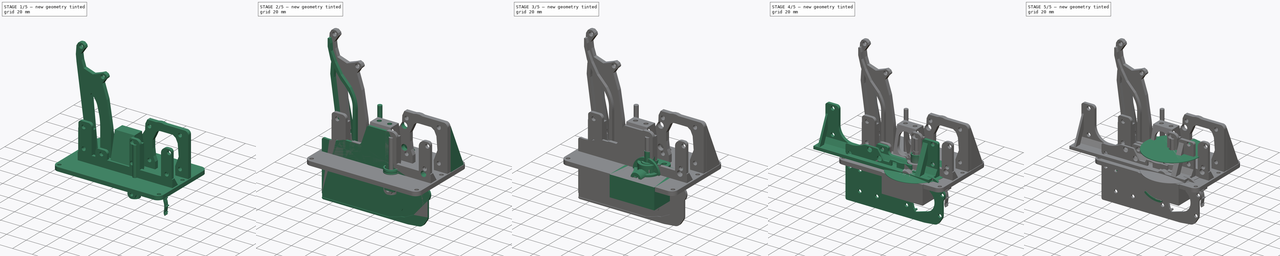
[diagram: build sequence overview — one tinted view per stage of 5, left to right]
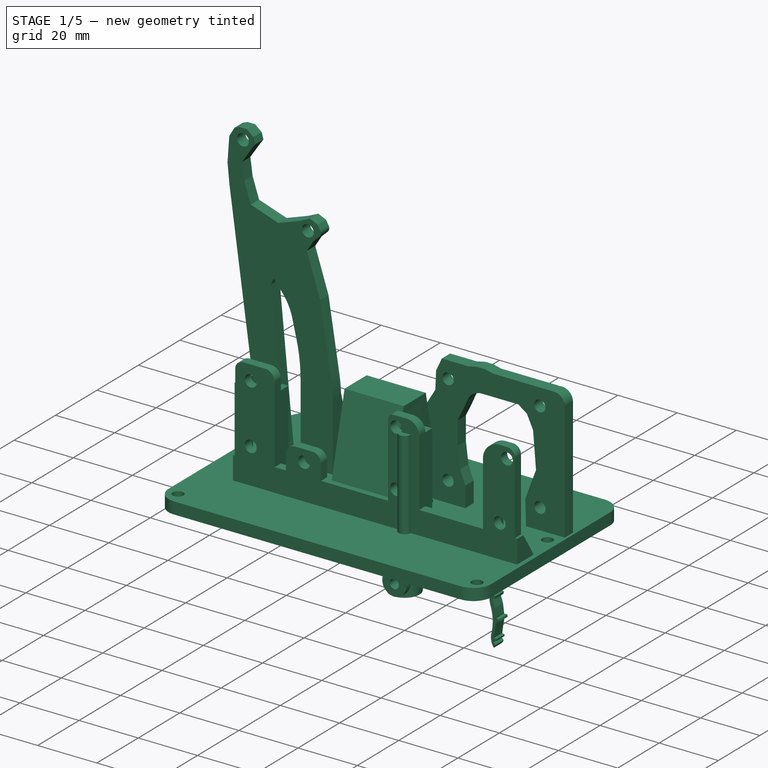
[diagram: stage 1 of 5 — iso view after this stage's code; geometry added in this stage tinted green]
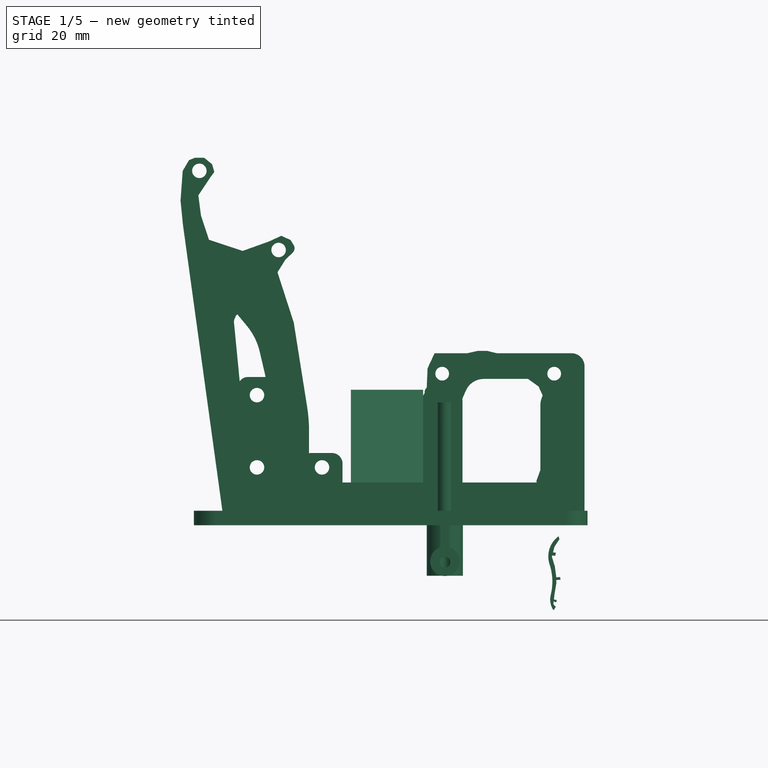
[diagram: stage 1 of 5 — front view after this stage's code; geometry added in this stage tinted green]
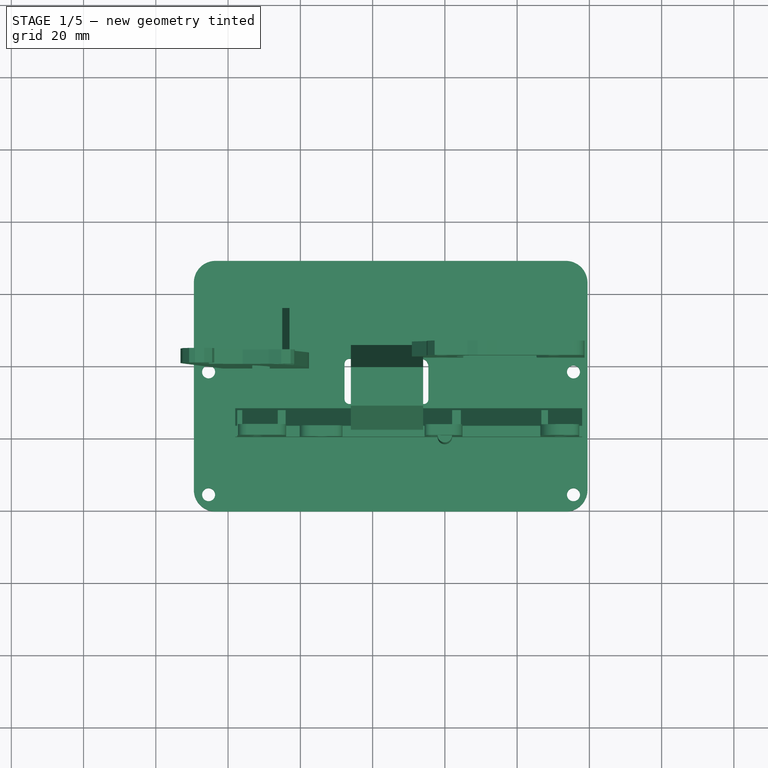
[diagram: stage 1 of 5 — top view after this stage's code; geometry added in this stage tinted green]
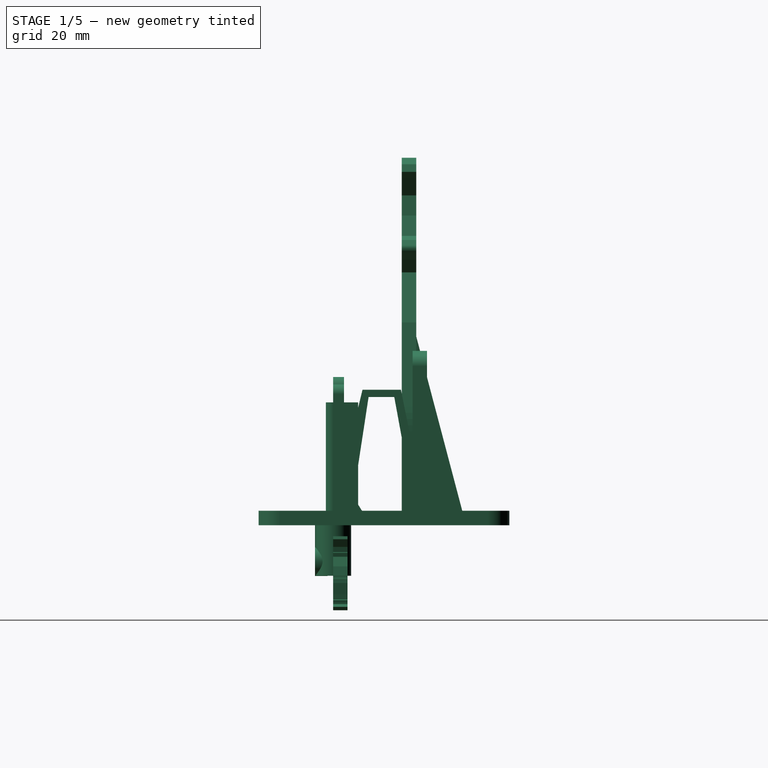
[diagram: stage 1 of 5 — right view after this stage's code; geometry added in this stage tinted green]
FCSTD DOCUMENT  (FreeCAD 0.18.4R)
Label: smd-feeder-pinch-v2
License: All rights reserved
LicenseURL: http://en.wikipedia.org/wiki/All_rights_reserved
objects: Sketcher::SketchObject×71, PartDesign::Pad×43, PartDesign::Body×20, PartDesign::Pocket×19, PartDesign::Revolution×7, Part::Part2DObjectPython×3, PartDesign::FeatureBase×2, App::DocumentObjectGroup×2, Part::Feature×1, PartDesign::PolarPattern×1, Part::Mirroring×1, Part::Cut×1, PartDesign::LinearPattern×1, PartDesign::AdditiveCylinder×1
note: 241 computed .brp shape members not serialized (recipe doc carries the construction recipe); baked Part::Feature solids carry a one-line shape summary decoded from their .brp

FEATURE [PartDesign::Body] Body009  label="SPG20-1023-2"
  BaseFeature = -> Body008
  Group = -> [Clone001]
  Origin = -> Origin009
  Placement = pos=(0.0541197,8,13.785) rot=(0,1,0;0.785398rad)
  Tip = -> Clone001
FEATURE [Sketcher::SketchObject] Sketch033
  MapMode = 5
  Placement = pos=(0,0,0) rot=(1,0,0;1.5708rad)
  Support = -> [XZ_Plane005]
  sketch-geometry (11):
    g0: LineSegment StartX=5 StartY=-24 StartZ=0 EndX=1.65 EndY=-24 EndZ=0
    g1: LineSegment StartX=0 StartY=0 StartZ=0 EndX=0 EndY=3 EndZ=0
    g2: LineSegment StartX=5 StartY=4 StartZ=0 EndX=28 EndY=0.4 EndZ=0
    g3: LineSegment StartX=28 StartY=0.4 StartZ=0 EndX=28 EndY=0 EndZ=0
    g4: LineSegment StartX=5 StartY=4 StartZ=0 EndX=5 EndY=15.8207 EndZ=0
    g5: LineSegment StartX=1.7 StartY=14.0812 StartZ=0 EndX=1.7 EndY=0 EndZ=0
    g6: LineSegment StartX=5 StartY=15.8207 StartZ=0 EndX=3.99198 EndY=15.8207 EndZ=0
    g7: LineSegment StartX=3.99198 StartY=15.8207 StartZ=0 EndX=3.99198 EndY=14.0812 EndZ=0
    g8: LineSegment StartX=3.99198 StartY=14.0812 StartZ=0 EndX=1.7 EndY=14.0812 EndZ=0
    g9: LineSegment StartX=5 StartY=0 StartZ=0 EndX=28 EndY=0 EndZ=0
    g10: LineSegment StartX=5 StartY=0 StartZ=0 EndX=1.7 EndY=0 EndZ=0
  constraints (27):
    c: PointOnObject(g9,g-1)
    c: Horizontal(g0)
    c: DistanceX(g-1,g9) = 5
    c: Vertical(g1)
    c: Coincident(g2,g3)
    c: Vertical(g3)
    c: DistanceY(g3,g3) = 0.4
    c: Coincident(g2,g4)
    c: Vertical(g4)
    c: Vertical(g5)
    c: DistanceX(g-1,g5) = 1.7
    c: DistanceX(g-1,g2) = 5
    c: DistanceY(g1,g1) = 3
    c: DistanceX(g-1,g3) = 28
    c: DistanceY(g-1,g2) = 4
    c: Coincident(g4,g6)
    c: Horizontal(g6)
    c: Coincident(g6,g7)
    c: Vertical(g7)
    c: Coincident(g7,g8)
    c: Horizontal(g8)
    c: Coincident(g5,g8)
    c: PointOnObject(g9,g-1)
    c: Coincident(g9,g3)
    c: Coincident(g10,g9)
    c: Horizontal(g10)
    c: Coincident(g10,g5)
FEATURE [Sketcher::SketchObject] Sketch034
  MapMode = 5
  Support = -> [XY_Plane010]
  sketch-geometry (24):
    g0: LineSegment StartX=-63.4721 StartY=48.7852 StartZ=0 EndX=33.4761 EndY=48.7852 EndZ=0
    g1: LineSegment StartX=39.4761 StartY=42.7852 StartZ=0 EndX=39.4761 EndY=-14.614 EndZ=0
    g2: LineSegment StartX=33.4761 StartY=-20.614 StartZ=0 EndX=-63.4721 EndY=-20.614 EndZ=0
    g3: LineSegment StartX=-69.4721 StartY=-14.614 StartZ=0 EndX=-69.4721 EndY=42.7852 EndZ=0
    g4: LineSegment [constr] StartX=35.6024 StartY=18.0604 StartZ=0 EndX=-65.3976 EndY=18.0604 EndZ=0
    g5: LineSegment [constr] StartX=-65.3976 StartY=18.0604 StartZ=0 EndX=-65.3976 EndY=-15.9396 EndZ=0
    g6: LineSegment [constr] StartX=-65.3976 StartY=-15.9396 StartZ=0 EndX=35.6024 EndY=-15.9396 EndZ=0
    g7: LineSegment [constr] StartX=35.6024 StartY=-15.9396 StartZ=0 EndX=35.6024 EndY=18.0604 EndZ=0
    g8: ArcOfCircle CenterX=-63.4721 CenterY=42.7852 CenterZ=0 NormalX=0 NormalY=0 NormalZ=1 AngleXU=0 Radius=6 StartAngle=1.5708 EndAngle=3.14159
    g9: ArcOfCircle CenterX=33.4761 CenterY=42.7852 CenterZ=0 NormalX=0 NormalY=0 NormalZ=1 AngleXU=0 Radius=6 StartAngle=4e-16 EndAngle=1.5708
    g10: ArcOfCircle CenterX=33.4761 CenterY=-14.614 CenterZ=0 NormalX=0 NormalY=0 NormalZ=1 AngleXU=0 Radius=6 StartAngle=4.71239 EndAngle=6.28319
    g11: ArcOfCircle CenterX=-63.4721 CenterY=-14.614 CenterZ=0 NormalX=0 NormalY=0 NormalZ=1 AngleXU=0 Radius=6 StartAngle=3.14159 EndAngle=4.71239
    g12: Circle CenterX=35.6024 CenterY=18.0604 CenterZ=0 NormalX=0 NormalY=0 NormalZ=1 AngleXU=0 Radius=1.8
    g13: Circle CenterX=35.6024 CenterY=-15.9396 CenterZ=0 NormalX=0 NormalY=0 NormalZ=1 AngleXU=0 Radius=1.8
    g14: Circle CenterX=-65.3976 CenterY=-15.9396 CenterZ=0 NormalX=0 NormalY=0 NormalZ=1 AngleXU=0 Radius=1.8
    g15: Circle CenterX=-65.3976 CenterY=18.0604 CenterZ=0 NormalX=0 NormalY=0 NormalZ=1 AngleXU=0 Radius=1.8
    g16: LineSegment StartX=-26.4631 StartY=21.6854 StartZ=0 EndX=-6.64765 EndY=21.6854 EndZ=0
    g17: LineSegment StartX=-4.57506 StartY=19.6128 StartZ=0 EndX=-4.57506 EndY=10.3781 EndZ=0
    g18: LineSegment StartX=-5.79326 StartY=9.15991 StartZ=0 EndX=-26.4006 EndY=9.15991 EndZ=0
    g19: LineSegment StartX=-27.7658 StartY=10.5251 StartZ=0 EndX=-27.7658 EndY=20.3827 EndZ=0
    g20: ArcOfCircle CenterX=-26.4631 CenterY=20.3827 CenterZ=0 NormalX=0 NormalY=0 NormalZ=1 AngleXU=0 Radius=1.30266 StartAngle=1.5708 EndAngle=3.14159
    g21: ArcOfCircle CenterX=-6.64765 CenterY=19.6128 CenterZ=0 NormalX=0 NormalY=0 NormalZ=1 AngleXU=0 Radius=2.07259 StartAngle=0 EndAngle=1.5708
    g22: ArcOfCircle CenterX=-5.79326 CenterY=10.3781 CenterZ=0 NormalX=0 NormalY=0 NormalZ=1 AngleXU=0 Radius=1.2182 StartAngle=4.71239 EndAngle=6.28319
    g23: ArcOfCircle CenterX=-26.4006 CenterY=10.5251 CenterZ=0 NormalX=0 NormalY=0 NormalZ=1 AngleXU=0 Radius=1.36516 StartAngle=3.14159 EndAngle=4.71239
  constraints (46):
    c: Horizontal(g0)
    c: Horizontal(g2)
    c: Vertical(g1)
    c: Vertical(g3)
    c: Coincident(g4,g5)
    c: Coincident(g5,g6)
    c: Coincident(g6,g7)
    c: Coincident(g7,g4)
    c: Horizontal(g4)
    c: Horizontal(g6)
    c: Vertical(g5)
    c: Vertical(g7)
    c: DistanceY(g7,g7) = 34
    c: DistanceX(g4,g4) = 101
    c: Tangent(g3,g8) = 1.5708
    c: Tangent(g0,g8) = 1.5708
    c: Tangent(g0,g9) = 1.5708
    c: Tangent(g1,g9) = 1.5708
    c: Tangent(g1,g10) = 1.5708
    c: Tangent(g2,g10) = 1.5708
    c: Tangent(g2,g11) = 1.5708
    c: Tangent(g3,g11) = 1.5708
    c: Radius(g9) = 6
    c: Equal(g9,g10)
    c: Equal(g10,g11)
    c: Equal(g11,g8)
    c: Coincident(g12,g4)
    c: Coincident(g13,g6)
    c: Coincident(g14,g5)
    c: Coincident(g15,g4)
    c: Diameter(g15) = 3.6
    c: Equal(g15,g12)
    c: Equal(g12,g13)
    c: Equal(g13,g14)
    c: Horizontal(g16)
    c: Horizontal(g18)
    c: Vertical(g17)
    c: Vertical(g19)
    c: Tangent(g19,g20) = 1.5708
    c: Tangent(g16,g20) = 1.5708
    c: Tangent(g16,g21) = 1.5708
    c: Tangent(g17,g21) = 1.5708
    c: Tangent(g17,g22) = 1.5708
    c: Tangent(g18,g22) = 1.5708
    c: Tangent(g18,g23) = 1.5708
    c: Tangent(g19,g23) = 1.5708
FEATURE [PartDesign::Pad] Pad021
  Length = 4
  Length2 = 100
  Profile = -> Sketch034
  Reversed = true
  Type = 0
FEATURE [Sketcher::SketchObject] Sketch035
  MapMode = 5
  Placement = pos=(0,0,0) rot=(1,0,0;1.5708rad)
  Support = -> [XZ_Plane010]
  sketch-geometry (31):
    g0: LineSegment StartX=-54.5522 StartY=37.0162 StartZ=0 EndX=-47.1765 EndY=37.0162 EndZ=0
    g1: LineSegment StartX=-43.939 StartY=33.7788 StartZ=0 EndX=-43.939 EndY=0 EndZ=0
    g2: LineSegment StartX=-43.939 StartY=0 StartZ=0 EndX=-57.2624 EndY=0 EndZ=0
    g3: LineSegment StartX=-57.2624 StartY=0 StartZ=0 EndX=-57.2624 EndY=34.306 EndZ=0
    g4: LineSegment StartX=-36.9851 StartY=15.9884 StartZ=0 EndX=-31.2667 EndY=15.9884 EndZ=0
    g5: LineSegment StartX=-28.3159 StartY=13.0376 StartZ=0 EndX=-28.3159 EndY=0 EndZ=0
    g6: LineSegment StartX=-28.3159 StartY=0 StartZ=0 EndX=-40.1541 EndY=0 EndZ=0
    g7: LineSegment StartX=-40.1541 StartY=0 StartZ=0 EndX=-40.1541 EndY=12.8194 EndZ=0
    g8: LineSegment StartX=-5.60826 StartY=0 StartZ=0 EndX=4.87349 EndY=0 EndZ=0
    g9: LineSegment StartX=4.87349 StartY=0 StartZ=0 EndX=4.87349 EndY=30.4454 EndZ=0
    g10: LineSegment StartX=0.747522 StartY=34.5714 StartZ=0 EndX=-3.75825 EndY=34.5714 EndZ=0
    g11: LineSegment StartX=-5.60826 StartY=32.7214 StartZ=0 EndX=-5.60826 EndY=0 EndZ=0
    g12: Circle CenterX=-2.88456 CenterY=31 CenterZ=0 NormalX=0 NormalY=0 NormalZ=1 AngleXU=0 Radius=2
    g13: Circle CenterX=-2.88456 CenterY=12 CenterZ=0 NormalX=0 NormalY=0 NormalZ=1 AngleXU=0 Radius=2
    g14: Circle CenterX=-34 CenterY=12 CenterZ=0 NormalX=0 NormalY=0 NormalZ=1 AngleXU=0 Radius=2
    g15: Circle CenterX=-52 CenterY=32 CenterZ=0 NormalX=0 NormalY=0 NormalZ=1 AngleXU=0 Radius=2
    g16: Circle CenterX=-52 CenterY=12 CenterZ=0 NormalX=0 NormalY=0 NormalZ=1 AngleXU=0 Radius=2
    g17: ArcOfCircle CenterX=-54.5522 CenterY=34.306 CenterZ=0 NormalX=0 NormalY=0 NormalZ=1 AngleXU=0 Radius=2.71022 StartAngle=1.5708 EndAngle=3.14159
    g18: ArcOfCircle CenterX=-47.1765 CenterY=33.7788 CenterZ=0 NormalX=0 NormalY=0 NormalZ=1 AngleXU=0 Radius=3.23743 StartAngle=0 EndAngle=1.5708
    g19: ArcOfCircle CenterX=-36.9851 CenterY=12.8194 CenterZ=0 NormalX=0 NormalY=0 NormalZ=1 AngleXU=0 Radius=3.16902 StartAngle=1.5708 EndAngle=3.14159
    g20: ArcOfCircle CenterX=-31.2667 CenterY=13.0376 CenterZ=0 NormalX=0 NormalY=0 NormalZ=1 AngleXU=0 Radius=2.95081 StartAngle=0 EndAngle=1.5708
    g21: ArcOfCircle CenterX=-3.75825 CenterY=32.7214 CenterZ=0 NormalX=0 NormalY=0 NormalZ=1 AngleXU=0 Radius=1.85001 StartAngle=1.5708 EndAngle=3.14159
    g22: ArcOfCircle CenterX=0.747522 CenterY=30.4454 CenterZ=0 NormalX=0 NormalY=0 NormalZ=1 AngleXU=0 Radius=4.12597 StartAngle=0 EndAngle=1.5708
    g23: LineSegment StartX=26.4513 StartY=0 StartZ=0 EndX=37.2008 EndY=0 EndZ=0
    g24: LineSegment StartX=37.2008 StartY=0 StartZ=0 EndX=37.2008 EndY=32.3414 EndZ=0
    g25: LineSegment StartX=34.5596 StartY=34.9825 StartZ=0 EndX=32.1868 EndY=34.9825 EndZ=0
    g26: LineSegment StartX=26.4513 StartY=29.247 StartZ=0 EndX=26.4513 EndY=0 EndZ=0
    g27: Circle CenterX=34.5596 CenterY=31.3505 CenterZ=0 NormalX=0 NormalY=0 NormalZ=1 AngleXU=0 Radius=2
    g28: Circle CenterX=32.1261 CenterY=11.1368 CenterZ=0 NormalX=0 NormalY=0 NormalZ=1 AngleXU=0 Radius=2
    g29: ArcOfCircle CenterX=34.5596 CenterY=32.3414 CenterZ=0 NormalX=0 NormalY=0 NormalZ=1 AngleXU=0 Radius=2.64115 StartAngle=0 EndAngle=1.5708
    g30: ArcOfCircle CenterX=32.1868 CenterY=29.247 CenterZ=0 NormalX=0 NormalY=0 NormalZ=1 AngleXU=0 Radius=5.73549 StartAngle=1.5708 EndAngle=3.14159
  constraints (60):
    c: Coincident(g1,g2)
    c: Coincident(g2,g3)
    c: Horizontal(g0)
    c: Horizontal(g2)
    c: Vertical(g1)
    c: Vertical(g3)
    c: PointOnObject(g1,g-1)
    c: Coincident(g5,g6)
    c: Coincident(g6,g7)
    c: Horizontal(g4)
    c: Horizontal(g6)
    c: Vertical(g5)
    c: Vertical(g7)
    c: PointOnObject(g5,g-1)
    c: Coincident(g8,g9)
    c: Coincident(g11,g8)
    c: Horizontal(g8)
    c: Horizontal(g10)
    c: Vertical(g9)
    c: Vertical(g11)
    c: PointOnObject(g8,g-1)
    c: DistanceX(g13,g12) = 0
    c: DistanceX(g14,g-1) = 34
    c: DistanceX(g16,g-1) = 52
    c: DistanceX(g16,g15) = 0
    c: DistanceY(g-1,g13) = 12
    c: DistanceY(g-1,g14) = 12
    c: DistanceY(g-1,g16) = 12
    c: DistanceY(g13,g12) = 19
    c: DistanceY(g16,g15) = 20
    c: Diameter(g12) = 4
    c: Equal(g12,g13)
    c: Equal(g13,g14)
    c: Equal(g14,g16)
    c: Equal(g16,g15)
    c: Tangent(g3,g17) = 1.5708
    c: Tangent(g0,g17) = 1.5708
    c: Tangent(g0,g18) = 1.5708
    c: Tangent(g1,g18) = 1.5708
    c: Tangent(g7,g19) = 1.5708
    c: Tangent(g4,g19) = 1.5708
    c: Tangent(g4,g20) = 1.5708
    c: Tangent(g5,g20) = 1.5708
    c: Tangent(g11,g21) = -1.5708
    c: Tangent(g10,g21) = -1.5708
    c: Tangent(g10,g22) = -1.5708
    c: Tangent(g9,g22) = -1.5708
    c: Coincident(g23,g24)
    c: Coincident(g26,g23)
    c: Horizontal(g23)
    c: Horizontal(g25)
    c: Vertical(g24)
    c: Vertical(g26)
    c: PointOnObject(g23,g-1)
    c: Equal(g12,g27)
    c: Equal(g27,g28)
    c: Tangent(g25,g29) = -1.5708
    c: Tangent(g24,g29) = -1.5708
    c: Tangent(g25,g30) = -1.5708
    c: Tangent(g26,g30) = -1.5708
FEATURE [PartDesign::Pad] Pad022
  BaseFeature = -> Pad021
  Length = 3
  Length2 = 100
  Profile = -> Sketch035
  Reversed = true
  Type = 0
FEATURE [Sketcher::SketchObject] Sketch247
  AttachmentOffset = pos=(0,0,-19) rot=(0,0,1;0rad)
  MapMode = 5
  Placement = pos=(0,19,4.2e-15) rot=(1,0,0;1.5708rad)
  Support = -> [XZ_Plane010]
  sketch-geometry (28):
    g0: LineSegment StartX=-72.3908 StartY=90.6391 StartZ=0 EndX=-70.7736 EndY=90.6391 EndZ=0
    g1: LineSegment StartX=-70.7736 StartY=90.6391 StartZ=0 EndX=-69.6987 EndY=86.6042 EndZ=0
    g2: LineSegment StartX=-69.6987 StartY=86.6042 StartZ=0 EndX=-69.1921 EndY=80.0667 EndZ=0
    g3: LineSegment StartX=-69.1921 StartY=80.0667 StartZ=0 EndX=-65.4069 EndY=71.5182 EndZ=0
    g4: LineSegment StartX=-65.4069 StartY=71.5182 StartZ=0 EndX=-62.5768 EndY=66.734 EndZ=0
    g5: LineSegment StartX=-62.5768 StartY=66.734 StartZ=0 EndX=-59.8435 EndY=61.9664 EndZ=0
    g6: LineSegment StartX=-59.8435 StartY=61.9664 StartZ=0 EndX=-51.3531 EndY=52.991 EndZ=0
    g7: LineSegment StartX=-51.3531 StartY=52.991 StartZ=0 EndX=-49.5371 EndY=49.8755 EndZ=0
    g8: LineSegment StartX=-45.3889 StartY=34.4535 StartZ=0 EndX=-45.465 EndY=-0.224606 EndZ=0
    g9: LineSegment StartX=-45.465 StartY=-0.224606 StartZ=0 EndX=-48.3449 EndY=-0.224606 EndZ=0
    g10: LineSegment StartX=-48.3449 StartY=-0.224606 StartZ=0 EndX=-48.3449 EndY=37.008 EndZ=0
    g11: LineSegment StartX=-51.1445 StartY=47.0651 StartZ=0 EndX=-52.8405 EndY=49.8756 EndZ=0
    g12: LineSegment StartX=-52.8405 StartY=49.8756 StartZ=0 EndX=-55.9347 EndY=53.6882 EndZ=0
    g13: LineSegment StartX=-55.9347 StartY=53.6882 StartZ=0 EndX=-59.62 EndY=57.1743 EndZ=0
    g14: LineSegment StartX=-59.62 StartY=57.1743 StartZ=0 EndX=-63.9994 EndY=63.1223 EndZ=0
    g15: LineSegment StartX=-63.9994 StartY=63.1223 StartZ=0 EndX=-65.9401 EndY=66.4059 EndZ=0
    g16: LineSegment StartX=-69.6099 StartY=72.6149 StartZ=0 EndX=-72.3941 EndY=83.4035 EndZ=0
    g17: LineSegment StartX=-72.3941 StartY=83.4035 StartZ=0 EndX=-72.3908 EndY=90.6391 EndZ=0
    g18: LineSegment StartX=-61.3836 StartY=0 StartZ=0 EndX=-69.8705 EndY=60.3558 EndZ=0
    g19: LineSegment StartX=-69.8705 StartY=60.3558 StartZ=0 EndX=-69.1956 EndY=69.8361 EndZ=0
    g20: LineSegment StartX=-69.1956 StartY=69.8361 StartZ=0 EndX=-68.7294 EndY=71.1251 EndZ=0
    g21: LineSegment StartX=-65.9401 StartY=66.4059 StartZ=0 EndX=-66.4359 EndY=60.3178 EndZ=0
    g22: LineSegment StartX=-66.4359 StartY=60.3178 StartZ=0 EndX=-66.4359 EndY=58.1776 EndZ=0
    g23: LineSegment StartX=-66.4359 StartY=58.1776 StartZ=0 EndX=-58.8164 EndY=0 EndZ=0
    g24: LineSegment StartX=-58.8164 StartY=0 StartZ=0 EndX=-61.3836 EndY=0 EndZ=0
    g25: LineSegment StartX=-68.7294 StartY=71.1251 StartZ=0 EndX=-69.6099 EndY=72.6149 EndZ=0
    g26: ArcOfCircle CenterX=-67.8092 CenterY=37.008 CenterZ=0 NormalX=0 NormalY=0 NormalZ=1 AngleXU=0 Radius=19.4643 StartAngle=1e-16 EndAngle=0.54299
    g27: ArcOfCircle CenterX=-75.8814 CenterY=34.5204 CenterZ=0 NormalX=0 NormalY=0 NormalZ=1 AngleXU=0 Radius=30.4926 StartAngle=6.28099 EndAngle=6.81091
  constraints (35):
    c: Horizontal(g0)
    c: Coincident(g0,g1)
    c: Coincident(g1,g2)
    c: Coincident(g2,g3)
    c: Coincident(g3,g4)
    c: Coincident(g4,g5)
    c: Coincident(g5,g6)
    c: Coincident(g6,g7)
    c: Coincident(g8,g9)
    c: Horizontal(g9)
    c: Coincident(g9,g10)
    c: Vertical(g10)
    c: Coincident(g11,g12)
    c: Coincident(g12,g13)
    c: Coincident(g13,g14)
    c: Coincident(g14,g15)
    c: Coincident(g25,g16)
    c: Coincident(g16,g17)
    c: Coincident(g17,g0)
    c: PointOnObject(g18,g-1)
    c: Coincident(g18,g19)
    c: Coincident(g19,g20)
    c: Coincident(g21,g22)
    c: Vertical(g22)
    c: Coincident(g22,g23)
    c: PointOnObject(g23,g-1)
    c: Coincident(g23,g24)
    c: Coincident(g24,g18)
    c: Coincident(g15,g21)
    c: Coincident(g25,g20)
    c: Tangent(g15,g25)
    c: Tangent(g11,g26) = -1.5708
    c: Tangent(g10,g26) = -1.5708
    c: Tangent(g7,g27) = 1.5708
    c: Tangent(g8,g27) = 1.5708
FEATURE [Sketcher::SketchObject] Sketch248
  AttachmentOffset = pos=(0,0,39) rot=(0,0,1;0rad)
  MapMode = 5
  Placement = pos=(39,-8.7e-15,8.7e-15) rot=(0.57735,0.57735,0.57735;2.0944rad)
  Support = -> [YZ_Plane010]
  sketch-geometry (3):
    g0: LineSegment StartX=25.7683 StartY=40.5311 StartZ=0 EndX=43.9406 EndY=0 EndZ=0
    g1: LineSegment StartX=43.9406 StartY=0 StartZ=0 EndX=25.7683 EndY=0 EndZ=0
    g2: LineSegment StartX=25.7683 StartY=0 StartZ=0 EndX=25.7683 EndY=40.5311 EndZ=0
  constraints (6):
    c: PointOnObject(g0,g-1)
    c: Coincident(g0,g1)
    c: PointOnObject(g1,g-1)
    c: Coincident(g1,g2)
    c: Coincident(g2,g0)
    c: Vertical(g2)
FEATURE [Sketcher::SketchObject] Sketch249
  AttachmentOffset = pos=(0,0,-9) rot=(0,0,1;0rad)
  MapMode = 5
  Placement = pos=(-9,2e-15,-2e-15) rot=(0.57735,0.57735,0.57735;2.0944rad)
  Support = -> [YZ_Plane010]
  sketch-geometry (3):
    g0: LineSegment StartX=24.9508 StartY=24.3736 StartZ=0 EndX=24.9508 EndY=-0.062191 EndZ=0
    g1: LineSegment StartX=24.9508 StartY=-0.062191 StartZ=0 EndX=43.6448 EndY=-0.062191 EndZ=0
    g2: LineSegment StartX=43.6448 StartY=-0.062191 StartZ=0 EndX=24.9508 EndY=24.3736 EndZ=0
  constraints (5):
    c: Vertical(g0)
    c: Coincident(g0,g1)
    c: Horizontal(g1)
    c: Coincident(g1,g2)
    c: Coincident(g2,g0)
FEATURE [Sketcher::SketchObject] Sketch250
  MapMode = 5
  Support = -> [XY_Plane010]
  sketch-geometry (17):
    g0: LineSegment [constr] StartX=-77.2649 StartY=6.92614 StartZ=0 EndX=44.5471 EndY=6.92614 EndZ=0
    g1: LineSegment StartX=-46.2683 StartY=0 StartZ=0 EndX=-44.0783 EndY=0 EndZ=0
    g2: LineSegment StartX=-44.0783 StartY=0 StartZ=0 EndX=-44.0783 EndY=6.92614 EndZ=0
    g3: LineSegment StartX=-44.0783 StartY=6.92614 StartZ=0 EndX=-46.2683 EndY=6.92614 EndZ=0
    g4: LineSegment StartX=-46.2683 StartY=6.92614 StartZ=0 EndX=-46.2683 EndY=0 EndZ=0
    g5: LineSegment StartX=-57.4633 StartY=0 StartZ=0 EndX=-56.0701 EndY=0 EndZ=0
    g6: LineSegment StartX=-56.0701 StartY=0 StartZ=0 EndX=-56.0701 EndY=6.92614 EndZ=0
    g7: LineSegment StartX=-56.0701 StartY=6.92614 StartZ=0 EndX=-57.4633 EndY=6.92614 EndZ=0
    g8: LineSegment StartX=-57.4633 StartY=6.92614 StartZ=0 EndX=-57.4633 EndY=0 EndZ=0
    g9: LineSegment StartX=26.7244 StartY=0 StartZ=0 EndX=28.5599 EndY=0 EndZ=0
    g10: LineSegment StartX=28.5599 StartY=0 StartZ=0 EndX=28.5599 EndY=6.92614 EndZ=0
    g11: LineSegment StartX=28.5599 StartY=6.92614 StartZ=0 EndX=26.7244 EndY=6.92614 EndZ=0
    g12: LineSegment StartX=26.7244 StartY=6.92614 StartZ=0 EndX=26.7244 EndY=0 EndZ=0
    g13: LineSegment StartX=4.42525 StartY=0 StartZ=0 EndX=2.00856 EndY=0 EndZ=0
    g14: LineSegment StartX=2.00856 StartY=0 StartZ=0 EndX=2.00856 EndY=6.92614 EndZ=0
    g15: LineSegment StartX=2.00856 StartY=6.92614 StartZ=0 EndX=4.42525 EndY=6.92614 EndZ=0
    g16: LineSegment StartX=4.42525 StartY=6.92614 StartZ=0 EndX=4.42525 EndY=0 EndZ=0
  constraints (41):
    c: Horizontal(g0)
    c: Coincident(g1,g2)
    c: Coincident(g2,g3)
    c: Coincident(g3,g4)
    c: Coincident(g4,g1)
    c: Horizontal(g1)
    c: Horizontal(g3)
    c: Vertical(g2)
    c: Vertical(g4)
    c: PointOnObject(g1,g-1)
    c: PointOnObject(g2,g0)
    c: Coincident(g5,g6)
    c: Coincident(g6,g7)
    c: Coincident(g7,g8)
    c: Coincident(g8,g5)
    c: Horizontal(g5)
    c: Horizontal(g7)
    c: Vertical(g6)
    c: Vertical(g8)
    c: PointOnObject(g5,g-1)
    c: PointOnObject(g6,g0)
    c: Coincident(g9,g10)
    c: Coincident(g10,g11)
    c: Coincident(g11,g12)
    c: Coincident(g12,g9)
    c: Horizontal(g9)
    c: Horizontal(g11)
    c: Vertical(g10)
    c: Vertical(g12)
    c: PointOnObject(g9,g-1)
    c: PointOnObject(g10,g0)
    c: Coincident(g13,g14)
    c: Coincident(g14,g15)
    c: Coincident(g15,g16)
    c: Coincident(g16,g13)
    c: Horizontal(g13)
    c: Horizontal(g15)
    c: Vertical(g14)
    c: Vertical(g16)
    c: PointOnObject(g13,g-1)
    c: PointOnObject(g14,g0)
FEATURE [PartDesign::Pad] Pad055
  BaseFeature = -> Pad022
  Length = 30
  Length2 = 100
  Profile = -> Sketch250
  Type = 0
FEATURE [PartDesign::Pad] Pad023
  BaseFeature = -> Pad055
  Length = 4
  Length2 = 100
  Profile = -> Sketch037
  Type = 0
FEATURE [PartDesign::Pad] Pad051
  BaseFeature = -> Pad023
  Length = 2
  Length2 = 100
  Profile = -> Sketch241
  Type = 0
FEATURE [PartDesign::Pad] Pad024
  BaseFeature = -> Pad051
  Length = 4
  Length2 = 100
  Profile = -> Sketch038
  Type = 0
FEATURE [PartDesign::Pad] Pad025
  BaseFeature = -> Pad024
  Length = 96
  Length2 = 100
  Profile = -> Sketch039
  Reversed = true
  Type = 0
FEATURE [PartDesign::Pad] Pad043
  BaseFeature = -> Pad025
  Length = 20
  Length2 = 100
  Profile = -> Sketch067
  Reversed = true
  Type = 0
FEATURE [PartDesign::Body] Body010  label="BaseBoard"
  Group = -> [Sketch034,Pad021,Sketch035,Pad022,Sketch037,Sketch250,Pad055,Pad023,Sketch038,Sketch241,Pad051,Pad024,Sketch039,Pad025,Pad043,Pocket016,Sketch043,Pocket005,Sketch067,Sketch068,Pocket015,Sketch069,Sketch244,Pocket020,Sketch245,Pocket021,Sketch247,Pad052,Sketch248,Pad053,Sketch249,Pad054,Sketch251,Pad056,LinearPattern]
  Origin = -> Origin010
  Placement = pos=(0,2,-42) rot=(0,0,1;0rad)
  Tip = -> LinearPattern
FEATURE [Sketcher::SketchObject] Sketch254
  AttachmentOffset = pos=(0,0,-8) rot=(0,0,1;0rad)
  MapMode = 5
  Placement = pos=(0,0,-8) rot=(0,0,1;0rad)
  Support = -> [XY_Plane018]
  sketch-geometry (1):
    g0: Circle CenterX=0 CenterY=0 CenterZ=0 NormalX=0 NormalY=0 NormalZ=1 AngleXU=0 Radius=1.65
  constraints (2):
    c: Coincident(g0,g-1)
    c: Diameter(g0) = 3.3
FEATURE [Sketcher::SketchObject] Sketch255
  MapMode = 5
  Placement = pos=(0,0,0) rot=(1,0,0;1.5708rad)
  Support = -> [XZ_Plane018]
  sketch-geometry (6):
    g0: LineSegment StartX=1.65 StartY=-18 StartZ=0 EndX=1.65 EndY=-8 EndZ=0
    g1: LineSegment StartX=5 StartY=0 StartZ=0 EndX=5 EndY=-18 EndZ=0
    g2: LineSegment StartX=5 StartY=-18 StartZ=0 EndX=1.65 EndY=-18 EndZ=0
    g3: LineSegment StartX=1.65 StartY=-8 StartZ=0 EndX=1.45 EndY=-8 EndZ=0
    g4: LineSegment StartX=1.45 StartY=-8 StartZ=0 EndX=1.45 EndY=0 EndZ=0
    g5: LineSegment StartX=1.45 StartY=0 StartZ=0 EndX=5 EndY=0 EndZ=0
  constraints (18):
    c: Vertical(g0)
    c: PointOnObject(g1,g-1)
    c: Vertical(g1)
    c: Coincident(g1,g2)
    c: Coincident(g2,g0)
    c: Horizontal(g2)
    c: DistanceX(g-1,g0) = 1.65
    c: DistanceX(g-1,g1) = 5
    c: DistanceY(g1,g-1) = 18
    c: Coincident(g0,g3)
    c: Horizontal(g3)
    c: Coincident(g3,g4)
    c: PointOnObject(g4,g-1)
    c: Vertical(g4)
    c: Coincident(g4,g5)
    c: Coincident(g5,g1)
    c: DistanceX(g-1,g4) = 1.45
    c: DistanceY(g4,g4) = 8
FEATURE [Sketcher::SketchObject] Sketch256
  MapMode = 5
  Placement = pos=(0,0,0) rot=(1,0,0;1.5708rad)
  Support = -> [XZ_Plane018]
  sketch-geometry (1):
    g0: Circle CenterX=0 CenterY=-14.2326 CenterZ=0 NormalX=0 NormalY=0 NormalZ=1 AngleXU=0 Radius=1.525
  constraints (2):
    c: PointOnObject(g0,g-2)
    c: Diameter(g0) = 3.05
FEATURE [PartDesign::Revolution] Revolution006
  Angle = 360
  Axis = (0,-2e-16,1)
  Base = (0,0,0)
  Placement = pos=(0,0,0) rot=(1,0,0;1.5708rad)
  Profile = -> Sketch255
  ReferenceAxis = -> Sketch255 [V_Axis]
  Reversed = true
FEATURE [Sketcher::SketchObject] Sketch257
  MapMode = 5
  Placement = pos=(0,0,0) rot=(1,0,0;1.5708rad)
  Support = -> [XZ_Plane018]
  sketch-geometry (4):
    g0: ArcOfCircle CenterX=0 CenterY=-14 CenterZ=0 NormalX=0 NormalY=0 NormalZ=1 AngleXU=0 Radius=4.0618 StartAngle=1.88503 EndAngle=7.53975
    g1: LineSegment StartX=1.25546 StartY=-10.1371 StartZ=0 EndX=1.25546 EndY=0 EndZ=0
    g2: LineSegment StartX=1.25546 StartY=0 StartZ=0 EndX=-1.25546 EndY=0 EndZ=0
    g3: LineSegment StartX=-1.25546 StartY=0 StartZ=0 EndX=-1.25546 EndY=-10.1371 EndZ=0
  constraints (10):
    c: PointOnObject(g0,g-2)
    c: Coincident(g1,g2)
    c: Coincident(g2,g3)
    c: Vertical(g1)
    c: Vertical(g3)
    c: PointOnObject(g1,g-1)
    c: Symmetric(g2,g1,g-2)
    c: Coincident(g3,g0)
    c: Coincident(g1,g0)
    c: DistanceY(g0) = -14
FEATURE [PartDesign::Pad] Pad059
  BaseFeature = -> Revolution006
  Length = 5
  Length2 = 100
  Placement = pos=(0,0,0) rot=(1,0,0;1.5708rad)
  Profile = -> Sketch257
  Type = 0
FEATURE [PartDesign::Pocket] Pocket023
  BaseFeature = -> Pad059
  Length = 5
  Length2 = 100
  Placement = pos=(0,0,0) rot=(1,0,0;1.5708rad)
  Profile = -> Sketch256
  Reversed = true
  Type = 1
FEATURE [PartDesign::Pocket] Pocket024
  BaseFeature = -> Pocket023
  Length = 5
  Length2 = 100
  Placement = pos=(0,0,0) rot=(1,0,0;1.5708rad)
  Profile = -> Sketch254
  Refine = true
  Type = 1
FEATURE [Sketcher::SketchObject] Sketch258
  MapMode = 5
  Support = -> [XY_Plane018]
  sketch-geometry (1):
    g0: Circle CenterX=0 CenterY=0 CenterZ=0 NormalX=0 NormalY=0 NormalZ=1 AngleXU=0 Radius=1.45
  constraints (2):
    c: Coincident(g0,g-1)
    c: Diameter(g0) = 2.9
FEATURE [PartDesign::Pocket] Pocket025
  BaseFeature = -> Pocket024
  Length = 8
  Length2 = 100
  Placement = pos=(0,0,0) rot=(1,0,0;1.5708rad)
  Profile = -> Sketch258
  Type = 0
FEATURE [PartDesign::Body] Body018
  Group = -> [Revolution006,Pad059,Sketch256,Pocket023,Sketch255,Sketch257,Sketch254,Pocket024,Sketch258,Pocket025]
  Origin = -> Origin018
  Placement = pos=(-53,3,45) rot=(1,0,0;1.5708rad)
  Tip = -> Pocket025
FEATURE [App::DocumentObjectGroup] Group  label="FilmRewinder"
  Group = -> [Body001,Body005,Body018]
FEATURE [PartDesign::AdditiveCylinder] Cylinder001
  Angle = 360
  AttacherType = Attacher::AttachEngine3D
  BaseFeature = -> Pocket025
  Height = 30
  Radius = 2
FEATURE [Sketcher::SketchObject] Sketch259
  MapMode = 5
  Placement = pos=(0,0,0) rot=(1,0,0;1.5708rad)
  Support = -> [XZ_Plane019]
  sketch-geometry (26):
    g0: ArcOfCircle CenterX=14.449 CenterY=-19.6161 CenterZ=0 NormalX=0 NormalY=0 NormalZ=1 AngleXU=0 Radius=15.3082 StartAngle=6.03915 EndAngle=6.60302
    g1: ArcOfCircle CenterX=35.5067 CenterY=-12.6416 CenterZ=0 NormalX=0 NormalY=0 NormalZ=1 AngleXU=0 Radius=6.87435 StartAngle=2.19344 EndAngle=3.46143
    g2: ArcOfCircle CenterX=34.3519 CenterY=-24.5718 CenterZ=0 NormalX=0 NormalY=0 NormalZ=1 AngleXU=0 Radius=5.20235 StartAngle=2.89756 EndAngle=3.74904
    g3: LineSegment StartX=31.4976 StartY=-7.05732 StartZ=0 EndX=31.5042 EndY=-7.05263 EndZ=0
    g4: LineSegment StartX=31.5042 StartY=-7.05263 StartZ=0 EndX=31.7026 EndY=-7.88624 EndZ=0
    g5: LineSegment StartX=31.7026 StartY=-7.88624 StartZ=0 EndX=30.3282 EndY=-9.99021 EndZ=0
    g6: LineSegment StartX=30.3282 StartY=-9.99021 StartZ=0 EndX=29.9418 EndY=-11.5006 EndZ=0
    g7: LineSegment StartX=29.6255 StartY=-12.7371 StartZ=0 EndX=30.4347 EndY=-15.3774 EndZ=0
    g8: LineSegment StartX=30.4347 StartY=-15.3774 StartZ=0 EndX=30.7845 EndY=-17.9281 EndZ=0
    g9: LineSegment StartX=30.7845 StartY=-17.9281 StartZ=0 EndX=30.8049 EndY=-18.4143 EndZ=0
    g10: LineSegment StartX=30.8714 StartY=-19.9974 StartZ=0 EndX=30.3495 EndY=-23.107 EndZ=0
    g11: LineSegment StartX=30.3495 StartY=-23.107 StartZ=0 EndX=30.1848 EndY=-24.5505 EndZ=0
    g12: LineSegment StartX=30.0357 StartY=-25.8579 StartZ=0 EndX=30.7129 EndY=-26.5872 EndZ=0
    g13: LineSegment StartX=30.7129 StartY=-26.5872 StartZ=0 EndX=30.0803 EndY=-27.5412 EndZ=0
    g14: LineSegment StartX=29.9418 StartY=-11.5006 StartZ=0 EndX=30.7693 EndY=-11.6291 EndZ=0
    g15: LineSegment StartX=30.7693 StartY=-11.6291 StartZ=0 EndX=30.5267 EndY=-12.4855 EndZ=0
    g16: LineSegment StartX=30.5267 StartY=-12.4855 StartZ=0 EndX=29.7191 EndY=-12.3713 EndZ=0
    g17: LineSegment StartX=30.8049 StartY=-18.4143 StartZ=0 EndX=31.8978 EndY=-18.3558 EndZ=0
    g18: LineSegment StartX=31.8978 StartY=-18.3558 StartZ=0 EndX=32.0263 EndY=-19.0837 EndZ=0
    g19: LineSegment StartX=32.0263 StartY=-19.0837 StartZ=0 EndX=30.8365 EndY=-19.1671 EndZ=0
    g20: LineSegment StartX=30.1848 StartY=-24.5505 StartZ=0 EndX=30.9843 EndY=-24.7217 EndZ=0
    g21: LineSegment StartX=30.9843 StartY=-24.7217 StartZ=0 EndX=30.813 EndY=-25.3498 EndZ=0
    g22: LineSegment StartX=30.813 StartY=-25.3498 StartZ=0 EndX=30.123 EndY=-25.0928 EndZ=0
    g23: LineSegment StartX=30.8365 StartY=-19.1671 StartZ=0 EndX=30.8714 EndY=-19.9974 EndZ=0
    g24: LineSegment StartX=30.123 StartY=-25.0928 StartZ=0 EndX=30.0357 EndY=-25.8579 EndZ=0
    g25: LineSegment StartX=29.7191 StartY=-12.3713 StartZ=0 EndX=29.6255 EndY=-12.7371 EndZ=0
  constraints (35):
    c: DistanceX(g0) = 28.981
    c: DistanceY(g0) = -14.803
    c: DistanceX(g0) = 29.3037
    c: DistanceY(g0) = -23.3149
    c: Coincident(g1,g0)
    c: Coincident(g2,g0)
    c: Tangent(g0,g1)
    c: Tangent(g0,g2)
    c: Tangent(g1,g3) = 1.5708
    c: Coincident(g3,g4)
    c: Coincident(g4,g5)
    c: Coincident(g5,g6)
    c: Coincident(g25,g7)
    c: Coincident(g7,g8)
    c: Coincident(g8,g9)
    c: Coincident(g23,g10)
    c: Coincident(g10,g11)
    c: Coincident(g24,g12)
    c: Coincident(g12,g13)
    c: Coincident(g13,g2)
    c: Coincident(g14,g15)
    c: Coincident(g15,g16)
    c: Coincident(g17,g18)
    c: Coincident(g18,g19)
    c: Coincident(g20,g21)
    c: Coincident(g21,g22)
    c: Coincident(g9,g17)
    c: Coincident(g23,g19)
    c: Tangent(g9,g23)
    c: Coincident(g11,g20)
    c: Coincident(g24,g22)
    c: Tangent(g11,g24)
    c: Coincident(g6,g14)
    c: Coincident(g25,g16)
    c: Tangent(g6,g25)
FEATURE [PartDesign::Pad] Pad060
  Length = 4
  Length2 = 100
  Placement = pos=(0,0,0) rot=(1,0,0;1.5708rad)
  Profile = -> Sketch259
  Reversed = true
  Type = 0
FEATURE [PartDesign::Body] Body019  label="frontside-wheelguide"
  Group = -> [Sketch259,Pad060]
  Origin = -> Origin019
  Placement = pos=(0,-9,0) rot=(0,0,1;0rad)
  Tip = -> Pad060
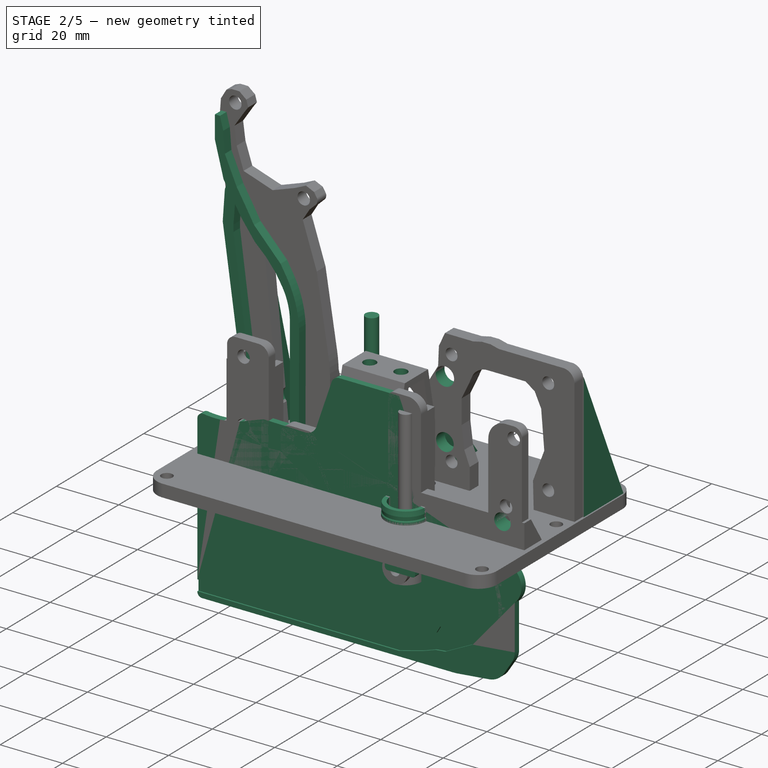
[diagram: stage 2 of 5 — iso view after this stage's code; geometry added in this stage tinted green]
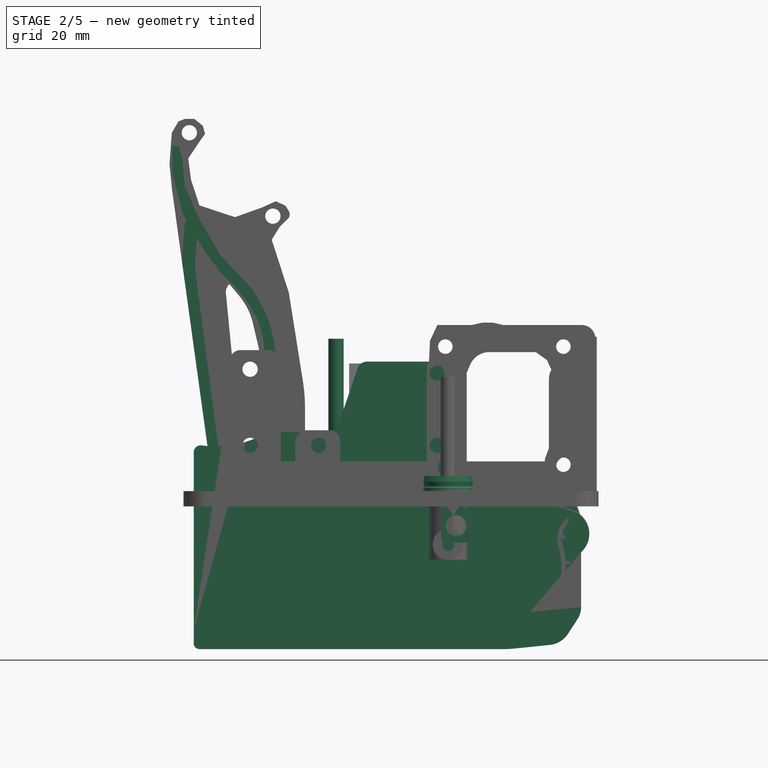
[diagram: stage 2 of 5 — front view after this stage's code; geometry added in this stage tinted green]
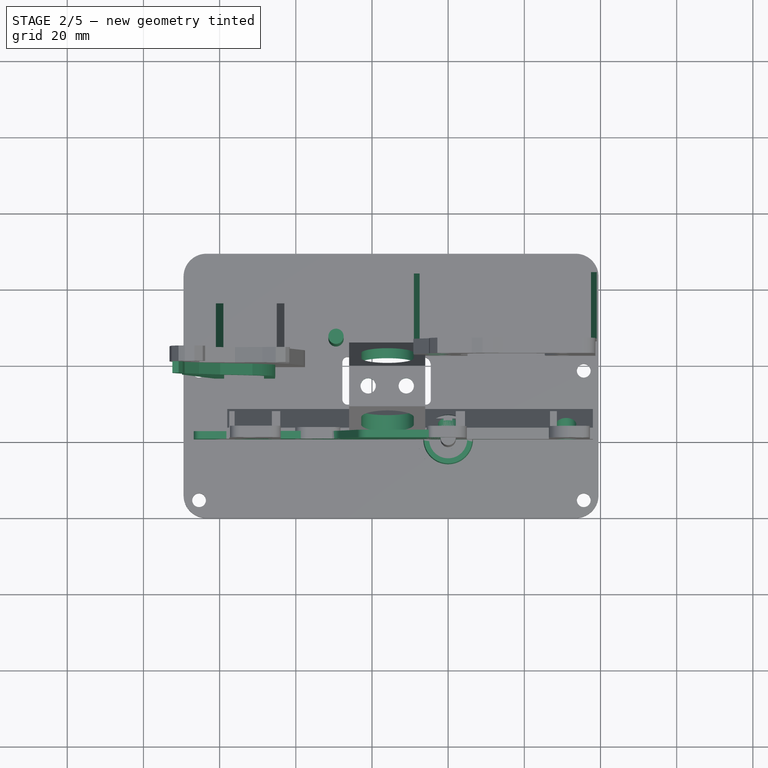
[diagram: stage 2 of 5 — top view after this stage's code; geometry added in this stage tinted green]
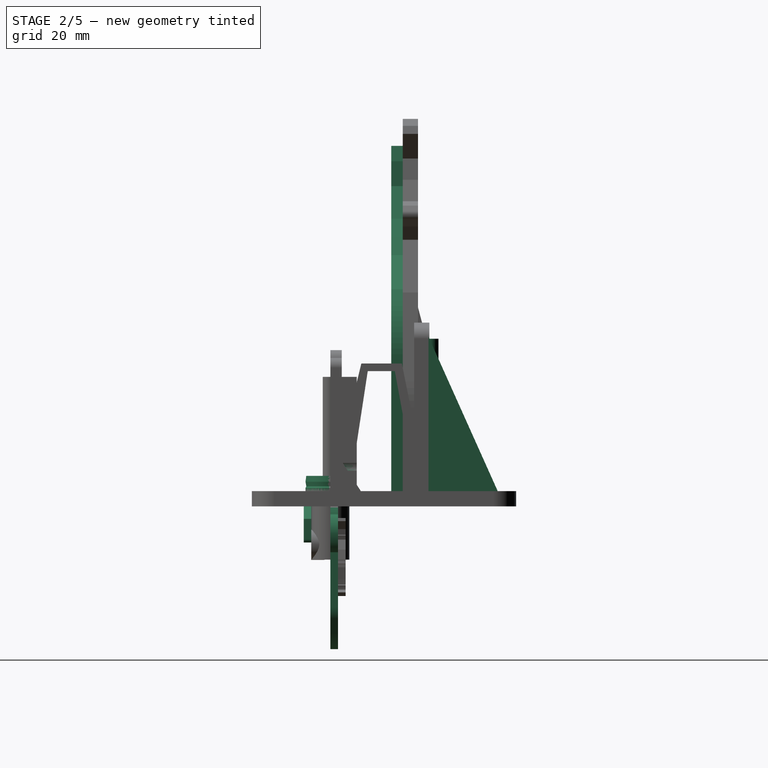
[diagram: stage 2 of 5 — right view after this stage's code; geometry added in this stage tinted green]
FEATURE [Sketcher::SketchObject] Sketch
  MapMode = 5
  Placement = pos=(0,0,0) rot=(1,0,0;1.5708rad)
  Support = -> [XZ_Plane]
  sketch-geometry (32):
    g0: LineSegment StartX=34.9081 StartY=-16.0465 StartZ=0 EndX=34.9081 EndY=-30.4212 EndZ=0
    g1: LineSegment StartX=15.0377 StartY=-41.4754 StartZ=0 EndX=-65.3142 EndY=-41.4754 EndZ=0
    g2: LineSegment StartX=14 StartY=0 StartZ=0 EndX=18 EndY=0 EndZ=0
    g3: LineSegment StartX=18 StartY=0 StartZ=0 EndX=18.1056 EndY=1.53148 EndZ=0
    g4: LineSegment StartX=19.9987 StartY=3.29844 StartZ=0 EndX=22.2257 EndY=3.29844 EndZ=0
    g5: LineSegment StartX=0.523556 StartY=31.4947 StartZ=0 EndX=0.833508 EndY=26.4847 EndZ=0
    g6: LineSegment StartX=3.06055 StartY=4.01484 StartZ=0 EndX=11.6482 EndY=4.01484 EndZ=0
    g7: LineSegment StartX=11.6482 StartY=4.01484 StartZ=0 EndX=14 EndY=0 EndZ=0
    g8: ArcOfCircle CenterX=-2.14157 CenterY=31.3298 CenterZ=0 NormalX=0 NormalY=0 NormalZ=1 AngleXU=0 Radius=2.67023 StartAngle=0.0617885 EndAngle=1.5708
    g9: ArcOfCircle CenterX=22.2257 CenterY=-9.55201 CenterZ=0 NormalX=0 NormalY=0 NormalZ=1 AngleXU=0 Radius=12.8505 StartAngle=0.271314 EndAngle=1.5708
    g10: ArcOfCircle CenterX=19.9987 CenterY=1.4009 CenterZ=0 NormalX=0 NormalY=0 NormalZ=1 AngleXU=0 Radius=1.89754 StartAngle=1.5708 EndAngle=3.07272
    g11: LineSegment StartX=-2.14157 StartY=34 StartZ=0 EndX=-21.2944 EndY=34 EndZ=0
    g12: LineSegment StartX=-23.7802 StartY=32.2194 StartZ=0 EndX=-28.6051 EndY=18.0237 EndZ=0
    g13: ArcOfCircle CenterX=-32.296 CenterY=19.2781 CenterZ=0 NormalX=0 NormalY=0 NormalZ=1 AngleXU=0 Radius=3.89823 StartAngle=4.69572 EndAngle=5.95555
    g14: ArcOfCircle CenterX=-21.2944 CenterY=31.3746 CenterZ=0 NormalX=0 NormalY=0 NormalZ=1 AngleXU=0 Radius=2.62543 StartAngle=1.5708 EndAngle=2.81396
    g15: LineSegment StartX=-32.3609 StartY=15.3804 StartZ=0 EndX=-45.5363 EndY=15.6 EndZ=0
    g16: ArcOfCircle CenterX=-61.0808 CenterY=38.8899 CenterZ=0 NormalX=0 NormalY=0 NormalZ=1 AngleXU=0 Radius=27.1476 StartAngle=4.57759 EndAngle=5.20188
    g17: LineSegment StartX=16.8928 StartY=-41.3821 StartZ=0 EndX=26.6213 EndY=-40.4009 EndZ=0
    g18: LineSegment StartX=33.9664 StartY=-33.6085 StartZ=0 EndX=31.4967 EndY=-37.4228 EndZ=0
    g19: LineSegment StartX=-66.7998 StartY=-39.9898 StartZ=0 EndX=-66.7998 EndY=10.1798 EndZ=0
    g20: ArcOfCircle CenterX=-64.9744 CenterY=10.1798 CenterZ=0 NormalX=0 NormalY=0 NormalZ=1 AngleXU=0 Radius=1.82534 StartAngle=1.436 EndAngle=3.14159
    g21: ArcOfCircle CenterX=-45.6315 CenterY=9.89012 CenterZ=0 NormalX=0 NormalY=0 NormalZ=1 AngleXU=0 Radius=5.71072 StartAngle=1.55413 EndAngle=2.06029
    g22: ArcOfCircle CenterX=3.06055 CenterY=4.90511 CenterZ=0 NormalX=0 NormalY=0 NormalZ=1 AngleXU=0 Radius=0.890265 StartAngle=3.20338 EndAngle=4.71239
    g23: ArcOfCircle CenterX=29.0436 CenterY=-30.4212 CenterZ=0 NormalX=0 NormalY=0 NormalZ=1 AngleXU=0 Radius=5.86449 StartAngle=5.70859 EndAngle=6.28319
    g24: ArcOfCircle CenterX=25.9594 CenterY=-33.8376 CenterZ=0 NormalX=0 NormalY=0 NormalZ=1 AngleXU=0 Radius=6.59665 StartAngle=4.8129 EndAngle=5.70859
    g25: ArcOfCircle CenterX=15.0377 CenterY=-22.9871 CenterZ=0 NormalX=0 NormalY=0 NormalZ=1 AngleXU=0 Radius=18.4883 StartAngle=4.71239 EndAngle=4.8129
    g26: ArcOfCircle CenterX=-65.3142 CenterY=-39.9898 CenterZ=0 NormalX=0 NormalY=0 NormalZ=1 AngleXU=0 Radius=1.4856 StartAngle=3.14159 EndAngle=4.71239
    g27: ArcOfCircle CenterX=30.5178 CenterY=-11.2062 CenterZ=0 NormalX=0 NormalY=0 NormalZ=1 AngleXU=0 Radius=6.53482 StartAngle=5.44907 EndAngle=7.17807
    g28: ArcOfCircle CenterX=-1.76409 CenterY=23.2622 CenterZ=0 NormalX=0 NormalY=0 NormalZ=1 AngleXU=0 Radius=4.13908 StartAngle=5.51441 EndAngle=7.17554
    g29: LineSegment StartX=1.21091 StartY=20.3845 StartZ=0 EndX=1.51278 EndY=15.5052 EndZ=0
    g30: ArcOfCircle CenterX=-1.96646 CenterY=11.8114 CenterZ=0 NormalX=0 NormalY=0 NormalZ=1 AngleXU=0 Radius=5.07438 StartAngle=5.59146 EndAngle=7.09849
    g31: LineSegment StartX=1.94155 StartY=8.57465 StartZ=0 EndX=2.17198 EndY=4.85013 EndZ=0
  constraints (45):
    c: Horizontal(g1)
    c: Vertical(g0)
    c: PointOnObject(g2,g-1)
    c: Horizontal(g2)
    c: Coincident(g2,g3)
    c: Horizontal(g4)
    c: Horizontal(g6)
    c: Coincident(g7,g6)
    c: Coincident(g7,g2)
    c: DistanceX(g-1,g2) = 14
    c: DistanceX(g2,g2) = 4
    c: Tangent(g5,g8) = 1.5708
    c: Tangent(g4,g9) = 1.5708
    c: Tangent(g3,g10) = 1.5708
    c: Tangent(g4,g10) = 1.5708
    c: Tangent(g8,g11) = -1.5708
    c: DistanceY(g-1,g8) = 34
    c: Horizontal(g11)
    c: Tangent(g12,g13) = 1.5708
    c: Tangent(g12,g14) = -1.5708
    c: Tangent(g11,g14) = -1.5708
    c: Tangent(g13,g15) = 1.5708
    c: Vertical(g19)
    c: Tangent(g16,g20) = 1.5708
    c: Tangent(g19,g20) = 1.5708
    c: Tangent(g16,g21) = 1.5708
    c: Tangent(g15,g21) = -1.5708
    c: Coincident(g31,g22) = -1.5708
    c: Tangent(g6,g22) = -1.5708
    c: Tangent(g0,g23) = 1.5708
    c: Tangent(g18,g23) = 1.5708
    c: Tangent(g18,g24) = 1.5708
    c: Tangent(g17,g24) = -1.5708
    c: Tangent(g17,g25) = -1.5708
    c: Tangent(g1,g25) = 1.5708
    c: Tangent(g19,g26) = 1.5708
    c: Tangent(g1,g26) = 1.5708
    c: Coincident(g9,g27)
    c: Coincident(g0,g27)
    c: Coincident(g5,g28)
    c: Coincident(g29,g28)
    c: Tangent(g5,g29)
    c: Coincident(g29,g30)
    c: Coincident(g31,g30)
    c: Tangent(g29,g31)
FEATURE [Sketcher::SketchObject] Sketch001
  AttachmentOffset = pos=(0,0,-0.5) rot=(0,0,1;0rad)
  MapMode = 5
  Placement = pos=(0,0.5,1e-16) rot=(1,0,0;1.5708rad)
  Support = -> [XZ_Plane]
  sketch-geometry (121):
    g0: ArcOfCircle CenterX=-32.78 CenterY=-26.2244 CenterZ=0 NormalX=0 NormalY=0 NormalZ=1 AngleXU=0 Radius=25.4394 StartAngle=1.5708 EndAngle=1.71889
    g1: ArcOfCircle CenterX=-32.78 CenterY=-26.2244 CenterZ=0 NormalX=0 NormalY=0 NormalZ=1 AngleXU=0 Radius=24.5094 StartAngle=1.5708 EndAngle=1.72931
    g2: ArcOfCircle CenterX=-10.0374 CenterY=4.32286 CenterZ=0 NormalX=0 NormalY=0 NormalZ=1 AngleXU=0 Radius=3.57286 StartAngle=4.71239 EndAngle=4.90993
    g3: ArcOfCircle CenterX=-10.0374 CenterY=4.32286 CenterZ=0 NormalX=0 NormalY=0 NormalZ=1 AngleXU=0 Radius=2.62595 StartAngle=4.71239 EndAngle=4.90993
    g4: ArcOfCircle CenterX=-9.42911 CenterY=1.28373 CenterZ=0 NormalX=0 NormalY=0 NormalZ=1 AngleXU=0 Radius=0.473458 StartAngle=4.90993 EndAngle=8.05152
    g5: LineSegment StartX=-40.7089 StartY=1.715 StartZ=0 EndX=-19.6649 EndY=1.715 EndZ=0
    g6: LineSegment StartX=-40.8661 StartY=0.715 StartZ=0 EndX=-19.6649 EndY=0.715 EndZ=0
    g7: LineSegment StartX=-32.78 StartY=-0.785 StartZ=0 EndX=-19.4206 EndY=-0.785 EndZ=0
    g8: LineSegment StartX=-32.78 StartY=-1.715 StartZ=0 EndX=-19.6649 EndY=-1.715 EndZ=0
    g9: LineSegment StartX=-10.0374 StartY=0.75 StartZ=0 EndX=-11.2805 EndY=0.75 EndZ=0
    g10: LineSegment StartX=-11.2805 StartY=-0.75 StartZ=0 EndX=20.64 EndY=-0.75 EndZ=0
    g11: LineSegment StartX=20.5956 StartY=-1.75 StartZ=0 EndX=-11.2805 EndY=-1.75 EndZ=0
    g12: ArcOfCircle CenterX=-11.2805 CenterY=2.60147 CenterZ=0 NormalX=0 NormalY=0 NormalZ=1 AngleXU=0 Radius=0.85226 StartAngle=3.96991 EndAngle=4.66934
    g13: ArcOfCircle CenterX=-11.2805 CenterY=2.60147 CenterZ=0 NormalX=0 NormalY=0 NormalZ=1 AngleXU=0 Radius=1.85147 StartAngle=3.98579 EndAngle=4.71239
    g14: ArcOfCircle CenterX=-19.676 CenterY=1.215 CenterZ=0 NormalX=0 NormalY=0 NormalZ=1 AngleXU=0 Radius=0.500123 StartAngle=4.7346 EndAngle=7.83177
    g15: ArcOfCircle CenterX=-19.676 CenterY=-1.215 CenterZ=0 NormalX=0 NormalY=0 NormalZ=1 AngleXU=0 Radius=0.500123 StartAngle=4.7346 EndAngle=7.31804
    g16: ArcOfCircle CenterX=-12.1947 CenterY=1.60519 CenterZ=0 NormalX=0 NormalY=0 NormalZ=1 AngleXU=0 Radius=0.499921 StartAngle=0.82832 EndAngle=4.02875
    g17: ArcOfCircle CenterX=-11.2805 CenterY=-2.64105 CenterZ=0 NormalX=0 NormalY=0 NormalZ=1 AngleXU=0 Radius=1.89105 StartAngle=1.5708 EndAngle=2.2939
    g18: ArcOfCircle CenterX=-11.2805 CenterY=-2.64105 CenterZ=0 NormalX=0 NormalY=0 NormalZ=1 AngleXU=0 Radius=0.891046 StartAngle=1.5708 EndAngle=2.16994
    g19: ArcOfCircle CenterX=-12.1947 CenterY=-1.60519 CenterZ=0 NormalX=0 NormalY=0 NormalZ=1 AngleXU=0 Radius=0.509447 StartAngle=2.2939 EndAngle=5.65348
    g20: ArcOfCircle CenterX=11.0201 CenterY=3.21707 CenterZ=0 NormalX=0 NormalY=0 NormalZ=1 AngleXU=0 Radius=2.46707 StartAngle=4.71239 EndAngle=5.17134
    g21: ArcOfCircle CenterX=11.0201 CenterY=3.21707 CenterZ=0 NormalX=0 NormalY=0 NormalZ=1 AngleXU=0 Radius=1.46707 StartAngle=4.71239 EndAngle=5.07802
    g22: ArcOfCircle CenterX=11.8256 CenterY=1.42394 CenterZ=0 NormalX=0 NormalY=0 NormalZ=1 AngleXU=0 Radius=0.507829 StartAngle=5.3141 EndAngle=8.44022
    g23: LineSegment StartX=11.0201 StartY=0.75 StartZ=0 EndX=8.55704 EndY=0.75 EndZ=0
    g24: ArcOfCircle CenterX=8.55704 CenterY=3.09559 CenterZ=0 NormalX=0 NormalY=0 NormalZ=1 AngleXU=0 Radius=1.34559 StartAngle=3.51813 EndAngle=4.71239
    g25: ArcOfCircle CenterX=8.55704 CenterY=3.09559 CenterZ=0 NormalX=0 NormalY=0 NormalZ=1 AngleXU=0 Radius=2.34559 StartAngle=3.51813 EndAngle=4.71239
    g26: ArcOfCircle CenterX=6.84075 CenterY=2.41696 CenterZ=0 NormalX=0 NormalY=0 NormalZ=1 AngleXU=0 Radius=0.5 StartAngle=0.376538 EndAngle=3.51813
    g27: LineSegment StartX=-11.3172 StartY=1.75 StartZ=0 EndX=-10.6847 EndY=1.72276 EndZ=0
    g28: LineSegment StartX=-10.6847 StartY=1.72276 StartZ=0 EndX=-10.6847 EndY=3.51468 EndZ=0
    g29: LineSegment StartX=-10.6847 StartY=3.51468 StartZ=0 EndX=-10.0847 EndY=3.51468 EndZ=0
    g30: LineSegment StartX=-10.0847 StartY=3.51468 StartZ=0 EndX=-10.0847 EndY=1.69692 EndZ=0
    g31: LineSegment StartX=-10.0847 StartY=1.69692 StartZ=0 EndX=-10.0374 EndY=1.69692 EndZ=0
    g32: LineSegment StartX=8.55704 StartY=1.75 StartZ=0 EndX=9.92264 EndY=1.75 EndZ=0
    g33: LineSegment StartX=9.92264 StartY=1.75 StartZ=0 EndX=9.92264 EndY=3.35009 EndZ=0
    g34: LineSegment StartX=9.92264 StartY=3.35009 StartZ=0 EndX=10.5226 EndY=3.35009 EndZ=0
    g35: LineSegment StartX=10.5226 StartY=3.35009 StartZ=0 EndX=10.5226 EndY=1.75 EndZ=0
    g36: LineSegment StartX=10.5226 StartY=1.75 StartZ=0 EndX=11.0201 EndY=1.75 EndZ=0
    g37: LineSegment [constr] StartX=-19.6649 StartY=1.715 StartZ=0 EndX=-19.6649 EndY=0.715 EndZ=0
    g38: LineSegment [constr] StartX=-76.6396 StartY=-15 StartZ=0 EndX=-37.1368 EndY=-15 EndZ=0
    g39: LineSegment [constr] StartX=-59.5 StartY=3.36398 StartZ=0 EndX=-59.5 EndY=-39.9372 EndZ=0
    g40: ArcOfCircle CenterX=-40.8521 CenterY=-9.97851 CenterZ=0 NormalX=0 NormalY=0 NormalZ=1 AngleXU=0 Radius=11.6944 StartAngle=1.55855 EndAngle=1.68928
    g41: ArcOfCircle CenterX=-40.8521 CenterY=-9.97851 CenterZ=0 NormalX=0 NormalY=0 NormalZ=1 AngleXU=0 Radius=10.6935 StartAngle=1.57211 EndAngle=1.64904
    g42: ArcOfCircle CenterX=20.5546 CenterY=-7.64645 CenterZ=0 NormalX=0 NormalY=0 NormalZ=1 AngleXU=0 Radius=9.63465 StartAngle=0.140033 EndAngle=1.36334
    g43: LineSegment StartX=-2.21025 StartY=-40.1262 StartZ=0 EndX=-63.3311 EndY=-40.1262 EndZ=0
    g44: ArcOfCircle CenterX=20.6462 CenterY=-1.25126 CenterZ=0 NormalX=0 NormalY=0 NormalZ=1 AngleXU=0 Radius=0.5013 StartAngle=4.61128 EndAngle=7.86646
    g45: ArcOfCircle CenterX=20.5546 CenterY=-7.64645 CenterZ=0 NormalX=0 NormalY=0 NormalZ=1 AngleXU=0 Radius=8.60585 StartAngle=0.123465 EndAngle=1.43624
    g46: LineSegment StartX=-2.44754 StartY=-39.3161 StartZ=0 EndX=-63.3401 EndY=-39.3161 EndZ=0
    g47: LineSegment StartX=-4.90345 StartY=-35.8268 StartZ=0 EndX=-63.3205 EndY=-35.8268 EndZ=0
    g48: LineSegment StartX=-4.30463 StartY=-36.7204 StartZ=0 EndX=-63.1969 EndY=-36.7204 EndZ=0
    g49: LineSegment StartX=20.109 StartY=2.04082 StartZ=0 EndX=21.8484 EndY=2.04082 EndZ=0
    g50: ArcOfCircle CenterX=20.2481 CenterY=2.81954 CenterZ=0 NormalX=0 NormalY=0 NormalZ=1 AngleXU=0 Radius=0.791052 StartAngle=3.71939 EndAngle=4.53559
    g51: ArcOfCircle CenterX=20.2481 CenterY=2.81954 CenterZ=0 NormalX=0 NormalY=0 NormalZ=1 AngleXU=0 Radius=1.89629 StartAngle=3.69319 EndAngle=4.6204
    g52: ArcOfCircle CenterX=19.1219 CenterY=2.08522 CenterZ=0 NormalX=0 NormalY=0 NormalZ=1 AngleXU=0 Radius=0.553413 StartAngle=0.577797 EndAngle=3.62949
    g53: LineSegment StartX=20.0739 StartY=0.931259 StartZ=0 EndX=21.2945 EndY=0.931259 EndZ=0
    g54: LineSegment StartX=21.7091 StartY=0.881607 StartZ=0 EndX=22.5391 EndY=1.78161 EndZ=0
    g55: LineSegment StartX=21.8484 StartY=2.04082 StartZ=0 EndX=22.3544 EndY=2.04082 EndZ=0
    g56: LineSegment StartX=22.3544 StartY=2.04082 StartZ=0 EndX=21.2945 EndY=0.931259 EndZ=0
    g57: LineSegment StartX=-42.2345 StartY=1.63388 StartZ=0 EndX=-62.3919 EndY=-0.765778 EndZ=0
    g58: LineSegment StartX=-41.6879 StartY=0.682296 StartZ=0 EndX=-62.2726 EndY=-1.76823 EndZ=0
    g59: LineSegment StartX=-62.6793 StartY=-4.96396 StartZ=0 EndX=-36.5336 EndY=-1.06345 EndZ=0
    g60: LineSegment StartX=-62.5419 StartY=-5.8851 StartZ=0 EndX=-36.6489 EndY=-2.02229 EndZ=0
    g61: ArcOfCircle CenterX=15.3151 CenterY=-20.0367 CenterZ=0 NormalX=0 NormalY=0 NormalZ=1 AngleXU=0 Radius=15.3 StartAngle=4.76719 EndAngle=5.10321
    g62: ArcOfCircle CenterX=15.3151 CenterY=-20.0367 CenterZ=0 NormalX=0 NormalY=0 NormalZ=1 AngleXU=0 Radius=16.235 StartAngle=4.75411 EndAngle=5.13139
    g63: LineSegment StartX=16.1532 StartY=-35.3137 StartZ=0 EndX=12.0452 EndY=-35.539 EndZ=0
    g64: LineSegment StartX=8.08868 StartY=-36.3567 StartZ=0 EndX=3.37685 EndY=-38.0915 EndZ=0
    g65: LineSegment StartX=1.38296 StartY=-38.6838 StartZ=0 EndX=-0.347845 EndY=-39.0793 EndZ=0
    g66: LineSegment StartX=15.9922 StartY=-36.2575 StartZ=0 EndX=11.788 EndY=-36.433 EndZ=0
    g67: LineSegment StartX=8.41626 StartY=-37.0967 StartZ=0 EndX=3.61698 EndY=-38.8321 EndZ=0
    g68: LineSegment StartX=1.78364 StartY=-39.4077 StartZ=0 EndX=0.364837 EndY=-39.7875 EndZ=0
    g69: ArcOfCircle CenterX=12.7906 CenterY=-49.1271 CenterZ=0 NormalX=0 NormalY=0 NormalZ=1 AngleXU=0 Radius=13.6085 StartAngle=1.6256 EndAngle=1.92358
    g70: ArcOfCircle CenterX=12.2594 CenterY=-47.725 CenterZ=0 NormalX=0 NormalY=0 NormalZ=1 AngleXU=0 Radius=11.3018 StartAngle=1.61252 EndAngle=1.91776
    g71: ArcOfCircle CenterX=-2.236 CenterY=-22.847 CenterZ=0 NormalX=0 NormalY=0 NormalZ=1 AngleXU=0 Radius=16.245 StartAngle=4.93705 EndAngle=5.06517
    g72: ArcOfCircle CenterX=-4.0343 CenterY=-17.672 CenterZ=0 NormalX=0 NormalY=0 NormalZ=1 AngleXU=0 Radius=22.5009 StartAngle=4.97392 EndAngle=5.05935
    g73: ArcOfCircle CenterX=-2.21025 CenterY=-30.167 CenterZ=0 NormalX=0 NormalY=0 NormalZ=1 AngleXU=0 Radius=9.95916 StartAngle=4.71239 EndAngle=4.97392
    g74: ArcOfCircle CenterX=-2.44754 CenterY=-29.8909 CenterZ=0 NormalX=0 NormalY=0 NormalZ=1 AngleXU=0 Radius=9.42524 StartAngle=4.71239 EndAngle=4.93705
    g75: LineSegment StartX=-4.90345 StartY=-35.8268 StartZ=0 EndX=-1.2327 EndY=-35.3079 EndZ=0
    g76: LineSegment StartX=-1.2327 StartY=-35.3079 StartZ=0 EndX=1.7971 EndY=-33.9637 EndZ=0
    g77: LineSegment StartX=1.7971 StartY=-33.9637 StartZ=0 EndX=4.37703 EndY=-32.4037 EndZ=0
    g78: LineSegment StartX=4.37703 StartY=-32.4037 StartZ=0 EndX=5.21701 EndY=-32.4037 EndZ=0
    g79: LineSegment StartX=5.21701 StartY=-32.4037 StartZ=0 EndX=5.60011 EndY=-33.0037 EndZ=0
    g80: LineSegment StartX=5.60011 StartY=-33.0037 StartZ=0 EndX=5.60011 EndY=-33.48 EndZ=0
    g81: LineSegment StartX=5.12086 StartY=-34.0126 StartZ=0 EndX=3.96963 EndY=-34.1345 EndZ=0
    g82: LineSegment StartX=2.94892 StartY=-34.474 StartZ=0 EndX=0.992676 EndY=-35.6381 EndZ=0
    g83: LineSegment StartX=-0.88421 StartY=-36.3105 StartZ=0 EndX=-2.85219 EndY=-36.6104 EndZ=0
    g84: ArcOfCircle CenterX=5.06447 CenterY=-33.48 CenterZ=0 NormalX=0 NormalY=0 NormalZ=1 AngleXU=0 Radius=0.535642 StartAngle=4.81787 EndAngle=6.28319
    g85: ArcOfCircle CenterX=4.23429 CenterY=-36.6342 CenterZ=0 NormalX=0 NormalY=0 NormalZ=1 AngleXU=0 Radius=2.51365 StartAngle=1.67628 EndAngle=2.10756
    g86: ArcOfCircle CenterX=-1.66821 CenterY=-31.1662 CenterZ=0 NormalX=0 NormalY=0 NormalZ=1 AngleXU=0 Radius=5.20362 StartAngle=4.86363 EndAngle=5.24915
    g87: ArcOfCircle CenterX=-4.30463 CenterY=-27.0802 CenterZ=0 NormalX=0 NormalY=0 NormalZ=1 AngleXU=0 Radius=9.64021 StartAngle=4.71239 EndAngle=4.86363
    g88: LineSegment StartX=21.7454 StartY=-1.18448 StartZ=0 EndX=23.1895 EndY=-1.68858 EndZ=0
    g89: LineSegment StartX=24.3373 StartY=-2.34034 StartZ=0 EndX=25.356 EndY=-3.19327 EndZ=0
    g90: LineSegment StartX=26.5384 StartY=-4.82526 StartZ=0 EndX=27.1695 EndY=-6.40398 EndZ=0
    g91: LineSegment StartX=27.3978 StartY=-7.58519 StartZ=0 EndX=27.3984 EndY=-7.97515 EndZ=0
    g92: LineSegment StartX=26.9899 StartY=-8.24707 StartZ=0 EndX=26.701 EndY=-8.12561 EndZ=0
    g93: LineSegment StartX=26.701 StartY=-8.12561 StartZ=0 EndX=26.175 EndY=-7.41402 EndZ=0
    g94: LineSegment StartX=26.175 StartY=-7.41402 StartZ=0 EndX=25.761 EndY=-6.01579 EndZ=0
    g95: LineSegment StartX=25.761 StartY=-6.01579 StartZ=0 EndX=25.2205 EndY=-4.79845 EndZ=0
    g96: LineSegment StartX=25.2205 StartY=-4.79845 StartZ=0 EndX=23.6959 EndY=-3.3423 EndZ=0
    g97: LineSegment StartX=23.6959 StartY=-3.3423 StartZ=0 EndX=21.5059 EndY=-2.38232 EndZ=0
    g98: LineSegment StartX=21.5059 StartY=-2.38232 StartZ=0 EndX=21.7454 EndY=-1.18448 EndZ=0
    g99: ArcOfCircle CenterX=21.9785 CenterY=-5.15762 CenterZ=0 NormalX=0 NormalY=0 NormalZ=1 AngleXU=0 Radius=3.67433 StartAngle=0.873755 EndAngle=1.23494
    g100: ArcOfCircle CenterX=22.7076 CenterY=-6.35646 CenterZ=0 NormalX=0 NormalY=0 NormalZ=1 AngleXU=0 Radius=4.12548 StartAngle=0.380254 EndAngle=0.873755
    g101: ArcOfCircle CenterX=24.201 CenterY=-7.59048 CenterZ=0 NormalX=0 NormalY=0 NormalZ=1 AngleXU=0 Radius=3.19678 StartAngle=0.00165567 EndAngle=0.380254
    g102: ArcOfCircle CenterX=27.104 CenterY=-7.97564 CenterZ=0 NormalX=0 NormalY=0 NormalZ=1 AngleXU=0 Radius=0.294438 StartAngle=4.31445 EndAngle=6.28484
    g103: ArcOfCircle CenterX=-62.7351 CenterY=2.11696 CenterZ=0 NormalX=0 NormalY=0 NormalZ=1 AngleXU=0 Radius=2.90309 StartAngle=3.29223 EndAngle=4.83088
    g104: ArcOfCircle CenterX=-62.7351 CenterY=2.11696 CenterZ=0 NormalX=0 NormalY=0 NormalZ=1 AngleXU=0 Radius=3.91262 StartAngle=3.39066 EndAngle=4.83088
    g105: ArcOfCircle CenterX=-61.9866 CenterY=-9.60719 CenterZ=0 NormalX=0 NormalY=0 NormalZ=1 AngleXU=0 Radius=4.69462 StartAngle=1.71889 EndAngle=2.4345
    g106: ArcOfCircle CenterX=-61.9866 CenterY=-9.60719 CenterZ=0 NormalX=0 NormalY=0 NormalZ=1 AngleXU=0 Radius=3.76328 StartAngle=1.7189 EndAngle=2.51305
    g107: ArcOfCircle CenterX=-66.0543 CenterY=1.39627 CenterZ=0 NormalX=0 NormalY=0 NormalZ=1 AngleXU=0 Radius=0.531831 StartAngle=0.565617 EndAngle=3.61777
    g108: ArcOfCircle CenterX=-65.2908 CenterY=-6.97446 CenterZ=0 NormalX=0 NormalY=0 NormalZ=1 AngleXU=0 Radius=0.494057 StartAngle=2.13677 EndAngle=5.26682
    g109: ArcOfCircle CenterX=-63.2992 CenterY=-36.2792 CenterZ=0 NormalX=0 NormalY=0 NormalZ=1 AngleXU=0 Radius=0.452937 StartAngle=1.61771 EndAngle=4.94025
    g110: ArcOfCircle CenterX=-63.3539 CenterY=-39.7214 CenterZ=0 NormalX=0 NormalY=0 NormalZ=1 AngleXU=0 Radius=0.405451 StartAngle=1.53664 EndAngle=4.76863
    g111: ArcOfCircle CenterX=20.5288 CenterY=-7.65009 CenterZ=0 NormalX=0 NormalY=0 NormalZ=1 AngleXU=0 Radius=8.63192 StartAngle=5.91089 EndAngle=6.4067
    g112: ArcOfCircle CenterX=20.5288 CenterY=-7.65009 CenterZ=0 NormalX=0 NormalY=0 NormalZ=1 AngleXU=0 Radius=9.66073 StartAngle=5.91146 EndAngle=6.42322
    g113: LineSegment StartX=28.5694 StartY=-10.79 StartZ=0 EndX=28.4334 EndY=-11.1381 EndZ=0
    g114: LineSegment StartX=28.5033 StartY=-12.2739 StartZ=0 EndX=28.9916 EndY=-13.1779 EndZ=0
    g115: ArcOfCircle CenterX=29.6945 CenterY=-11.6305 CenterZ=0 NormalX=0 NormalY=0 NormalZ=1 AngleXU=0 Radius=1.35377 StartAngle=2.7693 EndAngle=3.63684
    g116: ArcOfCircle CenterX=31.2582 CenterY=-11.8329 CenterZ=0 NormalX=0 NormalY=0 NormalZ=1 AngleXU=0 Radius=1.85518 StartAngle=2.76987 EndAngle=3.60833
    g117: ArcOfCircle CenterX=15.3151 CenterY=-20.0367 CenterZ=0 NormalX=0 NormalY=0 NormalZ=1 AngleXU=0 Radius=15.3 StartAngle=5.10321 EndAngle=6.74803
    g118: ArcOfCircle CenterX=15.3151 CenterY=-20.0367 CenterZ=0 NormalX=0 NormalY=0 NormalZ=1 AngleXU=0 Radius=16.235 StartAngle=5.13139 EndAngle=6.58558
    g119: LineSegment StartX=29.6014 StartY=-12.6677 StartZ=0 EndX=30.4949 EndY=-14.4411 EndZ=0
    g120: LineSegment StartX=30.4949 StartY=-14.4411 StartZ=0 EndX=30.8135 EndY=-15.2018 EndZ=0
  constraints (211):
    c: DistanceY(g10,g2) = 1.5
    c: Coincident(g1,g0)
    c: Coincident(g3,g2)
    c: Coincident(g4,g3)
    c: Coincident(g4,g2)
    c: Tangent(g4,g3)
    c: Horizontal(g5)
    c: Coincident(g7,g0)
    c: Horizontal(g7)
    c: Coincident(g8,g1)
    c: Horizontal(g8)
    c: Coincident(g9,g2)
    c: Horizontal(g9)
    c: Horizontal(g10)
    c: Horizontal(g11)
    c: Coincident(g13,g12)
    c: Coincident(g13,g9)
    c: Coincident(g14,g5)
    c: Coincident(g14,g6)
    c: Coincident(g15,g7)
    c: Coincident(g15,g8)
    c: Coincident(g16,g12)
    c: Coincident(g16,g13)
    c: DistanceY(g0,g6) = 1.5
    c: Coincident(g17,g10)
    c: Coincident(g18,g17)
    c: Coincident(g18,g11)
    c: Symmetric(g9,g10,g-1)
    c: Tangent(g9,g13)
    c: Tangent(g12,g16)
    c: Tangent(g11,g18)
    c: Tangent(g10,g17)
    c: Coincident(g19,g17)
    c: Coincident(g19,g18)
    c: Tangent(g19,g17)
    c: Symmetric(g16,g19,g-1)
    c: DistanceY(g9,g12) = 1
    c: DistanceY(g11,g10) = 1
    c: Symmetric(g14,g15,g-1)
    c: Coincident(g21,g20)
    c: Coincident(g22,g21)
    c: Coincident(g22,g20)
    c: Coincident(g23,g20)
    c: Coincident(g25,g24)
    c: Coincident(g25,g23)
    c: Coincident(g26,g24)
    c: Coincident(g26,g25)
    c: Tangent(g23,g25)
    c: PointOnObject(g23,g9)
    c: Tangent(g12,g27) = -1.5708
    c: Coincident(g27,g28)
    c: Vertical(g28)
    c: Coincident(g28,g29)
    c: Horizontal(g29)
    c: Coincident(g29,g30)
    c: Coincident(g30,g31)
    c: Coincident(g31,g3)
    c: PointOnObject(g30,g27)
    c: Tangent(g31,g3)
    c: Vertical(g30)
    c: Coincident(g32,g33)
    c: Vertical(g33)
    c: Coincident(g33,g34)
    c: Horizontal(g34)
    c: Coincident(g34,g35)
    c: Vertical(g35)
    c: Coincident(g35,g36)
    c: Coincident(g36,g21)
    c: Horizontal(g36)
    c: Coincident(g24,g32)
    c: Tangent(g36,g21)
    c: DistanceX(g29,g29) = 0.6
    c: DistanceX(g34,g34) = 0.6
    c: Tangent(g24,g32)
    c: Tangent(g23,g20)
    c: Horizontal(g32)
    c: PointOnObject(g35,g32)
    c: DistanceY(g23,g24) = 1
    c: Coincident(g37,g5)
    c: Coincident(g37,g6)
    c: Vertical(g37)
    c: DistanceY(g37,g37) = 1
    c: Horizontal(g38)
    c: Vertical(g39)
    c: DistanceX(g39,g-1) = 59.5
    c: DistanceY(g38,g-1) = 15
    c: Horizontal(g23)
    c: Tangent(g25,g26)
    c: Horizontal(g6)
    c: Symmetric(g5,g8,g-1)
    c: Tangent(g0,g7)
    c: Coincident(g40,g5)
    c: Coincident(g41,g40)
    c: Coincident(g41,g6)
    c: Horizontal(g43)
    c: Coincident(g44,g10)
    c: Coincident(g44,g11)
    c: Coincident(g45,g42)
    c: Horizontal(g46)
    c: DistanceX(g45,g42) = 1
    c: Horizontal(g47)
    c: Horizontal(g48)
    c: Horizontal(g49)
    c: Coincident(g50,g49)
    c: Coincident(g51,g50)
    c: Coincident(g52,g50)
    c: Coincident(g52,g51)
    c: Coincident(g53,g51)
    c: Horizontal(g53)
    c: Coincident(g54,g45)
    c: Coincident(g54,g42)
    c: Coincident(g55,g49)
    c: Horizontal(g55)
    c: Coincident(g56,g55)
    c: Coincident(g56,g53)
    c: DistanceX(g1,g-1) = 32.78
    c: DistanceY(g1,g0) = 0.93
    c: Tangent(g40,g57) = -1.5708
    c: Coincident(g58,g41)
    c: Parallel(g57,g58)
    c: Coincident(g59,g0)
    c: Coincident(g60,g1)
    c: Tangent(g59,g0)
    c: Radius(g61) = 15.3
    c: DistanceX(g61) = 15.3151
    c: DistanceY(g61) = -20.0367
    c: Coincident(g62,g61)
    c: Tangent(g61,g63) = 1.5708
    c: Tangent(g62,g66) = 1.5708
    c: Tangent(g63,g69) = -1.5708
    c: Tangent(g64,g69) = -1.5708
    c: Tangent(g66,g70) = -1.5708
    c: Tangent(g67,g70) = -1.5708
    c: Tangent(g64,g71) = 1.5708
    c: Tangent(g65,g71) = 1.5708
    c: Tangent(g67,g72) = 1.5708
    c: Tangent(g68,g72) = 1.5708
    c: Tangent(g68,g73) = 1.5708
    c: Tangent(g43,g73) = 1.5708
    c: Tangent(g65,g74) = 1.5708
    c: Tangent(g46,g74) = 1.5708
    c: Coincident(g47,g75)
    c: Coincident(g75,g76)
    c: Coincident(g76,g77)
    c: Coincident(g77,g78)
    c: Horizontal(g78)
    c: Coincident(g78,g79)
    c: Coincident(g79,g80)
    c: Vertical(g80)
    c: Tangent(g80,g84) = 1.5708
    c: Tangent(g81,g84) = 1.5708
    c: Tangent(g81,g85) = -1.5708
    c: Tangent(g82,g85) = -1.5708
    c: Tangent(g82,g86) = 1.5708
    c: Tangent(g83,g86) = 1.5708
    c: Tangent(g83,g87) = 1.5708
    c: Tangent(g48,g87) = 1.5708
    c: Coincident(g92,g93)
    c: Coincident(g93,g94)
    c: Coincident(g94,g95)
    c: Coincident(g95,g96)
    c: Coincident(g96,g97)
    c: Coincident(g97,g98)
    c: Coincident(g98,g88)
    c: Tangent(g88,g99) = 1.5708
    c: Tangent(g89,g99) = 1.5708
    c: Tangent(g89,g100) = 1.5708
    c: Tangent(g90,g100) = 1.5708
    c: Tangent(g90,g101) = 1.5708
    c: Tangent(g91,g101) = 1.5708
    c: Tangent(g91,g102) = 1.5708
    c: Tangent(g92,g102) = 1.5708
    c: Tangent(g8,g1)
    c: Parallel(g60,g59)
    c: Coincident(g103,g57)
    c: Coincident(g104,g103)
    c: Coincident(g104,g58)
    c: Coincident(g105,g59)
    c: Coincident(g106,g105)
    c: Coincident(g106,g60)
    c: Tangent(g103,g57)
    c: Tangent(g104,g58)
    c: Tangent(g105,g59)
    c: Coincident(g107,g103)
    c: Coincident(g107,g104)
    c: Coincident(g108,g105)
    c: Coincident(g108,g106)
    c: Coincident(g109,g47)
    c: Coincident(g109,g48)
    c: Coincident(g110,g46)
    c: Coincident(g110,g43)
    c: Coincident(g111,g45)
    c: Coincident(g112,g111)
    c: Coincident(g112,g42)
    c: Tangent(g42,g112)
    c: DistanceX(g45) = 21.7091
    c: DistanceY(g45) = 0.881607
    c: DistanceX(g45,g42) = 0.83
    c: DistanceY(g45,g42) = 0.9
    c: Tangent(g111,g113) = 1.5708
    c: Tangent(g113,g115) = -1.5708
    c: Tangent(g114,g115) = -1.5708
    c: Tangent(g112,g116) = 1.5708
    c: Coincident(g61,g117)
    c: Coincident(g62,g118)
    c: Coincident(g61,g117)
    c: Coincident(g62,g118)
    c: Coincident(g114,g117)
    c: Tangent(g116,g119) = -1.5708
    c: Coincident(g119,g120)
    c: Coincident(g120,g118)
FEATURE [PartDesign::Pad] Pad
  Length = 2
  Length2 = 100
  Placement = pos=(0,0,0) rot=(1,0,0;1.5708rad)
  Profile = -> Sketch
  Reversed = true
  Type = 0
FEATURE [PartDesign::Body] Body013  label="HoleDetectorTray"
  Group = -> [Sketch064,Sketch065,Sketch066,Pad041,Pad042,Pocket014]
  Origin = -> Origin013
  Placement = pos=(-16,2,-8.5) rot=(0,0,1;0rad)
  Tip = -> Pocket014
FEATURE [Sketcher::SketchObject] Sketch067
  AttachmentOffset = pos=(0,0,-6) rot=(0,0,1;0rad)
  MapMode = 5
  Placement = pos=(-6,1.3e-15,-1.3e-15) rot=(0.57735,0.57735,0.57735;2.0944rad)
  Support = -> [YZ_Plane010]
  sketch-geometry (8):
    g0: LineSegment StartX=0 StartY=0 StartZ=0 EndX=8.13719 EndY=33.5 EndZ=0
    g1: LineSegment StartX=8.13719 StartY=33.5 StartZ=0 EndX=18.7751 EndY=33.5 EndZ=0
    g2: LineSegment StartX=18.7751 StartY=33.5 StartZ=0 EndX=25.4807 EndY=0 EndZ=0
    g3: LineSegment StartX=25.4807 StartY=0 StartZ=0 EndX=22.7192 EndY=0 EndZ=0
    g4: LineSegment StartX=22.7192 StartY=0 StartZ=0 EndX=16.9267 EndY=31.5 EndZ=0
    g5: LineSegment StartX=16.9267 StartY=31.5 StartZ=0 EndX=9.81888 EndY=31.5 EndZ=0
    g6: LineSegment StartX=9.81888 StartY=31.5 StartZ=0 EndX=5 EndY=0 EndZ=0
    g7: LineSegment StartX=0 StartY=0 StartZ=0 EndX=5 EndY=0 EndZ=0
  constraints (17):
    c: Coincident(g0,g1)
    c: Horizontal(g1)
    c: Coincident(g1,g2)
    c: PointOnObject(g2,g-1)
    c: Coincident(g2,g3)
    c: PointOnObject(g3,g-1)
    c: Coincident(g3,g4)
    c: Coincident(g4,g5)
    c: Horizontal(g5)
    c: Coincident(g5,g6)
    c: PointOnObject(g6,g-1)
    c: Coincident(g6,g7)
    c: DistanceX(g7,g7) = 5
    c: DistanceY(g-1,g1) = 33.5
    c: DistanceY(g5,g0) = 2
    c: Coincident(g7,g0)
    c: Coincident(g0,g-1)
FEATURE [Sketcher::SketchObject] Sketch068
  AttachmentOffset = pos=(0,0,31) rot=(0,0,1;0rad)
  MapMode = 5
  Placement = pos=(0,0,31) rot=(0,0,1;0rad)
  Support = -> [XY_Plane010]
  sketch-geometry (2):
    g0: Circle CenterX=-21 CenterY=13.5 CenterZ=0 NormalX=0 NormalY=0 NormalZ=1 AngleXU=0 Radius=2
    g1: Circle CenterX=-11 CenterY=13.5 CenterZ=0 NormalX=0 NormalY=0 NormalZ=1 AngleXU=0 Radius=2
  constraints (6):
    c: DistanceX(g0,g1) = 10
    c: DistanceX(g1,g-1) = 11
    c: Diameter(g1) = 4
    c: Diameter(g0) = 4
    c: DistanceY(g0,g1) = 0
    c: DistanceY(g-1,g1) = 13.5
FEATURE [Sketcher::SketchObject] Sketch069
  MapMode = 5
  Placement = pos=(0,0,0) rot=(1,0,0;1.5708rad)
  Support = -> [XZ_Plane010]
  sketch-geometry (4):
    g0: ArcOfCircle CenterX=-15.9251 CenterY=22.4472 CenterZ=0 NormalX=0 NormalY=0 NormalZ=1 AngleXU=0 Radius=6.89803 StartAngle=0 EndAngle=3.14159
    g1: ArcOfCircle CenterX=-15.9251 CenterY=15.1201 CenterZ=0 NormalX=0 NormalY=0 NormalZ=1 AngleXU=0 Radius=6.89803 StartAngle=3.14159 EndAngle=6.28319
    g2: LineSegment StartX=-22.8232 StartY=22.4472 StartZ=0 EndX=-22.8232 EndY=15.1201 EndZ=0
    g3: LineSegment StartX=-9.02712 StartY=22.4472 StartZ=0 EndX=-9.02712 EndY=15.1201 EndZ=0
  constraints (6):
    c: Tangent(g0,g3) = 1.5708
    c: Tangent(g0,g2) = -1.5708
    c: Tangent(g2,g1) = -1.5708
    c: Tangent(g3,g1) = 1.5708
    c: Vertical(g2)
    c: Equal(g0,g1)
FEATURE [Part::Feature] Part__Feature001  label="SW_PUSH_6mm_h5mm"
  Placement = pos=(-3.2,2.2,0) rot=(0,0,1;0rad)
  shape: bbox 7.174 x 6 x 8.5 mm, 105 faces (baked)
FEATURE [Sketcher::SketchObject] Sketch070
  MapMode = 5
  Placement = pos=(0,0,0) rot=(1,0,0;1.5708rad)
  Support = -> [XZ_Plane014]
  sketch-geometry (11):
    g0: LineSegment StartX=0 StartY=0 StartZ=0 EndX=0 EndY=-1.78765 EndZ=0
    g1: LineSegment StartX=0 StartY=-1.78765 StartZ=0 EndX=8 EndY=-1.78765 EndZ=0
    g2: LineSegment StartX=6.5205 StartY=0.846405 StartZ=0 EndX=6.31095 EndY=1.23263 EndZ=0
    g3: LineSegment StartX=6.31095 StartY=1.23263 StartZ=0 EndX=6.52461 EndY=2.44473 EndZ=0
    g4: LineSegment StartX=6.32738 StartY=4 StartZ=0 EndX=5 EndY=4 EndZ=0
    g5: LineSegment StartX=5 StartY=4 StartZ=0 EndX=5 EndY=0 EndZ=0
    g6: LineSegment StartX=5 StartY=0 StartZ=0 EndX=0 EndY=0 EndZ=0
    g7: LineSegment StartX=6.5205 StartY=0.846405 StartZ=0 EndX=6.5205 EndY=0 EndZ=0
    g8: LineSegment StartX=6.5205 StartY=0 StartZ=0 EndX=8 EndY=0 EndZ=0
    g9: LineSegment StartX=8 StartY=0 StartZ=0 EndX=8 EndY=-1.78765 EndZ=0
    g10: LineSegment StartX=6.32738 StartY=4 StartZ=0 EndX=6.52461 EndY=2.44473 EndZ=0
  constraints (24):
    c: Coincident(g-1,g0)
    c: Vertical(g0)
    c: Coincident(g0,g1)
    c: Horizontal(g1)
    c: Coincident(g2,g3)
    c: Horizontal(g4)
    c: Coincident(g4,g5)
    c: PointOnObject(g5,g-1)
    c: Vertical(g5)
    c: Coincident(g5,g6)
    c: Coincident(g6,g0)
    c: Coincident(g2,g7)
    c: Vertical(g7)
    c: Coincident(g7,g8)
    c: Horizontal(g8)
    c: Coincident(g8,g9)
    c: Vertical(g9)
    c: Coincident(g1,g9)
    c: DistanceX(g1,g1) = 8
    c: DistanceX(g6,g6) = 5
    c: DistanceY(g5,g5) = 4
    c: Coincident(g4,g10)
    c: Coincident(g10,g3)
    c: PointOnObject(g7,g6)
FEATURE [PartDesign::Revolution] Revolution004
  Angle = 360
  Axis = (0,-2e-16,1)
  Base = (0,0,0)
  Placement = pos=(0,0,0) rot=(1,0,0;1.5708rad)
  Profile = -> Sketch070
  ReferenceAxis = -> Sketch070 [V_Axis]
  Reversed = true
FEATURE [PartDesign::Body] Body016
  Group = -> [Sketch072,Revolution005,Sketch073,Pocket017,PolarPattern]
  Origin = -> Origin016
  Placement = pos=(-88,12,4) rot=(0,0,-1;0.392699rad)
  Tip = -> PolarPattern
FEATURE [Sketcher::SketchObject] Sketch005
  MapMode = 5
  Support = -> [XY_Plane014]
  sketch-geometry (6):
    g0: Circle CenterX=-3.25 CenterY=2.25 CenterZ=0 NormalX=0 NormalY=0 NormalZ=1 AngleXU=0 Radius=0.9
    g1: Circle CenterX=3.25 CenterY=2.25 CenterZ=0 NormalX=0 NormalY=0 NormalZ=1 AngleXU=0 Radius=0.9
    g2: Circle CenterX=-3.25 CenterY=-2.25 CenterZ=0 NormalX=0 NormalY=0 NormalZ=1 AngleXU=0 Radius=0.9
    g3: Circle CenterX=3.25 CenterY=-2.25 CenterZ=0 NormalX=0 NormalY=0 NormalZ=1 AngleXU=0 Radius=0.9
    g4: Circle CenterX=0 CenterY=2.5 CenterZ=0 NormalX=0 NormalY=0 NormalZ=1 AngleXU=0 Radius=0.9
    g5: Circle CenterX=0 CenterY=-2.5 CenterZ=0 NormalX=0 NormalY=0 NormalZ=1 AngleXU=0 Radius=0.9
  constraints (14):
    c: DistanceX(g0,g1) = 6.5
    c: DistanceY(g2,g0) = 4.5
    c: Diameter(g0) = 1.8
    c: Equal(g0,g1)
    c: Equal(g3,g1)
    c: Equal(g3,g2)
    c: Symmetric(g0,g1,g-2)
    c: Symmetric(g1,g3,g-1)
    c: Symmetric(g0,g2,g-1)
    c: PointOnObject(g4,g-2)
    c: DistanceY(g5,g4) = 5
    c: Symmetric(g4,g5,g-1)
    c: Equal(g0,g4)
    c: Equal(g0,g5)
FEATURE [PartDesign::Pocket] Pocket018
  BaseFeature = -> Revolution004
  Length = 5
  Length2 = 100
  Placement = pos=(0,0,0) rot=(1,0,0;1.5708rad)
  Profile = -> Sketch005
  Type = 1
FEATURE [PartDesign::Body] Body017  label="NEMA17-pancake"
  Group = -> [Sketch237,Pad050,Sketch238,Pad048,Sketch239,Pad049,Sketch240,Pocket019]
  Origin = -> Origin017
  Placement = pos=(14.8387,28.418,-19.5539) rot=(0,0.707107,-0.707107;3.14159rad)
FEATURE [PartDesign::Pad] Pad045
  BaseFeature = -> Pocket018
  Length = 2
  Length2 = 100
  Placement = pos=(0,0,0) rot=(1,0,0;1.5708rad)
  Profile = -> Sketch075
  Reversed = true
  Type = 0
FEATURE [PartDesign::Body] Body014
  Group = -> [Sketch070,Revolution004,Sketch005,Pocket018,Sketch075,Pad045]
  Origin = -> Origin014
  Placement = pos=(-88,12,4) rot=(0,0,1;0rad)
FEATURE [App::DocumentObjectGroup] ____________  label="Button"
  Group = -> [Body016,Body015,Body014,Part__Feature001]
FEATURE [Sketcher::SketchObject] Sketch242
  MapMode = 5
  Placement = pos=(0,0,0) rot=(1,0,0;1.5708rad)
  Support = -> [XZ_Plane]
  sketch-geometry (96):
    g0: LineSegment StartX=-104.988 StartY=-21.9206 StartZ=0 EndX=-99.6262 EndY=-22.427 EndZ=0
    g1: LineSegment StartX=-95.1751 StartY=-22.3327 StartZ=0 EndX=-91.0656 EndY=-21.7683 EndZ=0
    g2: LineSegment StartX=-87.5474 StartY=-20.8411 StartZ=0 EndX=-84.8412 EndY=-19.7637 EndZ=0
    g3: LineSegment StartX=-82.6588 StartY=-18.5453 StartZ=0 EndX=-78.9396 EndY=-15.779 EndZ=0
    g4: LineSegment StartX=-76.9324 StartY=-13.8451 StartZ=0 EndX=-75.1912 EndY=-11.6774 EndZ=0
    g5: LineSegment StartX=-73.3807 StartY=-9.2355 StartZ=0 EndX=-71.9601 EndY=-7.15601 EndZ=0
    g6: LineSegment StartX=-70.0659 StartY=-5.03252 StartZ=0 EndX=-67.9007 EndY=-3.15885 EndZ=0
    g7: LineSegment StartX=-64.7087 StartY=-1.44035 StartZ=0 EndX=-61.8955 EndY=-0.64848 EndZ=0
    g8: LineSegment StartX=-58.9644 StartY=-0.382206 StartZ=0 EndX=-56.8064 EndY=-0.583891 EndZ=0
    g9: LineSegment StartX=-54.5719 StartY=-1.02867 StartZ=0 EndX=-52.2123 EndY=-1.75799 EndZ=0
    g10: LineSegment StartX=-49.2055 StartY=-2.21208 StartZ=0 EndX=-47.5462 EndY=-2.21208 EndZ=0
    g11: LineSegment StartX=-43.9797 StartY=-1.73325 StartZ=0 EndX=-41.5232 EndY=-1.06154 EndZ=0
    g12: LineSegment StartX=-38.4412 StartY=-0.42613 StartZ=0 EndX=-36.8023 EndY=-0.195637 EndZ=0
    g13: LineSegment StartX=-34.0066 StartY=0 StartZ=0 EndX=20.2344 EndY=0 EndZ=0
    g14: LineSegment StartX=23.025 StartY=-0.685523 StartZ=0 EndX=24.2622 EndY=-1.33239 EndZ=0
    g15: LineSegment StartX=25.9203 StartY=-2.47091 StartZ=0 EndX=27.2319 EndY=-3.62504 EndZ=0
    g16: LineSegment StartX=28.7392 StartY=-5.50872 StartZ=0 EndX=29.9342 EndY=-7.69354 EndZ=0
    g17: LineSegment StartX=30.5303 StartY=-10.0254 StartZ=0 EndX=30.5303 EndY=-15.1193 EndZ=0
    g18: LineSegment StartX=30.5303 StartY=-15.1193 StartZ=0 EndX=30.5303 EndY=-23.752 EndZ=0
    g19: LineSegment StartX=29.8932 StartY=-26.8527 StartZ=0 EndX=28.2578 EndY=-30.6645 EndZ=0
    g20: LineSegment StartX=26.8829 StartY=-32.7493 StartZ=0 EndX=25.0268 EndY=-34.6994 EndZ=0
    g21: LineSegment StartX=23.1992 StartY=-36.1075 StartZ=0 EndX=20.6937 EndY=-37.4855 EndZ=0
    g22: LineSegment StartX=18.694 StartY=-38.2509 StartZ=0 EndX=16.4936 EndY=-38.7621 EndZ=0
    g23: LineSegment StartX=14.2203 StartY=-39.0227 StartZ=0 EndX=-26.182 EndY=-39.0227 EndZ=0
    g24: LineSegment StartX=-30.0363 StartY=-38.8751 StartZ=0 EndX=-32.3603 EndY=-38.6969 EndZ=0
    g25: LineSegment StartX=-34.5765 StartY=-37.9823 StartZ=0 EndX=-36.6411 EndY=-36.7242 EndZ=0
    g26: LineSegment StartX=-37.9852 StartY=-35.5482 StartZ=0 EndX=-38.9391 EndY=-34.3694 EndZ=0
    g27: LineSegment StartX=-39.895 StartY=-32.9848 StartZ=0 EndX=-40.7439 EndY=-31.5296 EndZ=0
    g28: LineSegment StartX=-41.8301 StartY=-30.1477 StartZ=0 EndX=-42.9247 EndY=-29.0937 EndZ=0
    g29: LineSegment StartX=-44.4708 StartY=-28.0437 StartZ=0 EndX=-46.3775 EndY=-27.177 EndZ=0
    g30: LineSegment StartX=-47.7923 StartY=-26.7921 StartZ=0 EndX=-48.2475 EndY=-26.7443 EndZ=0
    g31: LineSegment StartX=-49.9587 StartY=-26.9489 StartZ=0 EndX=-50.9546 EndY=-27.3041 EndZ=0
    g32: LineSegment StartX=-52.2386 StartY=-27.8762 StartZ=0 EndX=-53.3467 EndY=-28.4754 EndZ=0
    g33: LineSegment StartX=-55.3146 StartY=-29.1816 StartZ=0 EndX=-57.6638 EndY=-29.6418 EndZ=0
    g34: LineSegment StartX=-59.5842 StartY=-29.7213 StartZ=0 EndX=-62.2363 EndY=-29.4266 EndZ=0
    g35: LineSegment StartX=-63.8238 StartY=-29.078 StartZ=0 EndX=-64.8475 EndY=-28.7367 EndZ=0
    g36: LineSegment StartX=-66.5511 StartY=-27.9891 StartZ=0 EndX=-67.2471 EndY=-27.6042 EndZ=0
    g37: LineSegment StartX=-68.4773 StartY=-27.0659 StartZ=0 EndX=-69.7959 EndY=-26.6297 EndZ=0
    g38: LineSegment StartX=-71.1207 StartY=-26.4163 StartZ=0 EndX=-71.6257 EndY=-26.4163 EndZ=0
    g39: LineSegment StartX=-72.9695 StartY=-26.6659 StartZ=0 EndX=-73.8807 EndY=-27.0166 EndZ=0
    g40: LineSegment StartX=-75.3396 StartY=-27.8041 StartZ=0 EndX=-75.8224 EndY=-28.1506 EndZ=0
    g41: LineSegment StartX=-77.6065 StartY=-29.7315 StartZ=0 EndX=-78.8127 EndY=-31.0441 EndZ=0
    g42: LineSegment StartX=-80.3098 StartY=-32.5454 StartZ=0 EndX=-81.5214 EndY=-33.6648 EndZ=0
    g43: LineSegment StartX=-83.4816 StartY=-35.0628 StartZ=0 EndX=-84.4874 EndY=-35.6034 EndZ=0
    g44: LineSegment StartX=-86.2962 StartY=-36.4519 StartZ=0 EndX=-87.189 EndY=-36.8128 EndZ=0
    g45: LineSegment StartX=-89.0317 StartY=-37.3681 StartZ=0 EndX=-91.9297 EndY=-37.9593 EndZ=0
    g46: LineSegment StartX=-94.6108 StartY=-38.1041 StartZ=0 EndX=-96.4542 EndY=-37.9314 EndZ=0
    g47: LineSegment StartX=-99.1751 StartY=-37.3999 StartZ=0 EndX=-101.101 EndY=-36.82 EndZ=0
    g48: LineSegment StartX=-102.874 StartY=-36.1902 StartZ=0 EndX=-104.661 EndY=-35.4556 EndZ=0
    g49: ArcOfCircle CenterX=25.6713 CenterY=-10.0254 CenterZ=0 NormalX=0 NormalY=0 NormalZ=1 AngleXU=0 Radius=4.85904 StartAngle=0 EndAngle=0.500531
    g50: ArcOfCircle CenterX=22.6662 CenterY=-23.752 CenterZ=0 NormalX=0 NormalY=0 NormalZ=1 AngleXU=0 Radius=7.86412 StartAngle=5.87789 EndAngle=6.28319
    g51: ArcOfCircle CenterX=20.2344 CenterY=-6.02296 CenterZ=0 NormalX=0 NormalY=0 NormalZ=1 AngleXU=0 Radius=6.02296 StartAngle=1.08904 EndAngle=1.5708
    g52: ArcOfCircle CenterX=20.3679 CenterY=-8.78069 CenterZ=0 NormalX=0 NormalY=0 NormalZ=1 AngleXU=0 Radius=8.40493 StartAngle=0.849156 EndAngle=1.08904
    g53: ArcOfCircle CenterX=22.6372 CenterY=-8.84644 CenterZ=0 NormalX=0 NormalY=0 NormalZ=1 AngleXU=0 Radius=6.95515 StartAngle=0.500531 EndAngle=0.849156
    g54: ArcOfCircle CenterX=21.7666 CenterY=-27.8795 CenterZ=0 NormalX=0 NormalY=0 NormalZ=1 AngleXU=0 Radius=7.06342 StartAngle=5.52247 EndAngle=5.87789
    g55: ArcOfCircle CenterX=19.5662 CenterY=-29.5019 CenterZ=0 NormalX=0 NormalY=0 NormalZ=1 AngleXU=0 Radius=7.53875 StartAngle=5.21523 EndAngle=5.52247
    g56: ArcOfCircle CenterX=16.9239 CenterY=-30.6313 CenterZ=0 NormalX=0 NormalY=0 NormalZ=1 AngleXU=0 Radius=7.82249 StartAngle=4.94065 EndAngle=5.21523
    g57: ArcOfCircle CenterX=14.2203 CenterY=-28.9765 CenterZ=0 NormalX=0 NormalY=0 NormalZ=1 AngleXU=0 Radius=10.0461 StartAngle=4.71239 EndAngle=4.94065
    g58: ArcOfCircle CenterX=-26.182 CenterY=11.394 CenterZ=0 NormalX=0 NormalY=0 NormalZ=1 AngleXU=0 Radius=50.4166 StartAngle=4.63587 EndAngle=4.71239
    g59: ArcOfCircle CenterX=-31.9786 CenterY=-33.7191 CenterZ=0 NormalX=0 NormalY=0 NormalZ=1 AngleXU=0 Radius=4.99247 StartAngle=4.1651 EndAngle=4.63587
    g60: ArcOfCircle CenterX=-33.9194 CenterY=-32.2578 CenterZ=0 NormalX=0 NormalY=0 NormalZ=1 AngleXU=0 Radius=5.23039 StartAngle=3.82197 EndAngle=4.1651
    g61: ArcOfCircle CenterX=-30.3427 CenterY=-27.4125 CenterZ=0 NormalX=0 NormalY=0 NormalZ=1 AngleXU=0 Radius=11.0588 StartAngle=3.66968 EndAngle=3.82197
    g62: ArcOfCircle CenterX=-46.259 CenterY=-34.7469 CenterZ=0 NormalX=0 NormalY=0 NormalZ=1 AngleXU=0 Radius=6.3849 StartAngle=0.528092 EndAngle=0.804263
    g63: ArcOfCircle CenterX=-46.7571 CenterY=-33.0735 CenterZ=0 NormalX=0 NormalY=0 NormalZ=1 AngleXU=0 Radius=5.52511 StartAngle=0.804263 EndAngle=1.14417
    g64: ArcOfCircle CenterX=-48.2699 CenterY=-31.3401 CenterZ=0 NormalX=0 NormalY=0 NormalZ=1 AngleXU=0 Radius=4.57305 StartAngle=1.14417 EndAngle=1.46617
    g65: ArcOfCircle CenterX=-48.6533 CenterY=-30.6087 CenterZ=0 NormalX=0 NormalY=0 NormalZ=1 AngleXU=0 Radius=3.8857 StartAngle=1.46617 EndAngle=1.91343
    g66: ArcOfCircle CenterX=-47.8663 CenterY=-35.9621 CenterZ=0 NormalX=0 NormalY=0 NormalZ=1 AngleXU=0 Radius=9.19224 StartAngle=1.91343 EndAngle=2.06649
    g67: ArcOfCircle CenterX=-56.6492 CenterY=-22.3678 CenterZ=0 NormalX=0 NormalY=0 NormalZ=1 AngleXU=0 Radius=6.94334 StartAngle=4.90582 EndAngle=5.20809
    g68: ArcOfCircle CenterX=-58.8835 CenterY=-23.4148 CenterZ=0 NormalX=0 NormalY=0 NormalZ=1 AngleXU=0 Radius=6.34535 StartAngle=4.60173 EndAngle=4.90582
    g69: ArcOfCircle CenterX=-61.3844 CenterY=-21.7599 CenterZ=0 NormalX=0 NormalY=0 NormalZ=1 AngleXU=0 Radius=7.71395 StartAngle=4.39064 EndAngle=4.60173
    g70: ArcOfCircle CenterX=-34.0066 CenterY=-20.0736 CenterZ=0 NormalX=0 NormalY=0 NormalZ=1 AngleXU=0 Radius=20.0736 StartAngle=1.5708 EndAngle=1.71052
    g71: ArcOfCircle CenterX=-34.9929 CenterY=-24.9435 CenterZ=0 NormalX=0 NormalY=0 NormalZ=1 AngleXU=0 Radius=24.7587 StartAngle=1.71052 EndAngle=1.83771
    g72: ArcOfCircle CenterX=-47.5462 CenterY=11.3102 CenterZ=0 NormalX=0 NormalY=0 NormalZ=1 AngleXU=0 Radius=13.5223 StartAngle=4.71239 EndAngle=4.9793
    g73: ArcOfCircle CenterX=-49.2055 CenterY=7.96973 CenterZ=0 NormalX=0 NormalY=0 NormalZ=1 AngleXU=0 Radius=10.1818 StartAngle=4.41261 EndAngle=4.71239
    g74: ArcOfCircle CenterX=-57.8344 CenterY=-11.5839 CenterZ=0 NormalX=0 NormalY=0 NormalZ=1 AngleXU=0 Radius=11.048 StartAngle=1.27102 EndAngle=1.47761
    g75: ArcOfCircle CenterX=-59.7137 CenterY=-8.39952 CenterZ=0 NormalX=0 NormalY=0 NormalZ=1 AngleXU=0 Radius=8.05225 StartAngle=1.47761 EndAngle=1.84518
    g76: ArcOfCircle CenterX=-62.453 CenterY=-9.45401 CenterZ=0 NormalX=0 NormalY=0 NormalZ=1 AngleXU=0 Radius=8.32507 StartAngle=1.84518 EndAngle=2.28415
    g77: ArcOfCircle CenterX=-62.8312 CenterY=-13.3926 CenterZ=0 NormalX=0 NormalY=0 NormalZ=1 AngleXU=0 Radius=11.0558 StartAngle=2.28415 EndAngle=2.54225
    g78: ArcOfCircle CenterX=-105.842 CenterY=12.9413 CenterZ=0 NormalX=0 NormalY=0 NormalZ=1 AngleXU=0 Radius=39.3137 StartAngle=5.6065 EndAngle=5.68385
    g79: ArcOfCircle CenterX=-85.4904 CenterY=-6.97145 CenterZ=0 NormalX=0 NormalY=0 NormalZ=1 AngleXU=0 Radius=10.9766 StartAngle=5.35189 EndAngle=5.6065
    g80: ArcOfCircle CenterX=-88.3982 CenterY=-10.8287 CenterZ=0 NormalX=0 NormalY=0 NormalZ=1 AngleXU=0 Radius=9.61704 StartAngle=5.09125 EndAngle=5.35189
    g81: ArcOfCircle CenterX=-93.1136 CenterY=-6.85909 CenterZ=0 NormalX=0 NormalY=0 NormalZ=1 AngleXU=0 Radius=15.0492 StartAngle=4.8489 EndAngle=5.09125
    g82: ArcOfCircle CenterX=-97.8073 CenterY=-3.17041 CenterZ=0 NormalX=0 NormalY=0 NormalZ=1 AngleXU=0 Radius=19.3423 StartAngle=4.61821 EndAngle=4.8489
    g83: ArcOfCircle CenterX=-61.6376 CenterY=-19.1069 CenterZ=0 NormalX=0 NormalY=0 NormalZ=1 AngleXU=0 Radius=10.1507 StartAngle=4.2071 EndAngle=4.39064
    g84: ArcOfCircle CenterX=-70.7506 CenterY=-33.9374 CenterZ=0 NormalX=0 NormalY=0 NormalZ=1 AngleXU=0 Radius=7.23772 StartAngle=1.06551 EndAngle=1.25131
    g85: ArcOfCircle CenterX=-71.1207 CenterY=-30.6341 CenterZ=0 NormalX=0 NormalY=0 NormalZ=1 AngleXU=0 Radius=4.21786 StartAngle=1.25131 EndAngle=1.5708
    g86: ArcOfCircle CenterX=-71.6257 CenterY=-30.1578 CenterZ=0 NormalX=0 NormalY=0 NormalZ=1 AngleXU=0 Radius=3.74149 StartAngle=1.5708 EndAngle=1.93816
    g87: ArcOfCircle CenterX=-71.5408 CenterY=-33.0967 CenterZ=0 NormalX=0 NormalY=0 NormalZ=1 AngleXU=0 Radius=6.51479 StartAngle=1.93816 EndAngle=2.19334
    g88: ArcOfCircle CenterX=-69.0331 CenterY=-37.6097 CenterZ=0 NormalX=0 NormalY=0 NormalZ=1 AngleXU=0 Radius=11.6434 StartAngle=2.19334 EndAngle=2.39842
    g89: ArcOfCircle CenterX=-97.9229 CenterY=-13.4834 CenterZ=0 NormalX=0 NormalY=0 NormalZ=1 AngleXU=0 Radius=25.9534 StartAngle=5.4583 EndAngle=5.54002
    g90: ArcOfCircle CenterX=-88.0025 CenterY=-26.6505 CenterZ=0 NormalX=0 NormalY=0 NormalZ=1 AngleXU=0 Radius=9.5502 StartAngle=5.20552 EndAngle=5.4583
    g91: ArcOfCircle CenterX=-93.1709 CenterY=-19.4455 CenterZ=0 NormalX=0 NormalY=0 NormalZ=1 AngleXU=0 Radius=18.3434 StartAngle=5.09655 EndAngle=5.20552
    g92: ArcOfCircle CenterX=-91.1378 CenterY=-27.0446 CenterZ=0 NormalX=0 NormalY=0 NormalZ=1 AngleXU=0 Radius=10.5362 StartAngle=4.91363 EndAngle=5.09655
    g93: ArcOfCircle CenterX=-93.7579 CenterY=-28.9973 CenterZ=0 NormalX=0 NormalY=0 NormalZ=1 AngleXU=0 Radius=9.1466 StartAngle=4.61901 EndAngle=4.91363
    g94: ArcOfCircle CenterX=-95.1534 CenterY=-24.0423 CenterZ=0 NormalX=0 NormalY=0 NormalZ=1 AngleXU=0 Radius=13.9499 StartAngle=4.41995 EndAngle=4.61901
    g95: ArcOfCircle CenterX=-95.5424 CenterY=-18.357 CenterZ=0 NormalX=0 NormalY=0 NormalZ=1 AngleXU=0 Radius=19.2817 StartAngle=4.32231 EndAngle=4.41995
  constraints (101):
    c: Horizontal(g10)
    c: Horizontal(g13)
    c: Vertical(g17)
    c: Coincident(g17,g18)
    c: Vertical(g18)
    c: Horizontal(g23)
    c: Horizontal(g38)
    c: Tangent(g16,g49) = 1.5708
    c: Tangent(g17,g49) = 1.5708
    c: Tangent(g18,g50) = 1.5708
    c: Tangent(g19,g50) = 1.5708
    c: Tangent(g13,g51) = 1.5708
    c: Tangent(g14,g51) = 1.5708
    c: Tangent(g14,g52) = 1.5708
    c: Tangent(g15,g52) = 1.5708
    c: Tangent(g15,g53) = 1.5708
    c: Tangent(g16,g53) = 1.5708
    c: Tangent(g19,g54) = 1.5708
    c: Tangent(g20,g54) = 1.5708
    c: Tangent(g20,g55) = 1.5708
    c: Tangent(g21,g55) = 1.5708
    c: Tangent(g21,g56) = 1.5708
    c: Tangent(g22,g56) = 1.5708
    c: Tangent(g22,g57) = 1.5708
    c: Tangent(g23,g57) = 1.5708
    c: Tangent(g24,g58) = 1.5708
    c: Tangent(g23,g58) = 1.5708
    c: Tangent(g24,g59) = 1.5708
    c: Tangent(g25,g59) = 1.5708
    c: Tangent(g25,g60) = 1.5708
    c: Tangent(g26,g60) = 1.5708
    c: Tangent(g27,g61) = 1.5708
    c: Tangent(g26,g61) = 1.5708
    c: Tangent(g28,g62) = -1.5708
    c: Tangent(g27,g62) = -1.5708
    c: Tangent(g28,g63) = -1.5708
    c: Tangent(g29,g63) = -1.5708
    c: Tangent(g29,g64) = -1.5708
    c: Tangent(g30,g64) = -1.5708
    c: Tangent(g30,g65) = -1.5708
    c: Tangent(g31,g65) = -1.5708
    c: Tangent(g31,g66) = -1.5708
    c: Tangent(g32,g66) = -1.5708
    c: Tangent(g32,g67) = 1.5708
    c: Tangent(g33,g67) = 1.5708
    c: Tangent(g33,g68) = 1.5708
    c: Tangent(g34,g68) = 1.5708
    c: Tangent(g34,g69) = 1.5708
    c: Tangent(g35,g69) = 1.5708
    c: Tangent(g12,g70) = 1.5708
    c: Tangent(g13,g70) = 1.5708
    c: Tangent(g12,g71) = 1.5708
    c: Tangent(g11,g71) = 1.5708
    c: Tangent(g11,g72) = -1.5708
    c: Tangent(g10,g72) = -1.5708
    c: Tangent(g10,g73) = -1.5708
    c: Tangent(g9,g73) = -1.5708
    c: Tangent(g9,g74) = 1.5708
    c: Tangent(g8,g74) = 1.5708
    c: Tangent(g8,g75) = 1.5708
    c: Tangent(g7,g75) = 1.5708
    c: Tangent(g7,g76) = 1.5708
    c: Tangent(g6,g76) = 1.5708
    c: Tangent(g6,g77) = 1.5708
    c: Tangent(g5,g77) = 1.5708
    c: Tangent(g5,g78) = -1.5708
    c: Tangent(g4,g78) = -1.5708
    c: Tangent(g4,g79) = -1.5708
    c: Tangent(g3,g79) = -1.5708
    c: Tangent(g3,g80) = -1.5708
    c: Tangent(g2,g80) = -1.5708
    c: Tangent(g2,g81) = -1.5708
    c: Tangent(g1,g81) = -1.5708
    c: Tangent(g1,g82) = -1.5708
    c: Tangent(g0,g82) = -1.5708
    c: Tangent(g36,g83) = 1.5708
    c: Tangent(g35,g83) = 1.5708
    c: Tangent(g36,g84) = -1.5708
    c: Tangent(g37,g84) = -1.5708
    c: Tangent(g37,g85) = -1.5708
    c: Tangent(g38,g85) = -1.5708
    c: Tangent(g38,g86) = -1.5708
    c: Tangent(g39,g86) = -1.5708
    c: Tangent(g39,g87) = -1.5708
    c: Tangent(g40,g87) = -1.5708
    c: Tangent(g40,g88) = -1.5708
    c: Tangent(g41,g88) = -1.5708
    c: Tangent(g41,g89) = 1.5708
    c: Tangent(g42,g89) = 1.5708
    c: Tangent(g42,g90) = 1.5708
    c: Tangent(g43,g90) = 1.5708
    c: Tangent(g43,g91) = 1.5708
    c: Tangent(g44,g91) = 1.5708
    c: Tangent(g44,g92) = 1.5708
    c: Tangent(g45,g92) = 1.5708
    c: Tangent(g45,g93) = 1.5708
    c: Tangent(g46,g93) = 1.5708
    c: Tangent(g46,g94) = 1.5708
    c: Tangent(g47,g94) = 1.5708
    c: Tangent(g47,g95) = 1.5708
    c: Tangent(g48,g95) = 1.5708
FEATURE [Sketcher::SketchObject] Sketch243
  AttachmentOffset = pos=(0,0,-105) rot=(0,0,1;0rad)
  MapMode = 5
  Placement = pos=(-105,2.33e-14,-2.33e-14) rot=(0.57735,0.57735,0.57735;2.0944rad)
  Support = -> [YZ_Plane]
  sketch-geometry (1):
    g0: Circle CenterX=0 CenterY=-21.9565 CenterZ=0 NormalX=0 NormalY=0 NormalZ=1 AngleXU=0 Radius=0.2
  constraints (2):
    c: PointOnObject(g0,g-2)
    c: Diameter(g0) = 0.4
FEATURE [Sketcher::SketchObject] Sketch241
  AttachmentOffset = pos=(0,0,-45) rot=(0,0,1;0rad)
  MapMode = 5
  Placement = pos=(-45,1e-14,-1e-14) rot=(0.57735,0.57735,0.57735;2.0944rad)
  Support = -> [YZ_Plane010]
  sketch-geometry (5):
    g0: LineSegment StartX=22.6311 StartY=-0.06403 StartZ=0 EndX=35.7617 EndY=-0.06403 EndZ=0
    g1: LineSegment StartX=35.7617 StartY=-0.06403 StartZ=0 EndX=22.7397 EndY=49.2667 EndZ=0
    g2: LineSegment StartX=22.7397 StartY=49.2667 StartZ=0 EndX=21.1501 EndY=49.2667 EndZ=0
    g3: LineSegment StartX=21.1501 StartY=49.2667 StartZ=0 EndX=21.1501 EndY=0 EndZ=0
    g4: LineSegment StartX=21.1501 StartY=0 StartZ=0 EndX=22.6311 EndY=-0.06403 EndZ=0
  constraints (9):
    c: Horizontal(g0)
    c: Coincident(g0,g1)
    c: Coincident(g1,g2)
    c: Horizontal(g2)
    c: Coincident(g2,g3)
    c: PointOnObject(g3,g-1)
    c: Vertical(g3)
    c: Coincident(g3,g4)
    c: Coincident(g4,g0)
FEATURE [Sketcher::SketchObject] Sketch244
  AttachmentOffset = pos=(0,0,-14) rot=(0,0,1;0rad)
  MapMode = 5
  Placement = pos=(0,14,3.1e-15) rot=(1,0,0;1.5708rad)
  Support = -> [XZ_Plane010]
  sketch-geometry (4):
    g0: Circle CenterX=-52.0649 CenterY=32.0286 CenterZ=0 NormalX=0 NormalY=0 NormalZ=1 AngleXU=0 Radius=2.89379
    g1: Circle CenterX=-52.0208 CenterY=11.9633 CenterZ=0 NormalX=0 NormalY=0 NormalZ=1 AngleXU=0 Radius=3.1369
    g2: Circle CenterX=-2.85764 CenterY=31.0397 CenterZ=0 NormalX=0 NormalY=0 NormalZ=1 AngleXU=0 Radius=2.9449
    g3: Circle CenterX=-2.85767 CenterY=12.0056 CenterZ=0 NormalX=0 NormalY=0 NormalZ=1 AngleXU=0 Radius=2.82089
FEATURE [Sketcher::SketchObject] Sketch245
  MapMode = 5
  Placement = pos=(0,0,0) rot=(1,0,0;1.5708rad)
  Support = -> [XZ_Plane010]
  sketch-geometry (2):
    g0: Circle CenterX=30.9968 CenterY=6.39656 CenterZ=0 NormalX=0 NormalY=0 NormalZ=1 AngleXU=0 Radius=2.6359
    g1: Circle CenterX=-0.070582 CenterY=6.35175 CenterZ=0 NormalX=0 NormalY=0 NormalZ=1 AngleXU=0 Radius=2.60955
FEATURE [Sketcher::SketchObject] Sketch246
  AttachmentOffset = pos=(0,0,-0.5) rot=(0,0,1;0rad)
  MapMode = 5
  Placement = pos=(0,0.5,1e-16) rot=(1,0,0;1.5708rad)
  Support = -> [XZ_Plane]
  sketch-geometry (16):
    g0: LineSegment StartX=-68.4079 StartY=-36.4378 StartZ=0 EndX=-6.00849 EndY=-36.4378 EndZ=0
    g1: LineSegment StartX=-6.00849 StartY=-36.4378 StartZ=0 EndX=-1.40926 EndY=-36.0531 EndZ=0
    g2: LineSegment StartX=-1.40926 StartY=-36.0531 StartZ=0 EndX=1.59066 EndY=-34.7331 EndZ=0
    g3: LineSegment StartX=1.59066 StartY=-34.7331 StartZ=0 EndX=3.63061 EndY=-33.4431 EndZ=0
    g4: LineSegment StartX=3.63061 StartY=-33.4431 StartZ=0 EndX=6.48053 EndY=-32.7532 EndZ=0
    g5: LineSegment StartX=6.48053 StartY=-32.7532 StartZ=0 EndX=9.81044 EndY=-31.4332 EndZ=0
    g6: LineSegment StartX=9.81044 StartY=-31.4332 StartZ=0 EndX=11.0793 EndY=-29.3338 EndZ=0
    g7: LineSegment StartX=11.0793 StartY=-29.3338 StartZ=0 EndX=17.9491 EndY=-29.6338 EndZ=0
    g8: LineSegment StartX=17.9491 StartY=-29.6338 StartZ=0 EndX=21.429 EndY=-31.7637 EndZ=0
    g9: LineSegment StartX=21.429 StartY=-31.7637 StartZ=0 EndX=12.6992 EndY=-36.1436 EndZ=0
    g10: LineSegment StartX=12.6992 StartY=-36.1436 StartZ=0 EndX=9.5793 EndY=-36.4736 EndZ=0
    g11: LineSegment StartX=9.5793 StartY=-36.4736 StartZ=0 EndX=5.49941 EndY=-37.8835 EndZ=0
    g12: LineSegment StartX=5.49941 StartY=-37.8835 StartZ=0 EndX=-2.15038 EndY=-39.8935 EndZ=0
    g13: LineSegment StartX=-2.15038 StartY=-39.8935 StartZ=0 EndX=-3.71034 EndY=-39.8935 EndZ=0
    g14: LineSegment StartX=-3.71034 StartY=-39.8935 StartZ=0 EndX=-68.4079 EndY=-39.8935 EndZ=0
    g15: LineSegment StartX=-68.4079 StartY=-39.8935 StartZ=0 EndX=-68.4079 EndY=-36.4378 EndZ=0
  constraints (20):
    c: Horizontal(g0)
    c: Coincident(g0,g1)
    c: Coincident(g1,g2)
    c: Coincident(g2,g3)
    c: Coincident(g3,g4)
    c: Coincident(g4,g5)
    c: Coincident(g5,g6)
    c: Coincident(g6,g7)
    c: Coincident(g7,g8)
    c: Coincident(g8,g9)
    c: Coincident(g9,g10)
    c: Coincident(g10,g11)
    c: Coincident(g11,g12)
    c: Coincident(g12,g13)
    c: Horizontal(g13)
    c: Coincident(g13,g14)
    c: Horizontal(g14)
    c: Coincident(g14,g15)
    c: Vertical(g15)
    c: Coincident(g15,g0)
FEATURE [PartDesign::Pocket] Pocket022
  BaseFeature = -> Pad
  Length = 5
  Length2 = 100
  Placement = pos=(0,0,0) rot=(1,0,0;1.5708rad)
  Profile = -> Sketch246
  Reversed = true
  Type = 0
FEATURE [PartDesign::Pocket] Pocket016
  BaseFeature = -> Pad043
  Length = 5
  Length2 = 100
  Profile = -> Sketch069
  Type = 1
FEATURE [PartDesign::Pocket] Pocket005
  BaseFeature = -> Pocket016
  Length = 9
  Length2 = 100
  Profile = -> Sketch043
  Type = 0
FEATURE [PartDesign::Pocket] Pocket015
  BaseFeature = -> Pocket005
  Length = 5
  Length2 = 100
  Profile = -> Sketch068
  Reversed = true
  Type = 1
FEATURE [PartDesign::Pocket] Pocket020
  BaseFeature = -> Pocket015
  Length = 5
  Length2 = 100
  Profile = -> Sketch244
  Type = 1
FEATURE [PartDesign::Pocket] Pocket021
  BaseFeature = -> Pocket020
  Length = 9
  Length2 = 100
  Profile = -> Sketch245
  Type = 0
FEATURE [PartDesign::Pad] Pad052
  BaseFeature = -> Pocket021
  Length = 3
  Length2 = 100
  Profile = -> Sketch247
  Type = 0
FEATURE [PartDesign::Pad] Pad053
  BaseFeature = -> Pad052
  Length = 1.5
  Length2 = 100
  Profile = -> Sketch248
  Reversed = true
  Type = 0
FEATURE [PartDesign::Pad] Pad054
  BaseFeature = -> Pad053
  Length = 1.5
  Length2 = 100
  Profile = -> Sketch249
  Type = 0
FEATURE [Sketcher::SketchObject] Sketch251
  MapMode = 5
  Support = -> [XY_Plane010]
  sketch-geometry (1):
    g0: Circle CenterX=-29.4433 CenterY=26.4096 CenterZ=0 NormalX=0 NormalY=0 NormalZ=1 AngleXU=0 Radius=2
  constraints (1):
    c: Diameter(g0) = 4
FEATURE [PartDesign::Pad] Pad056
  BaseFeature = -> Pad054
  Length = 40
  Length2 = 100
  Profile = -> Sketch251
  Type = 0
FEATURE [PartDesign::LinearPattern] LinearPattern
  BaseFeature = -> Pad056
  Direction = -> X_Axis010
  Length = 16
  Occurrences = 2
  Originals = -> [Pad051]
  Reversed = true
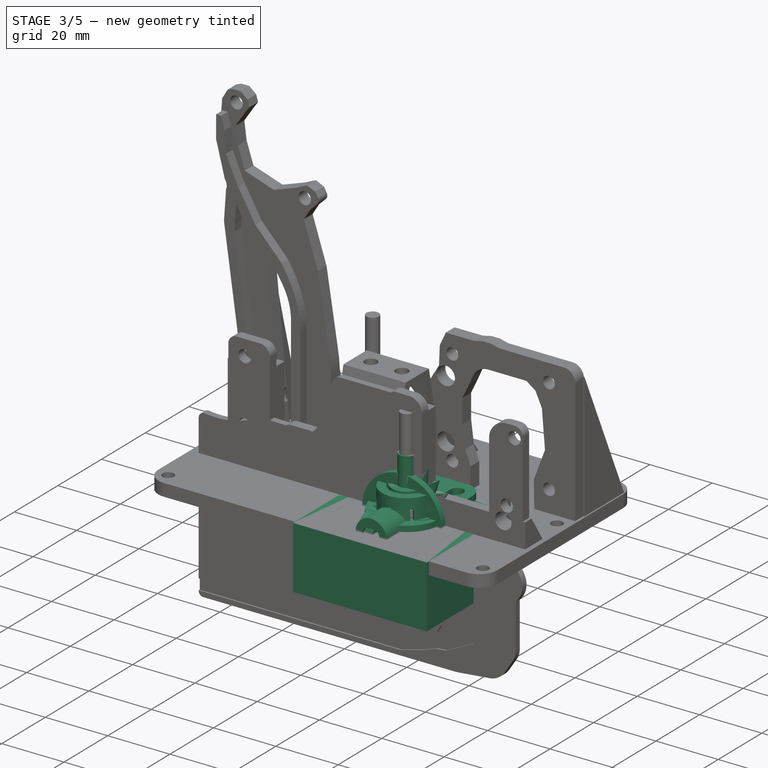
[diagram: stage 3 of 5 — iso view after this stage's code; geometry added in this stage tinted green]
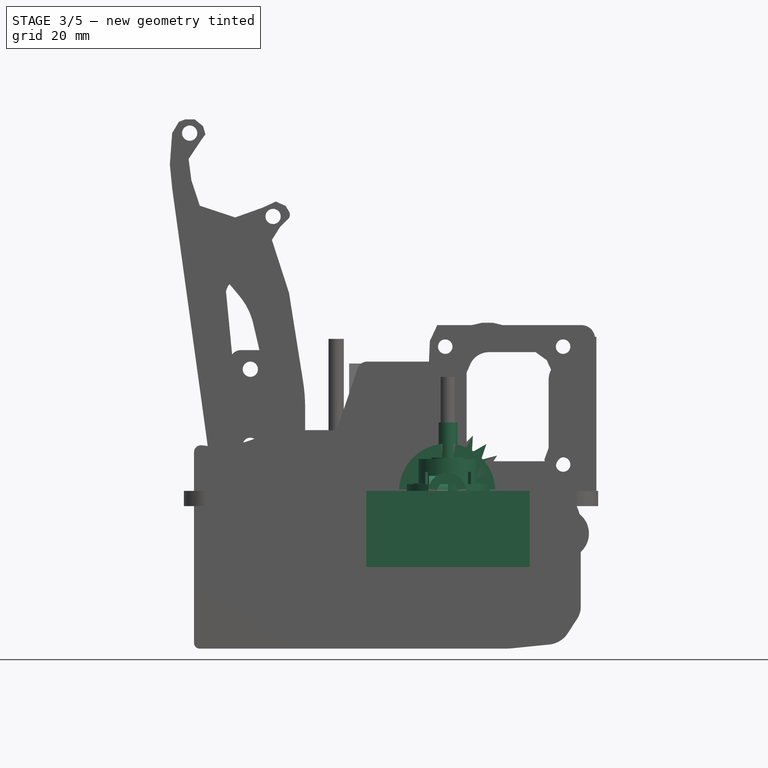
[diagram: stage 3 of 5 — front view after this stage's code; geometry added in this stage tinted green]
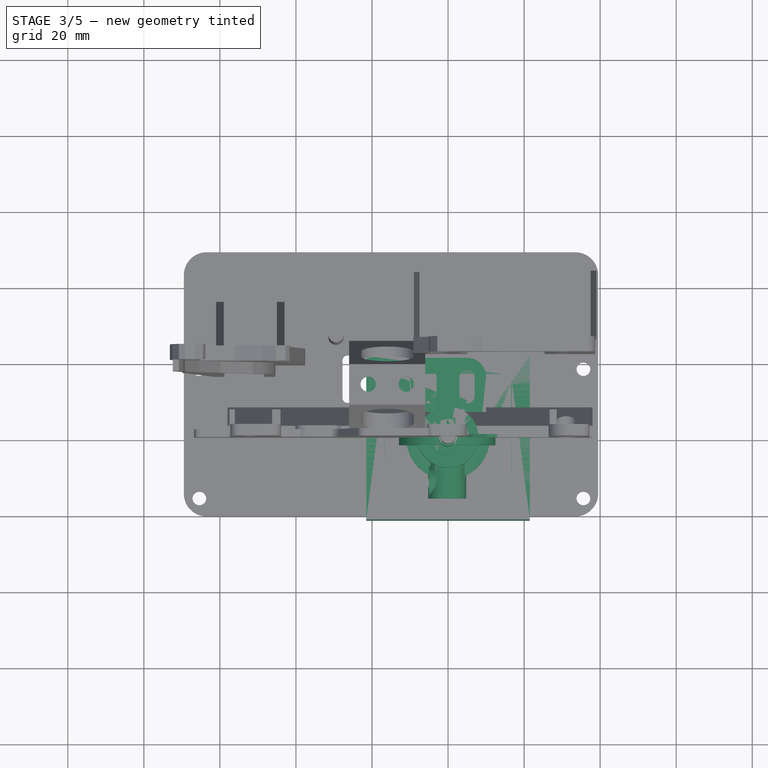
[diagram: stage 3 of 5 — top view after this stage's code; geometry added in this stage tinted green]
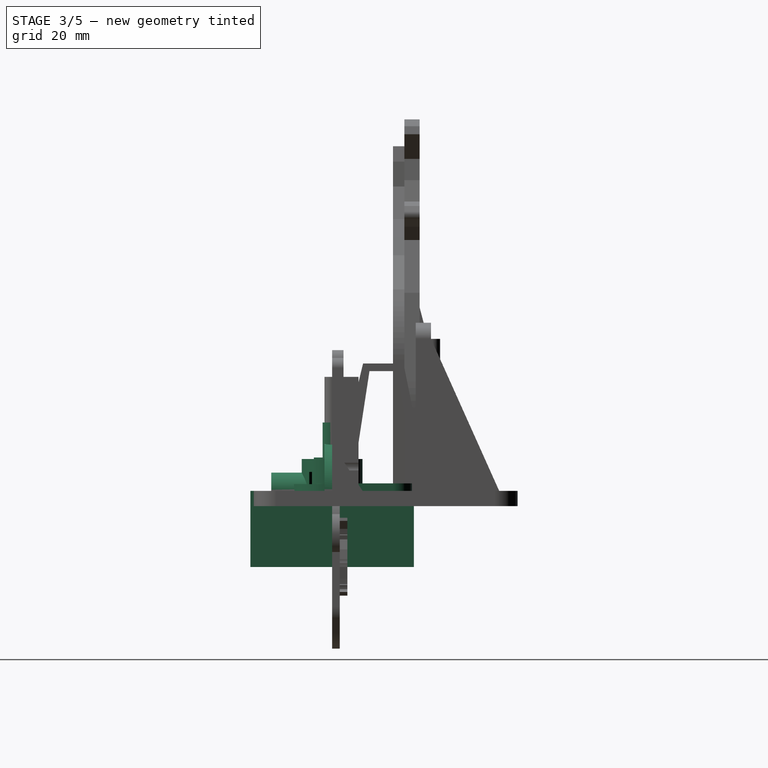
[diagram: stage 3 of 5 — right view after this stage's code; geometry added in this stage tinted green]
FEATURE [PartDesign::Body] Body003  label="CNZ1023"
  Group = -> [Sketch011,Pad007,Sketch012,Pad008]
  Origin = -> Origin003
  Placement = pos=(-16,-1,-1e-14) rot=(0.57735,-0.57735,0.57735;2.0944rad)
  Tip = -> Pad008
FEATURE [Sketcher::SketchObject] Sketch016
  MapMode = 5
  Placement = pos=(0,0,0) rot=(1,0,0;1.5708rad)
  Support = -> [XZ_Plane004]
  sketch-geometry (4):
    g0: ArcOfCircle CenterX=-0.221646 CenterY=-0.190659 CenterZ=0 NormalX=0 NormalY=0 NormalZ=1 AngleXU=0 Radius=2.65 StartAngle=2.31307 EndAngle=7.11171
    g1: Circle CenterX=-0.221646 CenterY=-0.190659 CenterZ=0 NormalX=0 NormalY=0 NormalZ=1 AngleXU=0 Radius=5
    g2: LineSegment StartX=-2.01296 StartY=1.76221 StartZ=0 EndX=1.56967 EndY=1.76221 EndZ=0
    g3: LineSegment [constr] StartX=-0.0983634 StartY=-2.83779 StartZ=0 EndX=4.69593 EndY=-2.83779 EndZ=0
  constraints (9):
    c: Coincident(g1,g0)
    c: Diameter(g0) = 5.3
    c: Diameter(g1) = 10
    c: Horizontal(g2)
    c: Coincident(g0,g2)
    c: Coincident(g0,g2)
    c: PointOnObject(g3,g0)
    c: Horizontal(g3)
    c: DistanceY(g3,g0) = 4.6
FEATURE [Sketcher::SketchObject] Sketch017
  MapMode = 5
  Placement = pos=(0,0,0) rot=(0.57735,0.57735,0.57735;2.0944rad)
  Support = -> [YZ_Plane004]
  sketch-geometry (1):
    g0: Circle CenterX=-11.9592 CenterY=-0.203845 CenterZ=0 NormalX=0 NormalY=0 NormalZ=1 AngleXU=0 Radius=1.525
  constraints (1):
    c: Diameter(g0) = 3.05
FEATURE [Sketcher::SketchObject] Sketch018
  MapMode = 5
  Placement = pos=(0,0,0) rot=(1,0,0;1.5708rad)
  Support = -> [XZ_Plane004]
  sketch-geometry (1):
    g0: Circle CenterX=-0.228433 CenterY=-0.202065 CenterZ=0 NormalX=0 NormalY=0 NormalZ=1 AngleXU=0 Radius=12.6716
FEATURE [Sketcher::SketchObject] Sketch021
  MapMode = 5
  Placement = pos=(0,0,0) rot=(0,0.707107,0.707107;3.14159rad)
  Support = -> [XZ_Plane004]
  sketch-geometry (54):
    g0: Circle [constr] CenterX=0 CenterY=0 CenterZ=0 NormalX=0 NormalY=0 NormalZ=1 AngleXU=0 Radius=15.9226
    g1: Circle [constr] CenterX=0 CenterY=0 CenterZ=0 NormalX=0 NormalY=0 NormalZ=1 AngleXU=0 Radius=11.9226
    g2: LineSegment [constr] StartX=11.9226 StartY=0 StartZ=0 EndX=15.9226 EndY=0 EndZ=0
    g3: LineSegment StartX=2.73786 StartY=11.604 StartZ=0 EndX=5.6479 EndY=14.8872 EndZ=0
    g4: LineSegment StartX=5.6479 StartY=14.8872 StartZ=0 EndX=5.6479 EndY=10.5 EndZ=0
    g5: LineSegment StartX=5.6479 StartY=10.5 StartZ=0 EndX=9.30856 EndY=12.9182 EndZ=0
    g6: LineSegment StartX=9.30856 StartY=12.9182 StartZ=0 EndX=8.17305 EndY=8.68041 EndZ=0
    g7: LineSegment StartX=8.17305 StartY=8.68041 StartZ=0 EndX=12.3349 EndY=10.0688 EndZ=0
    g8: LineSegment StartX=12.3349 StartY=10.0688 StartZ=0 EndX=10.1412 EndY=6.26929 EndZ=0
    g9: LineSegment StartX=10.1412 StartY=6.26929 StartZ=0 EndX=14.5205 EndY=6.5332 EndZ=0
    g10: LineSegment StartX=14.5205 StartY=6.5332 StartZ=0 EndX=11.4183 EndY=3.43093 EndZ=0
    g11: LineSegment StartX=11.4183 StartY=3.43093 StartZ=0 EndX=15.7167 EndY=2.5524 EndZ=0
    g12: LineSegment StartX=15.7167 StartY=2.5524 StartZ=0 EndX=11.9172 EndY=0.358758 EndZ=0
    g13: LineSegment StartX=11.9172 StartY=0.358758 StartZ=0 EndX=15.8418 EndY=-1.60235 EndZ=0
    g14: LineSegment StartX=15.8418 StartY=-1.60235 StartZ=0 EndX=11.604 EndY=-2.73786 EndZ=0
    g15: LineSegment StartX=11.604 StartY=-2.73786 StartZ=0 EndX=14.8872 EndY=-5.6479 EndZ=0
    g16: LineSegment StartX=14.8872 StartY=-5.6479 StartZ=0 EndX=10.5 EndY=-5.6479 EndZ=0
    g17: LineSegment StartX=10.5 StartY=-5.6479 StartZ=0 EndX=12.9182 EndY=-9.30856 EndZ=0
    g18: LineSegment StartX=12.9182 StartY=-9.30856 StartZ=0 EndX=8.68041 EndY=-8.17305 EndZ=0
    g19: LineSegment StartX=8.68041 StartY=-8.17305 StartZ=0 EndX=10.0688 EndY=-12.3349 EndZ=0
    g20: LineSegment StartX=10.0688 StartY=-12.3349 StartZ=0 EndX=6.26929 EndY=-10.1412 EndZ=0
    g21: LineSegment StartX=6.26929 StartY=-10.1412 StartZ=0 EndX=6.5332 EndY=-14.5205 EndZ=0
    g22: LineSegment StartX=6.5332 StartY=-14.5205 StartZ=0 EndX=3.43093 EndY=-11.4183 EndZ=0
    g23: LineSegment StartX=3.43093 StartY=-11.4183 StartZ=0 EndX=2.5524 EndY=-15.7167 EndZ=0
    g24: LineSegment StartX=2.5524 StartY=-15.7167 StartZ=0 EndX=0.358758 EndY=-11.9172 EndZ=0
    g25: LineSegment StartX=0.358758 StartY=-11.9172 StartZ=0 EndX=-1.60235 EndY=-15.8418 EndZ=0
    g26: LineSegment StartX=-1.60235 StartY=-15.8418 StartZ=0 EndX=-2.73786 EndY=-11.604 EndZ=0
    g27: LineSegment StartX=-2.73786 StartY=-11.604 StartZ=0 EndX=-5.6479 EndY=-14.8872 EndZ=0
    g28: LineSegment StartX=-5.6479 StartY=-14.8872 StartZ=0 EndX=-5.6479 EndY=-10.5 EndZ=0
    g29: LineSegment StartX=-5.6479 StartY=-10.5 StartZ=0 EndX=-9.30856 EndY=-12.9182 EndZ=0
    g30: LineSegment StartX=-9.30856 StartY=-12.9182 StartZ=0 EndX=-8.17305 EndY=-8.68041 EndZ=0
    g31: LineSegment StartX=-8.17305 StartY=-8.68041 StartZ=0 EndX=-12.3349 EndY=-10.0688 EndZ=0
    g32: LineSegment StartX=-12.3349 StartY=-10.0688 StartZ=0 EndX=-10.1412 EndY=-6.26929 EndZ=0
    g33: LineSegment StartX=-10.1412 StartY=-6.26929 StartZ=0 EndX=-14.5205 EndY=-6.5332 EndZ=0
    g34: LineSegment StartX=-14.5205 StartY=-6.5332 StartZ=0 EndX=-11.4183 EndY=-3.43093 EndZ=0
    g35: LineSegment StartX=-11.4183 StartY=-3.43093 StartZ=0 EndX=-15.7167 EndY=-2.5524 EndZ=0
    g36: LineSegment StartX=-15.7167 StartY=-2.5524 StartZ=0 EndX=-11.9172 EndY=-0.358758 EndZ=0
    g37: LineSegment StartX=-11.9172 StartY=-0.358758 StartZ=0 EndX=-15.8418 EndY=1.60235 EndZ=0
    g38: LineSegment StartX=-15.8418 StartY=1.60235 StartZ=0 EndX=-11.604 EndY=2.73786 EndZ=0
    g39: LineSegment StartX=-11.604 StartY=2.73786 StartZ=0 EndX=-14.8872 EndY=5.6479 EndZ=0
    g40: LineSegment StartX=-14.8872 StartY=5.6479 StartZ=0 EndX=-10.5 EndY=5.6479 EndZ=0
    g41: LineSegment StartX=-10.5 StartY=5.6479 StartZ=0 EndX=-12.9182 EndY=9.30856 EndZ=0
    g42: LineSegment StartX=1.60235 StartY=15.8418 StartZ=0 EndX=2.73786 EndY=11.604 EndZ=0
    g43: LineSegment StartX=-12.9182 StartY=9.30856 StartZ=0 EndX=-8.68041 EndY=8.17305 EndZ=0
    g44: LineSegment StartX=-8.68041 StartY=8.17305 StartZ=0 EndX=-10.0688 EndY=12.3349 EndZ=0
    g45: LineSegment StartX=-10.0688 StartY=12.3349 StartZ=0 EndX=-6.26929 EndY=10.1412 EndZ=0
    g46: LineSegment StartX=-6.26929 StartY=10.1412 StartZ=0 EndX=-6.5332 EndY=14.5205 EndZ=0
    g47: LineSegment StartX=-2.5524 StartY=15.7167 StartZ=0 EndX=-0.358758 EndY=11.9172 EndZ=0
    g48: LineSegment StartX=-0.358758 StartY=11.9172 StartZ=0 EndX=1.60235 EndY=15.8418 EndZ=0
    g49: LineSegment StartX=-6.5332 StartY=14.5205 StartZ=0 EndX=-3.43093 EndY=11.4183 EndZ=0
    g50: LineSegment StartX=-3.43093 StartY=11.4183 StartZ=0 EndX=-2.5524 EndY=15.7167 EndZ=0
    g51: Circle [constr] CenterX=0 CenterY=0 CenterZ=0 NormalX=0 NormalY=0 NormalZ=1 AngleXU=0 Radius=15.3226
    g52: LineSegment [constr] StartX=-15.9226 StartY=0 StartZ=0 EndX=-15.3226 EndY=0 EndZ=0
    g53: LineSegment [constr] StartX=-2.68126 StartY=15.0862 StartZ=0 EndX=1.31469 EndY=15.2661 EndZ=0
  constraints (164):
    c: Coincident(g0,g-1)
    c: Coincident(g1,g-1)
    c: PointOnObject(g2,g1)
    c: PointOnObject(g2,g0)
    c: Horizontal(g2)
    c: PointOnObject(g2,g-1)
    c: PointOnObject(g3,g1)
    c: PointOnObject(g3,g0)
    c: Coincident(g3,g4)
    c: PointOnObject(g4,g1)
    c: Coincident(g4,g5)
    c: PointOnObject(g5,g0)
    c: Coincident(g5,g6)
    c: PointOnObject(g6,g1)
    c: Coincident(g6,g7)
    c: PointOnObject(g7,g0)
    c: Coincident(g7,g8)
    c: PointOnObject(g8,g1)
    c: Coincident(g8,g9)
    c: PointOnObject(g9,g0)
    c: Coincident(g9,g10)
    c: PointOnObject(g10,g1)
    c: Coincident(g10,g11)
    c: PointOnObject(g11,g0)
    c: Coincident(g11,g12)
    c: PointOnObject(g12,g1)
    c: Coincident(g12,g13)
    c: PointOnObject(g13,g0)
    c: Coincident(g13,g14)
    c: PointOnObject(g14,g1)
    c: Coincident(g14,g15)
    c: PointOnObject(g15,g0)
    c: Coincident(g15,g16)
    c: PointOnObject(g16,g1)
    c: Horizontal(g16)
    c: Coincident(g16,g17)
    c: PointOnObject(g17,g0)
    c: Coincident(g17,g18)
    c: PointOnObject(g18,g1)
    c: Coincident(g18,g19)
    c: PointOnObject(g19,g0)
    c: Coincident(g19,g20)
    c: PointOnObject(g20,g1)
    c: Coincident(g20,g21)
    c: PointOnObject(g21,g0)
    c: Coincident(g21,g22)
    c: PointOnObject(g22,g1)
    c: Coincident(g22,g23)
    c: PointOnObject(g23,g0)
    c: Coincident(g23,g24)
    c: PointOnObject(g24,g1)
    c: Coincident(g24,g25)
    c: Coincident(g25,g26)
    c: PointOnObject(g26,g1)
    c: Coincident(g26,g27)
    c: PointOnObject(g27,g0)
    c: Coincident(g27,g28)
    c: PointOnObject(g28,g1)
    c: Coincident(g28,g29)
    c: PointOnObject(g29,g0)
    c: Coincident(g29,g30)
    c: Coincident(g30,g31)
    c: PointOnObject(g31,g0)
    c: Coincident(g31,g32)
    c: PointOnObject(g32,g1)
    c: Coincident(g32,g33)
    c: PointOnObject(g33,g0)
    c: Coincident(g33,g34)
    c: PointOnObject(g34,g1)
    c: Coincident(g34,g35)
    c: PointOnObject(g35,g0)
    c: Coincident(g35,g36)
    c: PointOnObject(g36,g1)
    c: Coincident(g36,g37)
    c: PointOnObject(g37,g0)
    c: Coincident(g37,g38)
    c: PointOnObject(g38,g1)
    c: Coincident(g38,g39)
    c: PointOnObject(g39,g0)
    c: Coincident(g39,g40)
    c: PointOnObject(g40,g1)
    c: Coincident(g40,g41)
    c: PointOnObject(g41,g0)
    c: PointOnObject(g47,g0)
    c: Coincident(g42,g3)
    c: PointOnObject(g30,g1)
    c: PointOnObject(g25,g0)
    c: Equal(g42,g3)
    c: Equal(g3,g4)
    c: Equal(g4,g5)
    c: Equal(g5,g6)
    c: Equal(g6,g7)
    c: Equal(g7,g8)
    c: Equal(g8,g9)
    c: Equal(g9,g10)
    c: Equal(g10,g11)
    c: Equal(g11,g12)
    c: Equal(g12,g13)
    c: Equal(g13,g14)
    c: Equal(g15,g16)
    c: Equal(g13,g12)
    c: Equal(g14,g15)
    c: Equal(g14,g13)
    c: Equal(g16,g17)
    c: Equal(g17,g18)
    c: Equal(g18,g19)
    c: Equal(g19,g20)
    c: Equal(g20,g21)
    c: Equal(g21,g22)
    c: Equal(g22,g23)
    c: Equal(g23,g24)
    c: Equal(g24,g25)
    c: Equal(g25,g26)
    c: Equal(g26,g27)
    c: Equal(g28,g27)
    c: Equal(g29,g30)
    c: Equal(g30,g31)
    c: Equal(g29,g28)
    c: Equal(g31,g32)
    c: Equal(g32,g33)
    c: Equal(g33,g34)
    c: Equal(g34,g35)
    c: Equal(g35,g36)
    c: Equal(g36,g37)
    c: Equal(g37,g38)
    c: Equal(g38,g39)
    c: Equal(g40,g39)
    c: Equal(g40,g41)
    c: Coincident(g41,g43)
    c: PointOnObject(g43,g1)
    c: Coincident(g43,g44)
    c: PointOnObject(g44,g0)
    c: Coincident(g44,g45)
    c: PointOnObject(g45,g1)
    c: Coincident(g45,g46)
    c: PointOnObject(g46,g0)
    c: Equal(g41,g43)
    c: Equal(g43,g44)
    c: Equal(g44,g45)
    c: Equal(g45,g46)
    c: PointOnObject(g47,g1)
    c: Coincident(g47,g48)
    c: Coincident(g48,g42)
    c: PointOnObject(g42,g0)
    c: Equal(g47,g48)
    c: Equal(g42,g48)
    c: Coincident(g46,g49)
    c: PointOnObject(g49,g1)
    c: Coincident(g49,g50)
    c: Equal(g46,g49)
    c: Equal(g49,g50)
    c: Coincident(g51,g-1)
    c: PointOnObject(g52,g0)
    c: PointOnObject(g52,g51)
    c: Horizontal(g52)
    c: PointOnObject(g52,g-1)
    c: DistanceX(g52,g52) = 0.6
    c: PointOnObject(g53,g48)
    c: PointOnObject(g53,g51)
    c: PointOnObject(g53,g51)
    c: Distance(g53) = 4
    c: Coincident(g50,g47)
    c: PointOnObject(g53,g50)
    c: DistanceX(g2,g2) = 4
FEATURE [PartDesign::Pad] Pad009
  Length = 0.8
  Length2 = 100
  Placement = pos=(0,0,0) rot=(1,0,0;1.5708rad)
  Profile = -> Sketch021
  Type = 0
FEATURE [PartDesign::Pad] Pad010
  BaseFeature = -> Pad009
  Length = 16
  Length2 = 100
  Placement = pos=(0,0,0) rot=(1,0,0;1.5708rad)
  Profile = -> Sketch016
  Type = 0
FEATURE [PartDesign::Body] Body012
  Group = -> [Sketch056,Pad036,Sketch057,Pad037]
  Origin = -> Origin012
  Placement = pos=(0,-16,0) rot=(0,0,1;0rad)
  Tip = -> Pad037
FEATURE [Part::Part2DObjectPython] Line002  # Draft 2D object (typed FeaturePython)
  ChamferSize = 0
  Closed = false
  End = (-4.63957,-1.98324e-06,16.6366)
  FilletRadius = 0
  Length = 24.2376
  MakeFace = false
  Placement = pos=(-8.97924,-18,0.996023) rot=(1,0,0;1.5708rad)
  Points = (2) [(0,0,0),(4.33967,15.6406,-18)]
  Start = (-8.97924,-18,0.996023)
  Subdivisions = 0
FEATURE [Part::Part2DObjectPython] Line  # Draft 2D object (typed FeaturePython)
  ChamferSize = 0
  Closed = false
  End = (-83.5072,-12,35.865)
  FilletRadius = 0
  Length = 80.6101
  MakeFace = false
  Placement = pos=(-5.67944,-2.22162e-06,18.6363) rot=(0,0,1;0rad)
  Points = (2) [(0,0,0),(-77.8278,-12,17.2287)]
  Start = (-5.67944,-2.22162e-06,18.6363)
  Subdivisions = 0
FEATURE [Part::Part2DObjectPython] Line003  # Draft 2D object (typed FeaturePython)
  ChamferSize = 0
  Closed = false
  End = (-80.9035,-12,44.4366)
  FilletRadius = 0
  Length = 80.4258
  MakeFace = false
  Placement = pos=(-5.67944,-2.22162e-06,18.6363) rot=(0,0,1;0rad)
  Points = (2) [(0,0,0),(-75.224,-12,25.8003)]
  Start = (-5.67944,-2.22162e-06,18.6363)
  Subdivisions = 0
FEATURE [Sketcher::SketchObject] Sketch060
  MapMode = 5
  Placement = pos=(0,0,0) rot=(0.57735,0.57735,0.57735;2.0944rad)
  Support = -> [YZ_Plane004]
  sketch-geometry (4):
    g0: ArcOfCircle CenterX=-11.1251 CenterY=-0.482249 CenterZ=0 NormalX=0 NormalY=0 NormalZ=1 AngleXU=0 Radius=4.45502 StartAngle=0.656323 EndAngle=5.58256
    g1: LineSegment StartX=-7.59563 StartY=2.23624 StartZ=0 EndX=0 EndY=2.23624 EndZ=0
    g2: LineSegment StartX=0 StartY=-3.35437 StartZ=0 EndX=-7.71948 EndY=-3.35437 EndZ=0
    g3: LineSegment StartX=0 StartY=2.23624 StartZ=0 EndX=0 EndY=-3.35437 EndZ=0
  constraints (8):
    c: Horizontal(g1)
    c: Horizontal(g2)
    c: PointOnObject(g2,g-2)
    c: Coincident(g3,g1)
    c: Coincident(g3,g2)
    c: Vertical(g3)
    c: Coincident(g1,g0)
    c: Coincident(g2,g0)
FEATURE [PartDesign::Pad] Pad039
  BaseFeature = -> Pad010
  Length = 5
  Length2 = 100
  Placement = pos=(0,0,0) rot=(1,0,0;1.5708rad)
  Profile = -> Sketch060
  Reversed = true
  Type = 0
FEATURE [PartDesign::Pad] Pad011
  BaseFeature = -> Pad039
  Length = 2
  Length2 = 100
  Placement = pos=(0,0,0) rot=(1,0,0;1.5708rad)
  Profile = -> Sketch018
  Type = 0
FEATURE [PartDesign::Pocket] Pocket003
  BaseFeature = -> Pad011
  Length = 9
  Length2 = 100
  Placement = pos=(0,0,0) rot=(1,0,0;1.5708rad)
  Profile = -> Sketch017
  Type = 0
FEATURE [PartDesign::Body] Body004  label="Wheel"
  Group = -> [Sketch016,Sketch017,Sketch018,Sketch021,Pad009,Pad010,Pad039,Pad011,Pocket003,Sketch053,Pocket010,Sketch060,Sketch061,Pocket012]
  Origin = -> Origin004
  Placement = pos=(14.7,-1,-19.3) rot=(0,0,1;3.14159rad)
  Tip = -> Pad010
FEATURE [Sketcher::SketchObject] Sketch064
  MapMode = 5
  Support = -> [XY_Plane013]
  sketch-geometry (14):
    g0: LineSegment StartX=-5 StartY=21 StartZ=0 EndX=5 EndY=21 EndZ=0
    g1: LineSegment StartX=10 StartY=16 StartZ=0 EndX=10 EndY=1 EndZ=0
    g2: LineSegment StartX=10 StartY=1 StartZ=0 EndX=-10 EndY=1 EndZ=0
    g3: LineSegment StartX=-10 StartY=1 StartZ=0 EndX=-10 EndY=16 EndZ=0
    g4: ArcOfCircle CenterX=-5 CenterY=16 CenterZ=0 NormalX=0 NormalY=0 NormalZ=1 AngleXU=0 Radius=2 StartAngle=4e-16 EndAngle=3.14159
    g5: ArcOfCircle CenterX=-5 CenterY=11 CenterZ=0 NormalX=0 NormalY=0 NormalZ=1 AngleXU=0 Radius=2 StartAngle=3.14159 EndAngle=6.28319
    g6: LineSegment StartX=-7 StartY=16 StartZ=0 EndX=-7 EndY=11 EndZ=0
    g7: LineSegment StartX=-3 StartY=16 StartZ=0 EndX=-3 EndY=11 EndZ=0
    g8: ArcOfCircle CenterX=5 CenterY=16 CenterZ=0 NormalX=0 NormalY=0 NormalZ=1 AngleXU=0 Radius=2 StartAngle=0 EndAngle=3.14159
    g9: ArcOfCircle CenterX=5 CenterY=11 CenterZ=0 NormalX=0 NormalY=0 NormalZ=1 AngleXU=0 Radius=2 StartAngle=3.14159 EndAngle=6.28319
    g10: LineSegment StartX=3 StartY=16 StartZ=0 EndX=3 EndY=11 EndZ=0
    g11: LineSegment StartX=7 StartY=16 StartZ=0 EndX=7 EndY=11 EndZ=0
    g12: ArcOfCircle CenterX=-5 CenterY=16 CenterZ=0 NormalX=0 NormalY=0 NormalZ=1 AngleXU=0 Radius=5 StartAngle=1.5708 EndAngle=3.14159
    g13: ArcOfCircle CenterX=5 CenterY=16 CenterZ=0 NormalX=0 NormalY=0 NormalZ=1 AngleXU=0 Radius=5 StartAngle=0 EndAngle=1.5708
  constraints (32):
    c: Coincident(g1,g2)
    c: Coincident(g2,g3)
    c: Horizontal(g2)
    c: Vertical(g1)
    c: Vertical(g3)
    c: DistanceY(g-1,g1) = 1
    c: Tangent(g4,g7) = 1.5708
    c: Tangent(g4,g6) = -1.5708
    c: Tangent(g6,g5) = -1.5708
    c: Tangent(g7,g5) = 1.5708
    c: Vertical(g6)
    c: Equal(g4,g5)
    c: Tangent(g8,g11) = 1.5708
    c: Tangent(g8,g10) = -1.5708
    c: Tangent(g10,g9) = -1.5708
    c: Tangent(g11,g9) = 1.5708
    c: Vertical(g10)
    c: DistanceX(g4,g8) = 10
    c: DistanceX(g4,g4) = 4
    c: Symmetric(g4,g8,g-2)
    c: Symmetric(g5,g9,g-2)
    c: Equal(g4,g8)
    c: DistanceY(g9,g8) = 5
    c: Tangent(g3,g12) = 1.5708
    c: Tangent(g0,g12) = 1.5708
    c: Tangent(g0,g13) = 1.5708
    c: Tangent(g1,g13) = 1.5708
    c: DistanceX(g3,g1) = 20
    c: Horizontal(g0)
    c: Symmetric(g3,g1,g-2)
    c: DistanceY(g1,g0) = 20
    c: Coincident(g13,g8)
FEATURE [Sketcher::SketchObject] Sketch065
  MapMode = 5
  Support = -> [XY_Plane013]
  sketch-geometry (8):
    g0: ArcOfCircle CenterX=-6 CenterY=1.5 CenterZ=0 NormalX=0 NormalY=0 NormalZ=1 AngleXU=0 Radius=3 StartAngle=5e-16 EndAngle=3.14159
    g1: ArcOfCircle CenterX=-6 CenterY=-1.5 CenterZ=0 NormalX=0 NormalY=0 NormalZ=1 AngleXU=0 Radius=3 StartAngle=3.14159 EndAngle=6.28319
    g2: LineSegment StartX=-9 StartY=1.5 StartZ=0 EndX=-9 EndY=-1.5 EndZ=0
    g3: LineSegment StartX=-3 StartY=1.5 StartZ=0 EndX=-3 EndY=-1.5 EndZ=0
    g4: ArcOfCircle CenterX=6 CenterY=1.5 CenterZ=0 NormalX=0 NormalY=0 NormalZ=1 AngleXU=0 Radius=3 StartAngle=1e-16 EndAngle=3.14159
    g5: ArcOfCircle CenterX=6 CenterY=-1.5 CenterZ=0 NormalX=0 NormalY=0 NormalZ=1 AngleXU=0 Radius=3 StartAngle=3.14159 EndAngle=6.28319
    g6: LineSegment StartX=3 StartY=1.5 StartZ=0 EndX=3 EndY=-1.5 EndZ=0
    g7: LineSegment StartX=9 StartY=1.5 StartZ=0 EndX=9 EndY=-1.5 EndZ=0
  constraints (19):
    c: Tangent(g0,g3) = 1.5708
    c: Tangent(g0,g2) = -1.5708
    c: Tangent(g2,g1) = -1.5708
    c: Tangent(g3,g1) = 1.5708
    c: Vertical(g2)
    c: Equal(g0,g1)
    c: Tangent(g4,g7) = 1.5708
    c: Tangent(g4,g6) = -1.5708
    c: Tangent(g6,g5) = -1.5708
    c: Tangent(g7,g5) = 1.5708
    c: Vertical(g6)
    c: Equal(g4,g5)
    c: DistanceY(g-1,g4) = 1.5
    c: Diameter(g0) = 6
    c: Equal(g0,g4)
    c: Equal(g7,g3)
    c: DistanceY(g7,g7) = 3
    c: DistanceX(g0,g4) = 12
    c: Symmetric(g0,g4,g-2)
FEATURE [Sketcher::SketchObject] Sketch066
  MapMode = 5
  Support = -> [XY_Plane013]
  sketch-geometry (8):
    g0: ArcOfCircle CenterX=-6 CenterY=1.5 CenterZ=0 NormalX=0 NormalY=0 NormalZ=1 AngleXU=0 Radius=1.8 StartAngle=2e-16 EndAngle=3.14159
    g1: ArcOfCircle CenterX=-6 CenterY=-1.5 CenterZ=0 NormalX=0 NormalY=0 NormalZ=1 AngleXU=0 Radius=1.8 StartAngle=3.14159 EndAngle=6.28319
    g2: LineSegment StartX=-7.8 StartY=1.5 StartZ=0 EndX=-7.8 EndY=-1.5 EndZ=0
    g3: LineSegment StartX=-4.2 StartY=1.5 StartZ=0 EndX=-4.2 EndY=-1.5 EndZ=0
    g4: ArcOfCircle CenterX=6 CenterY=1.5 CenterZ=0 NormalX=0 NormalY=0 NormalZ=1 AngleXU=0 Radius=1.8 StartAngle=1e-16 EndAngle=3.14159
    g5: ArcOfCircle CenterX=6 CenterY=-1.5 CenterZ=0 NormalX=0 NormalY=0 NormalZ=1 AngleXU=0 Radius=1.8 StartAngle=3.14159 EndAngle=6.28319
    g6: LineSegment StartX=4.2 StartY=1.5 StartZ=0 EndX=4.2 EndY=-1.5 EndZ=0
    g7: LineSegment StartX=7.8 StartY=1.5 StartZ=0 EndX=7.8 EndY=-1.5 EndZ=0
  constraints (19):
    c: Tangent(g0,g3) = 1.5708
    c: Tangent(g0,g2) = -1.5708
    c: Tangent(g2,g1) = -1.5708
    c: Tangent(g3,g1) = 1.5708
    c: Vertical(g2)
    c: Equal(g0,g1)
    c: Tangent(g4,g7) = 1.5708
    c: Tangent(g4,g6) = -1.5708
    c: Tangent(g6,g5) = -1.5708
    c: Tangent(g7,g5) = 1.5708
    c: Vertical(g6)
    c: Equal(g4,g5)
    c: DistanceY(g-1,g4) = 1.5
    c: DistanceX(g0,g4) = 12
    c: Diameter(g0) = 3.6
    c: Equal(g0,g4)
    c: Equal(g3,g7)
    c: DistanceY(g7,g7) = 3
    c: Symmetric(g0,g4,g-2)
FEATURE [PartDesign::Pad] Pad041
  Length = 2
  Length2 = 100
  Profile = -> Sketch064
  Type = 0
FEATURE [PartDesign::Pad] Pad042
  BaseFeature = -> Pad041
  Length = 2
  Length2 = 100
  Profile = -> Sketch065
  Type = 0
FEATURE [PartDesign::Pocket] Pocket014
  BaseFeature = -> Pad042
  Length = 5
  Length2 = 100
  Profile = -> Sketch066
  Reversed = true
  Type = 1
FEATURE [Sketcher::SketchObject] Sketch071
  MapMode = 5
  Placement = pos=(0,0,0) rot=(1,0,0;1.5708rad)
  Support = -> [XZ_Plane015]
  sketch-geometry (6):
    g0: LineSegment StartX=0 StartY=5.1 StartZ=0 EndX=6 EndY=5.1 EndZ=0
    g1: LineSegment StartX=6 StartY=5.1 StartZ=0 EndX=6 EndY=7 EndZ=0
    g2: LineSegment StartX=6 StartY=7 StartZ=0 EndX=4.8 EndY=7 EndZ=0
    g3: LineSegment StartX=4.8 StartY=7 StartZ=0 EndX=4.8 EndY=8.8 EndZ=0
    g4: LineSegment StartX=4.8 StartY=8.8 StartZ=0 EndX=0 EndY=8.8 EndZ=0
    g5: LineSegment StartX=0 StartY=8.8 StartZ=0 EndX=0 EndY=5.1 EndZ=0
  constraints (18):
    c: PointOnObject(g0,g-2)
    c: Horizontal(g0)
    c: Coincident(g0,g1)
    c: Vertical(g1)
    c: Coincident(g1,g2)
    c: Horizontal(g2)
    c: Coincident(g2,g3)
    c: Vertical(g3)
    c: Coincident(g3,g4)
    c: PointOnObject(g4,g-2)
    c: Horizontal(g4)
    c: Coincident(g4,g5)
    c: Coincident(g5,g0)
    c: DistanceX(g0,g0) = 6
    c: DistanceY(g-1,g0) = 5.1
    c: DistanceY(g5,g5) = 3.7
    c: DistanceY(g1,g1) = 1.9
    c: DistanceX(g4,g4) = 4.8
FEATURE [PartDesign::Revolution] Revolution001
  Angle = 360
  Axis = (0,-2e-16,1)
  Base = (0,0,0)
  Placement = pos=(0,0,0) rot=(1,0,0;1.5708rad)
  Profile = -> Sketch071
  ReferenceAxis = -> Sketch071 [V_Axis]
  Reversed = true
FEATURE [PartDesign::Body] Body015
  Group = -> [Sketch071,Revolution001]
  Origin = -> Origin015
  Placement = pos=(-88,12,4) rot=(0,0,1;0rad)
  Tip = -> Revolution001
FEATURE [Sketcher::SketchObject] Sketch072
  MapMode = 5
  Placement = pos=(0,0,0) rot=(1,0,0;1.5708rad)
  Support = -> [XZ_Plane016]
  sketch-geometry (12):
    g0: LineSegment StartX=5.32173 StartY=8.4 StartZ=0 EndX=5.32173 EndY=7.169 EndZ=0
    g1: LineSegment StartX=5.32173 StartY=7.169 StartZ=0 EndX=6.31584 EndY=7.169 EndZ=0
    g2: LineSegment StartX=6.31584 StartY=7.169 StartZ=0 EndX=6.31584 EndY=4.11532 EndZ=0
    g3: LineSegment StartX=6.31584 StartY=4.11532 StartZ=0 EndX=6.434 EndY=4.11532 EndZ=0
    g4: LineSegment StartX=6.434 StartY=4.11532 StartZ=0 EndX=6.6336 EndY=2.43033 EndZ=0
    g5: LineSegment StartX=6.6336 StartY=2.43033 StartZ=0 EndX=6.33612 EndY=1.24082 EndZ=0
    g6: LineSegment StartX=6.33612 StartY=1.24082 StartZ=0 EndX=6.62134 EndY=0.904052 EndZ=0
    g7: LineSegment StartX=8 StartY=0.193016 StartZ=0 EndX=8 EndY=8.4 EndZ=0
    g8: LineSegment StartX=8 StartY=8.4 StartZ=0 EndX=5.32173 EndY=8.4 EndZ=0
    g9: LineSegment StartX=8 StartY=0.193016 StartZ=0 EndX=6.72555 EndY=0.193016 EndZ=0
    g10: LineSegment StartX=6.72555 StartY=0.193016 StartZ=0 EndX=6.62134 EndY=0.689515 EndZ=0
    g11: LineSegment StartX=6.62134 StartY=0.689515 StartZ=0 EndX=6.62134 EndY=0.904052 EndZ=0
  constraints (23):
    c: Vertical(g0)
    c: Coincident(g0,g1)
    c: Horizontal(g1)
    c: Coincident(g1,g2)
    c: Vertical(g2)
    c: Coincident(g2,g3)
    c: Horizontal(g3)
    c: Coincident(g3,g4)
    c: Coincident(g4,g5)
    c: Coincident(g5,g6)
    c: Vertical(g7)
    c: Coincident(g7,g8)
    c: Coincident(g8,g0)
    c: Horizontal(g8)
    c: DistanceX(g-1,g7) = 8
    c: Coincident(g7,g9)
    c: Horizontal(g9)
    c: Coincident(g9,g10)
    c: Coincident(g10,g11)
    c: Coincident(g11,g6)
    c: Vertical(g11)
    c: DistanceX(g4,g7) = 1.3664
    c: DistanceY(g-1,g7) = 8.4
FEATURE [PartDesign::Revolution] Revolution005
  Angle = 360
  Axis = (0,-2e-16,1)
  Base = (0,0,0)
  Placement = pos=(0,0,0) rot=(1,0,0;1.5708rad)
  Profile = -> Sketch072
  ReferenceAxis = -> Sketch072 [V_Axis]
  Reversed = true
FEATURE [Sketcher::SketchObject] Sketch073
  MapMode = 5
  Placement = pos=(0,0,0) rot=(1,0,0;1.5708rad)
  Support = -> [XZ_Plane016]
  sketch-geometry (4):
    g0: LineSegment StartX=6.18889 StartY=5.00343 StartZ=0 EndX=8.68999 EndY=5.00343 EndZ=0
    g1: LineSegment StartX=8.68999 StartY=5.00343 StartZ=0 EndX=8.68999 EndY=0 EndZ=0
    g2: LineSegment StartX=8.68999 StartY=0 StartZ=0 EndX=6.18889 EndY=0 EndZ=0
    g3: LineSegment StartX=6.18889 StartY=0 StartZ=0 EndX=6.18889 EndY=5.00343 EndZ=0
  constraints (9):
    c: Coincident(g0,g1)
    c: Coincident(g1,g2)
    c: Coincident(g2,g3)
    c: Coincident(g3,g0)
    c: Horizontal(g0)
    c: Horizontal(g2)
    c: Vertical(g1)
    c: Vertical(g3)
    c: PointOnObject(g1,g-1)
FEATURE [PartDesign::Pocket] Pocket017
  BaseFeature = -> Revolution005
  Length = 1
  Length2 = 100
  Midplane = true
  Placement = pos=(0,0,0) rot=(1,0,0;1.5708rad)
  Profile = -> Sketch073
  Type = 0
FEATURE [PartDesign::PolarPattern] PolarPattern
  Angle = 360
  Axis = -> Sketch073 [V_Axis]
  BaseFeature = -> Pocket017
  Occurrences = 8
  Originals = -> [Pocket017]
  Placement = pos=(0,0,0) rot=(1,0,0;1.5708rad)
FEATURE [Sketcher::SketchObject] Sketch075
  AttachmentOffset = pos=(0,0,7) rot=(0,0,1;0rad)
  MapMode = 5
  Placement = pos=(0,-7,-1.6e-15) rot=(1,0,0;1.5708rad)
  Support = -> [XZ_Plane014]
  sketch-geometry (9):
    g0: LineSegment StartX=-0.870914 StartY=-13.4879 StartZ=0 EndX=7.02638 EndY=-13.4879 EndZ=0
    g1: LineSegment StartX=3.38985 StartY=-1.50969 StartZ=0 EndX=-1.83499 EndY=-1.50969 EndZ=0
    g2: LineSegment StartX=-1.83499 StartY=-1.50969 StartZ=0 EndX=-1.83499 EndY=-12.5238 EndZ=0
    g3: ArcOfCircle CenterX=-0.870914 CenterY=-12.5238 CenterZ=0 NormalX=0 NormalY=0 NormalZ=1 AngleXU=0 Radius=0.964074 StartAngle=3.14159 EndAngle=4.71239
    g4: ArcOfCircle CenterX=7.02638 CenterY=-12.6611 CenterZ=0 NormalX=0 NormalY=0 NormalZ=1 AngleXU=0 Radius=0.82671 StartAngle=4.71239 EndAngle=6.28319
    g5: Circle CenterX=2.11236 CenterY=-9.06964 CenterZ=0 NormalX=0 NormalY=0 NormalZ=1 AngleXU=0 Radius=2.70069
    g6: LineSegment StartX=3.38985 StartY=-1.50969 StartZ=0 EndX=3.38985 EndY=-3.28792 EndZ=0
    g7: LineSegment StartX=3.38985 StartY=-3.28792 StartZ=0 EndX=7.85309 EndY=-7.28755 EndZ=0
    g8: LineSegment StartX=7.85309 StartY=-7.28755 StartZ=0 EndX=7.85309 EndY=-12.6611 EndZ=0
  constraints (14):
    c: Coincident(g1,g2)
    c: Horizontal(g0)
    c: Horizontal(g1)
    c: Vertical(g2)
    c: Tangent(g2,g3) = -1.5708
    c: Tangent(g0,g3) = -1.5708
    c: Tangent(g0,g4) = -1.5708
    c: Coincident(g1,g6)
    c: Vertical(g6)
    c: Coincident(g6,g7)
    c: Coincident(g7,g8)
    c: Coincident(g8,g4)
    c: Vertical(g8)
    c: Tangent(g4,g8)
FEATURE [Sketcher::SketchObject] Sketch237
  MapMode = 5
  Support = -> [XY_Plane017]
  sketch-geometry (4):
    g0: LineSegment StartX=-21.5 StartY=21.5 StartZ=0 EndX=21.5 EndY=21.5 EndZ=0
    g1: LineSegment StartX=21.5 StartY=21.5 StartZ=0 EndX=21.5 EndY=-21.5 EndZ=0
    g2: LineSegment StartX=21.5 StartY=-21.5 StartZ=0 EndX=-21.5 EndY=-21.5 EndZ=0
    g3: LineSegment StartX=-21.5 StartY=-21.5 StartZ=0 EndX=-21.5 EndY=21.5 EndZ=0
  constraints (10):
    c: Coincident(g0,g1)
    c: Coincident(g1,g2)
    c: Coincident(g2,g3)
    c: Coincident(g3,g0)
    c: Horizontal(g2)
    c: Vertical(g3)
    c: DistanceX(g0,g0) = 43
    c: DistanceY(g1,g1) = 43
    c: Symmetric(g0,g0,g-2)
    c: Symmetric(g0,g1,g-1)
FEATURE [Sketcher::SketchObject] Sketch240
  MapMode = 5
  Support = -> [XY_Plane017]
  sketch-geometry (4):
    g0: Circle CenterX=15.5 CenterY=15.5 CenterZ=0 NormalX=0 NormalY=0 NormalZ=1 AngleXU=0 Radius=1.5
    g1: Circle CenterX=-15.5 CenterY=15.5 CenterZ=0 NormalX=0 NormalY=0 NormalZ=1 AngleXU=0 Radius=1.5
    g2: Circle CenterX=-15.5 CenterY=-15.5 CenterZ=0 NormalX=0 NormalY=0 NormalZ=1 AngleXU=0 Radius=1.5
    g3: Circle CenterX=15.5 CenterY=-15.5 CenterZ=0 NormalX=0 NormalY=0 NormalZ=1 AngleXU=0 Radius=1.5
  constraints (9):
    c: Diameter(g0) = 3
    c: Diameter(g1) = 3
    c: Diameter(g2) = 3
    c: Diameter(g3) = 3
    c: Symmetric(g1,g0,g-2)
    c: Symmetric(g0,g3,g-1)
    c: Symmetric(g3,g2,g-2)
    c: DistanceX(g1,g0) = 31
    c: DistanceY(g3,g0) = 31
FEATURE [Sketcher::SketchObject] Sketch238
  MapMode = 5
  Support = -> [XY_Plane017]
  sketch-geometry (1):
    g0: Circle CenterX=0 CenterY=0 CenterZ=0 NormalX=0 NormalY=0 NormalZ=1 AngleXU=0 Radius=11
  constraints (2):
    c: Coincident(g0,g-1)
    c: Diameter(g0) = 22
FEATURE [Sketcher::SketchObject] Sketch239
  MapMode = 5
  Support = -> [XY_Plane017]
  sketch-geometry (1):
    g0: Circle CenterX=0 CenterY=0 CenterZ=0 NormalX=0 NormalY=0 NormalZ=1 AngleXU=0 Radius=2.5
  constraints (2):
    c: Coincident(g0,g-1)
    c: Diameter(g0) = 5
FEATURE [PartDesign::Pad] Pad050
  Length = 20
  Length2 = 100
  Profile = -> Sketch237
  Reversed = true
  Type = 0
FEATURE [PartDesign::Pad] Pad048
  BaseFeature = -> Pad050
  Length = 1.8
  Length2 = 100
  Profile = -> Sketch238
  Type = 0
FEATURE [PartDesign::Pad] Pad049
  BaseFeature = -> Pad048
  Length = 18
  Length2 = 100
  Profile = -> Sketch239
  Type = 0
FEATURE [PartDesign::Pocket] Pocket019
  BaseFeature = -> Pad049
  Length = 5
  Length2 = 100
  Profile = -> Sketch240
  Type = 0
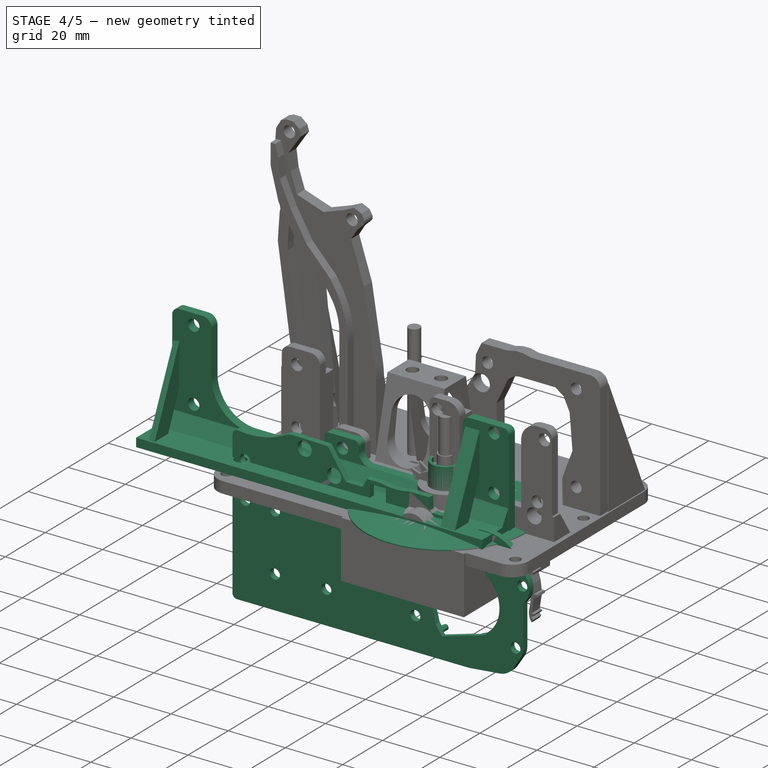
[diagram: stage 4 of 5 — iso view after this stage's code; geometry added in this stage tinted green]
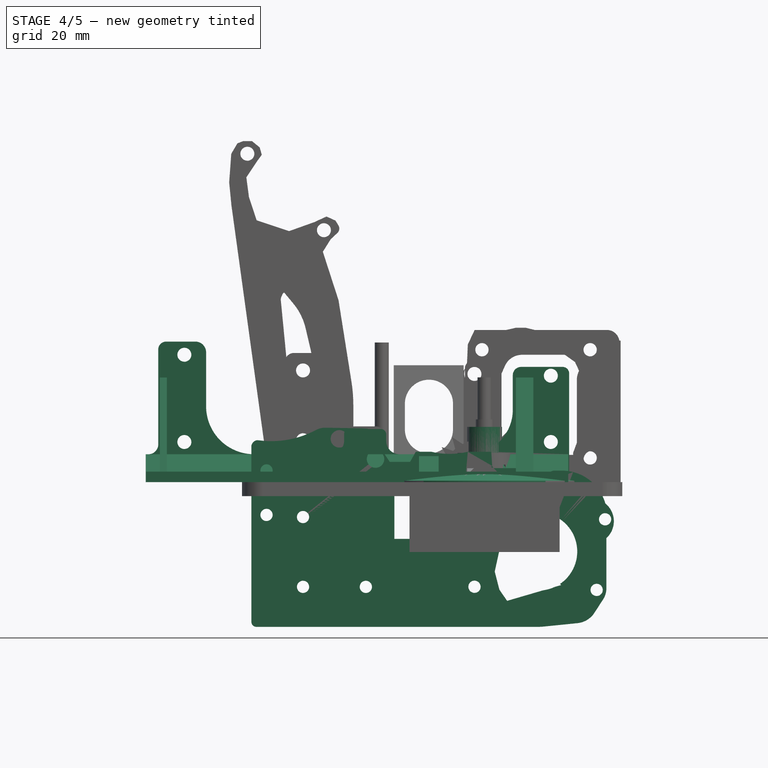
[diagram: stage 4 of 5 — front view after this stage's code; geometry added in this stage tinted green]
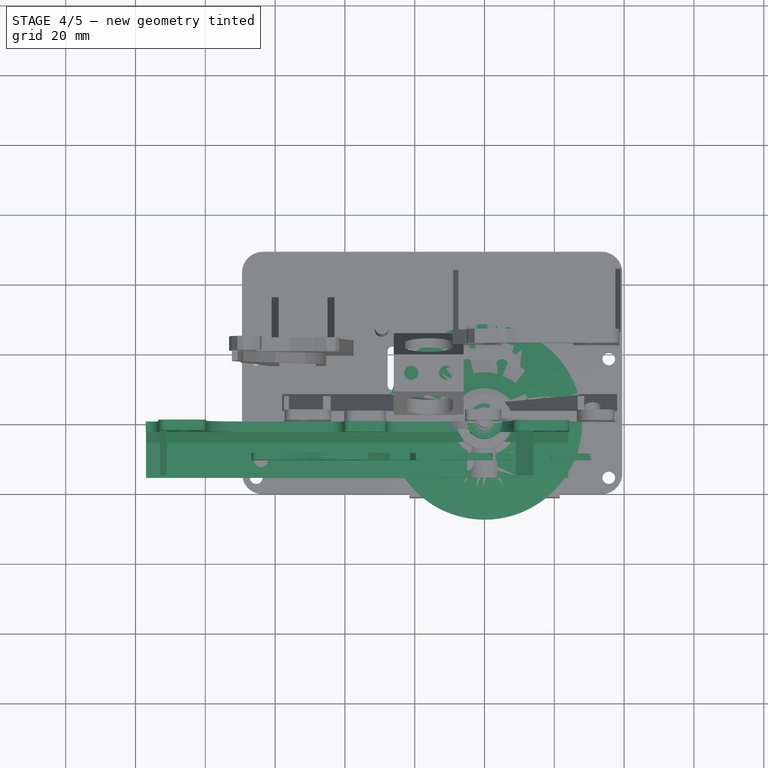
[diagram: stage 4 of 5 — top view after this stage's code; geometry added in this stage tinted green]
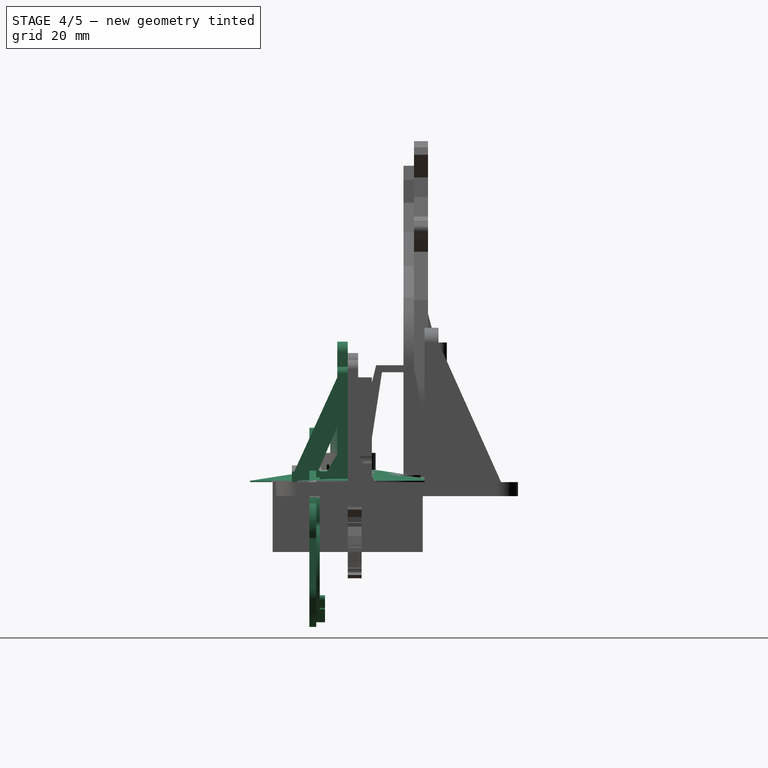
[diagram: stage 4 of 5 — right view after this stage's code; geometry added in this stage tinted green]
FEATURE [PartDesign::Body] Body006  label="TensionSensor"
  Group = -> [Sketch024,Pad012,Sketch025,Pad013,Sketch026,Pad014,Sketch027,Pad015]
  Origin = -> Origin006
  Placement = pos=(-10,10,31) rot=(0,-1,0;0.392699rad)
  Tip = -> Pad015
FEATURE [Sketcher::SketchObject] Sketch028
  MapMode = 5
  Support = -> [XY_Plane008]
  sketch-geometry (6):
    g0: LineSegment StartX=-18.5 StartY=4 StartZ=0 EndX=18.5 EndY=4 EndZ=0
    g1: LineSegment StartX=18.5 StartY=4 StartZ=0 EndX=18.5 EndY=-4 EndZ=0
    g2: LineSegment StartX=-18.5 StartY=-4 StartZ=0 EndX=-18.5 EndY=4 EndZ=0
    g3: LineSegment StartX=18.5 StartY=-4 StartZ=0 EndX=-18.5 EndY=-4 EndZ=0
    g4: Circle CenterX=15.4564 CenterY=0 CenterZ=0 NormalX=0 NormalY=0 NormalZ=1 AngleXU=0 Radius=1.75
    g5: Circle CenterX=-15.5436 CenterY=0 CenterZ=0 NormalX=0 NormalY=0 NormalZ=1 AngleXU=0 Radius=1.75
  constraints (14):
    c: Coincident(g3,g2)
    c: Coincident(g2,g0)
    c: Vertical(g2)
    c: DistanceY(g2,g2) = 8
    c: DistanceX(g0,g1) = 37
    c: Symmetric(g0,g1,g-2)
    c: Symmetric(g1,g1,g-1)
    c: PointOnObject(g4,g-1)
    c: PointOnObject(g5,g-1)
    c: Diameter(g4) = 3.5
    c: Equal(g4,g5)
    c: DistanceX(g5,g4) = 31
    c: Coincident(g0,g1)
    c: Coincident(g3,g1)
FEATURE [Sketcher::SketchObject] Sketch029
  MapMode = 5
  Support = -> [XY_Plane008]
  sketch-geometry (5):
    g0: ArcOfCircle CenterX=0 CenterY=0 CenterZ=0 NormalX=0 NormalY=0 NormalZ=1 AngleXU=0 Radius=12.5 StartAngle=2.77131 EndAngle=5.43295
    g1: ArcOfCircle CenterX=0 CenterY=0 CenterZ=0 NormalX=0 NormalY=0 NormalZ=1 AngleXU=0 Radius=12.5 StartAngle=5.91169 EndAngle=8.57333
    g2: LineSegment [constr] StartX=10.3292 StartY=-7.23259 StartZ=0 EndX=-10.2394 EndY=7.16971 EndZ=0
    g3: ArcOfCircle CenterX=10.3292 CenterY=-7.23259 CenterZ=0 NormalX=0 NormalY=0 NormalZ=1 AngleXU=0 Radius=3 StartAngle=3.94555 EndAngle=7.39909
    g4: ArcOfCircle CenterX=-10.2394 CenterY=7.16971 CenterZ=0 NormalX=0 NormalY=0 NormalZ=1 AngleXU=0 Radius=3 StartAngle=0.839641 EndAngle=4.22181
  constraints (15):
    c: Diameter(g1) = 25
    c: Diameter(g0) = 25
    c: Coincident(g1,g0)
    c: Coincident(g-1,g0)
    c: PointOnObject(g0,g2)
    c: Angle(g2,g-2) = -0.959931
    c: Radius(g4) = 3
    c: Radius(g3) = 3
    c: Coincident(g0,g3)
    c: PointOnObject(g4,g1)
    c: Coincident(g1,g4)
    c: Coincident(g2,g4)
    c: Coincident(g3,g2)
    c: Coincident(g0,g4)
    c: Coincident(g3,g1)
FEATURE [PartDesign::Pad] Pad016
  Length = 3
  Length2 = 100
  Profile = -> Sketch028
  Reversed = true
  Type = 0
FEATURE [Sketcher::SketchObject] Sketch037
  AttachmentOffset = pos=(0,0,-26) rot=(0,0,1;0rad)
  MapMode = 5
  Placement = pos=(0,26,5.8e-15) rot=(1,0,0;1.5708rad)
  Support = -> [XZ_Plane010]
  sketch-geometry (36):
    g0: LineSegment [constr] StartX=-0.73966 StartY=37.9397 StartZ=0 EndX=30.2603 EndY=37.9397 EndZ=0
    g1: LineSegment [constr] StartX=30.2603 StartY=37.9397 StartZ=0 EndX=30.2603 EndY=6.9397 EndZ=0
    g2: LineSegment [constr] StartX=30.2603 StartY=6.9397 StartZ=0 EndX=-0.73966 EndY=6.9397 EndZ=0
    g3: LineSegment [constr] StartX=-0.73966 StartY=6.9397 StartZ=0 EndX=-0.73966 EndY=37.9397 EndZ=0
    g4: Circle CenterX=30.2603 CenterY=37.9397 CenterZ=0 NormalX=0 NormalY=0 NormalZ=1 AngleXU=0 Radius=1.9
    g5: Circle CenterX=-0.73966 CenterY=6.9397 CenterZ=0 NormalX=0 NormalY=0 NormalZ=1 AngleXU=0 Radius=1.9
    g6: Circle CenterX=-0.73966 CenterY=37.9397 CenterZ=0 NormalX=0 NormalY=0 NormalZ=1 AngleXU=0 Radius=1.9
    g7: Circle CenterX=30.2603 CenterY=6.9397 CenterZ=0 NormalX=0 NormalY=0 NormalZ=1 AngleXU=0 Radius=1.9
    g8: LineSegment StartX=25.9328 StartY=34.4042 StartZ=0 EndX=23.0194 EndY=36.4911 EndZ=0
    g9: LineSegment StartX=23.0194 StartY=36.4911 StartZ=0 EndX=10.7788 EndY=36.4911 EndZ=0
    g10: LineSegment StartX=5.80491 StartY=33.2286 StartZ=0 EndX=4.76742 EndY=30.8397 EndZ=0
    g11: LineSegment StartX=4.76742 StartY=30.8397 StartZ=0 EndX=2.48165 EndY=26.1116 EndZ=0
    g12: LineSegment StartX=2.48165 StartY=26.1116 StartZ=0 EndX=2.48165 EndY=18.3852 EndZ=0
    g13: LineSegment StartX=2.48165 StartY=18.3852 StartZ=0 EndX=3.34997 EndY=11.423 EndZ=0
    g14: LineSegment StartX=3.34997 StartY=11.423 StartZ=0 EndX=5.08592 EndY=6.90175 EndZ=0
    g15: LineSegment StartX=5.08592 StartY=6.90175 StartZ=0 EndX=5.08592 EndY=0 EndZ=0
    g16: LineSegment StartX=5.08592 StartY=0 StartZ=0 EndX=-9.142 EndY=0 EndZ=0
    g17: LineSegment StartX=-9.142 StartY=0 StartZ=0 EndX=-9.142 EndY=26.6119 EndZ=0
    g18: LineSegment StartX=-9.142 StartY=26.6119 StartZ=0 EndX=-5.04276 EndY=33.486 EndZ=0
    g19: LineSegment StartX=-5.04276 StartY=33.486 StartZ=0 EndX=-4.78422 EndY=39.4245 EndZ=0
    g20: LineSegment StartX=-4.78422 StartY=39.4245 StartZ=0 EndX=-2.84148 EndY=43.6016 EndZ=0
    g21: LineSegment StartX=-2.84148 StartY=43.6016 StartZ=0 EndX=6.20613 EndY=43.6016 EndZ=0
    g22: LineSegment StartX=34.6133 StartY=43.6016 StartZ=0 EndX=35.064 EndY=43.6015 EndZ=0
    g23: LineSegment StartX=38.6665 StartY=39.9981 StartZ=0 EndX=38.6665 EndY=0 EndZ=0
    g24: LineSegment StartX=38.6665 StartY=0 StartZ=0 EndX=25.5826 EndY=0 EndZ=0
    g25: LineSegment StartX=25.5826 StartY=0 StartZ=0 EndX=25.3753 EndY=8.37561 EndZ=0
    g26: LineSegment StartX=25.3753 StartY=8.37561 StartZ=0 EndX=27.0968 EndY=13.0464 EndZ=0
    g27: LineSegment StartX=27.0968 StartY=13.0464 StartZ=0 EndX=28.9844 EndY=18.0298 EndZ=0
    g28: LineSegment StartX=28.9844 StartY=18.0298 StartZ=0 EndX=27.9986 EndY=29.9103 EndZ=0
    g29: LineSegment StartX=27.9986 StartY=29.9103 StartZ=0 EndX=25.9328 EndY=34.4042 EndZ=0
    g30: LineSegment StartX=6.20613 StartY=43.6016 StartZ=0 EndX=9.03623 EndY=44.2418 EndZ=0
    g31: LineSegment StartX=9.03623 StartY=44.2418 StartZ=0 EndX=11.7653 EndY=44.2418 EndZ=0
    g32: LineSegment StartX=11.7653 StartY=44.2418 StartZ=0 EndX=14.3932 EndY=43.6016 EndZ=0
    g33: LineSegment StartX=14.3932 StartY=43.6016 StartZ=0 EndX=34.6133 EndY=43.6016 EndZ=0
    g34: ArcOfCircle CenterX=35.063 CenterY=39.9981 CenterZ=0 NormalX=0 NormalY=0 NormalZ=1 AngleXU=0 Radius=3.60345 StartAngle=2e-16 EndAngle=1.57052
    g35: ArcOfCircle CenterX=10.7788 CenterY=31.0684 CenterZ=0 NormalX=0 NormalY=0 NormalZ=1 AngleXU=0 Radius=5.42273 StartAngle=1.5708 EndAngle=2.73188
  constraints (58):
    c: Coincident(g0,g1)
    c: Coincident(g2,g3)
    c: Coincident(g3,g0)
    c: Horizontal(g0)
    c: Horizontal(g2)
    c: Vertical(g1)
    c: Vertical(g3)
    c: DistanceX(g0,g0) = 31
    c: Equal(g0,g1)
    c: Coincident(g5,g2)
    c: Coincident(g6,g0)
    c: Diameter(g4) = 3.8
    c: Equal(g4,g6)
    c: Equal(g6,g5)
    c: Coincident(g2,g1)
    c: Coincident(g4,g0)
    c: Coincident(g7,g1)
    c: Equal(g7,g5)
    c: Coincident(g8,g9)
    c: Horizontal(g9)
    c: Coincident(g10,g11)
    c: Coincident(g11,g12)
    c: Vertical(g12)
    c: Coincident(g12,g13)
    c: Coincident(g13,g14)
    c: Coincident(g14,g15)
    c: PointOnObject(g15,g-1)
    c: Vertical(g15)
    c: Coincident(g15,g16)
    c: PointOnObject(g16,g-1)
    c: Coincident(g17,g18)
    c: Coincident(g18,g19)
    c: Coincident(g19,g20)
    c: Coincident(g20,g21)
    c: Horizontal(g21)
    c: Coincident(g33,g22)
    c: PointOnObject(g23,g-1)
    c: Vertical(g23)
    c: Coincident(g23,g24)
    c: Horizontal(g24)
    c: Coincident(g24,g25)
    c: Coincident(g25,g26)
    c: Coincident(g26,g27)
    c: Coincident(g27,g28)
    c: Coincident(g28,g29)
    c: Coincident(g29,g8)
    c: Coincident(g16,g17)
    c: Vertical(g17)
    c: Coincident(g30,g31)
    c: Horizontal(g31)
    c: Coincident(g31,g32)
    c: Coincident(g21,g30)
    c: Coincident(g33,g32)
    c: Tangent(g21,g33)
    c: Tangent(g22,g34) = 1.5708
    c: Tangent(g23,g34) = 1.5708
    c: Tangent(g9,g35) = -1.5708
    c: Tangent(g10,g35) = -1.5708
FEATURE [Sketcher::SketchObject] Sketch038
  AttachmentOffset = pos=(0,0,-23) rot=(0,0,1;0rad)
  MapMode = 5
  Placement = pos=(0,23,5.1e-15) rot=(1,0,0;1.5708rad)
  Support = -> [XZ_Plane010]
  sketch-geometry (38):
    g0: Circle CenterX=-67.9491 CenterY=94.0884 CenterZ=0 NormalX=0 NormalY=0 NormalZ=1 AngleXU=0 Radius=2
    g1: Circle CenterX=-46.0149 CenterY=72.1818 CenterZ=0 NormalX=0 NormalY=0 NormalZ=1 AngleXU=0 Radius=2
    g2: LineSegment StartX=-48.472 StartY=0 StartZ=0 EndX=-48.472 EndY=26.2209 EndZ=0
    g3: LineSegment StartX=-37.5865 StartY=21.9765 StartZ=0 EndX=-37.5865 EndY=0 EndZ=0
    g4: LineSegment StartX=-37.5865 StartY=0 StartZ=0 EndX=-48.472 EndY=0 EndZ=0
    g5: LineSegment StartX=-57.4378 StartY=54.3708 StartZ=0 EndX=-54.7563 EndY=51.1284 EndZ=0
    g6: LineSegment StartX=-51.2561 StartY=44.0776 StartZ=0 EndX=-49.8426 EndY=38.0567 EndZ=0
    g7: ArcOfCircle CenterX=-100.26 CenterY=26.2209 CenterZ=0 NormalX=0 NormalY=0 NormalZ=1 AngleXU=0 Radius=51.7884 StartAngle=0 EndAngle=0.23058
    g8: ArcOfCircle CenterX=-68.0484 CenterY=40.1356 CenterZ=0 NormalX=0 NormalY=0 NormalZ=1 AngleXU=0 Radius=17.2488 StartAngle=0.23058 EndAngle=0.691002
    g9: LineSegment StartX=-57.4378 StartY=54.3708 StartZ=0 EndX=-57.8208 EndY=53.9945 EndZ=0
    g10: LineSegment StartX=-72.5122 StartY=79.2969 StartZ=0 EndX=-73.163 EndY=85.8521 EndZ=0
    g11: LineSegment StartX=-73.163 StartY=85.8521 StartZ=0 EndX=-72.5599 EndY=94.0951 EndZ=0
    g12: LineSegment StartX=-72.5599 StartY=94.0951 StartZ=0 EndX=-70.8007 EndY=97.0605 EndZ=0
    g13: LineSegment StartX=-70.8007 StartY=97.0605 StartZ=0 EndX=-69.1421 EndY=97.7139 EndZ=0
    g14: LineSegment StartX=-69.1421 StartY=97.7139 StartZ=0 EndX=-66.629 EndY=97.7139 EndZ=0
    g15: LineSegment StartX=-66.629 StartY=97.7139 StartZ=0 EndX=-64.4174 EndY=95.9045 EndZ=0
    g16: LineSegment StartX=-64.4174 StartY=95.9045 StartZ=0 EndX=-63.8143 EndY=93.7935 EndZ=0
    g17: LineSegment StartX=-63.8143 StartY=93.7935 StartZ=0 EndX=-65.0206 EndY=92.1348 EndZ=0
    g18: LineSegment StartX=-65.0206 StartY=92.1348 StartZ=0 EndX=-68.2373 EndY=87.3097 EndZ=0
    g19: LineSegment StartX=-68.2373 StartY=87.3097 StartZ=0 EndX=-67.5027 EndY=81.7306 EndZ=0
    g20: LineSegment StartX=-67.5027 StartY=81.7306 StartZ=0 EndX=-65.3012 EndY=75.0241 EndZ=0
    g21: LineSegment StartX=-65.3012 StartY=75.0241 StartZ=0 EndX=-55.9686 EndY=71.9244 EndZ=0
    g22: LineSegment StartX=-55.9686 StartY=71.9244 StartZ=0 EndX=-48.7859 EndY=74.4929 EndZ=0
    g23: LineSegment StartX=-48.7859 StartY=74.4929 StartZ=0 EndX=-45.2676 EndY=76.1012 EndZ=0
    g24: LineSegment StartX=-45.2676 StartY=76.1012 StartZ=0 EndX=-42.7042 EndY=74.9452 EndZ=0
    g25: LineSegment StartX=-42.7042 StartY=74.9452 StartZ=0 EndX=-41.8426 EndY=73.5277 EndZ=0
    g26: LineSegment StartX=-42.1102 StartY=71.4499 StartZ=0 EndX=-44.1618 EndY=69.4667 EndZ=0
    g27: LineSegment StartX=-44.1618 StartY=69.4667 StartZ=0 EndX=-46.3231 EndY=65.9986 EndZ=0
    g28: LineSegment StartX=-46.3231 StartY=65.9986 StartZ=0 EndX=-41.831 EndY=52.1297 EndZ=0
    g29: LineSegment StartX=-41.831 StartY=52.1297 StartZ=0 EndX=-38.1228 EndY=28.7738 EndZ=0
    g30: ArcOfCircle CenterX=-80.9346 CenterY=21.9765 CenterZ=0 NormalX=0 NormalY=0 NormalZ=1 AngleXU=0 Radius=43.3481 StartAngle=0 EndAngle=0.157457
    g31: ArcOfCircle CenterX=-43.2763 CenterY=72.6562 CenterZ=0 NormalX=0 NormalY=0 NormalZ=1 AngleXU=0 Radius=1.67778 StartAngle=5.48084 EndAngle=6.82935
    g32: LineSegment StartX=-72.5122 StartY=79.2969 StartZ=0 EndX=-61.5772 EndY=0 EndZ=0
    g33: LineSegment StartX=-61.5772 StartY=0 StartZ=0 EndX=-53.3092 EndY=0 EndZ=0
    g34: LineSegment StartX=-53.3092 StartY=0 StartZ=0 EndX=-58.392 EndY=52.392 EndZ=0
    g35: LineSegment StartX=-58.392 StartY=52.392 StartZ=0 EndX=-58.2257 EndY=53.1341 EndZ=0
    g36: LineSegment StartX=-58.2257 StartY=53.1341 StartZ=0 EndX=-58.0233 EndY=53.5137 EndZ=0
    g37: LineSegment StartX=-58.0233 StartY=53.5137 StartZ=0 EndX=-57.8208 EndY=53.9945 EndZ=0
  constraints (44):
    c: Diameter(g0) = 4
    c: Equal(g0,g1)
    c: PointOnObject(g2,g-1)
    c: PointOnObject(g3,g-1)
    c: Coincident(g3,g4)
    c: Coincident(g4,g2)
    c: Vertical(g2)
    c: Vertical(g3)
    c: Tangent(g6,g7) = 1.5708
    c: Tangent(g2,g7) = -1.5708
    c: Tangent(g5,g8) = 1.5708
    c: Tangent(g6,g8) = 1.5708
    c: Coincident(g10,g11)
    c: Coincident(g11,g12)
    c: Coincident(g12,g13)
    c: Coincident(g13,g14)
    c: Horizontal(g14)
    c: Coincident(g14,g15)
    c: Coincident(g15,g16)
    c: Coincident(g16,g17)
    c: Coincident(g17,g18)
    c: Coincident(g18,g19)
    c: Coincident(g19,g20)
    c: Coincident(g20,g21)
    c: Coincident(g21,g22)
    c: Coincident(g22,g23)
    c: Coincident(g23,g24)
    c: Coincident(g24,g25)
    c: Coincident(g26,g27)
    c: Coincident(g27,g28)
    c: Coincident(g28,g29)
    c: Tangent(g29,g30) = 1.5708
    c: Tangent(g3,g30) = 1.5708
    c: Tangent(g25,g31) = 1.5708
    c: Tangent(g26,g31) = 1.5708
    c: Coincident(g5,g9)
    c: PointOnObject(g32,g-1)
    c: Coincident(g32,g33)
    c: PointOnObject(g33,g-1)
    c: Coincident(g33,g34)
    c: Coincident(g34,g35)
    c: Coincident(g35,g36)
    c: Coincident(g36,g37)
    c: Coincident(g9,g37)
FEATURE [Sketcher::SketchObject] Sketch039
  AttachmentOffset = pos=(0,0,38) rot=(0,0,1;0rad)
  MapMode = 5
  Placement = pos=(38,-8.4e-15,8.4e-15) rot=(0.57735,0.57735,0.57735;2.0944rad)
  Support = -> [YZ_Plane010]
  sketch-geometry (4):
    g0: LineSegment StartX=0 StartY=0 StartZ=0 EndX=0 EndY=7.81358 EndZ=0
    g1: LineSegment StartX=8 StartY=0 StartZ=0 EndX=0 EndY=0 EndZ=0
    g2: LineSegment StartX=0 StartY=7.81358 StartZ=0 EndX=3 EndY=7.81358 EndZ=0
    g3: LineSegment StartX=3 StartY=7.81358 StartZ=0 EndX=8 EndY=0 EndZ=0
  constraints (11):
    c: PointOnObject(g0,g-1)
    c: Vertical(g0)
    c: PointOnObject(g1,g-1)
    c: Coincident(g1,g0)
    c: DistanceX(g-1,g0) = 0
    c: DistanceX(g1,g1) = 8
    c: Coincident(g0,g2)
    c: Horizontal(g2)
    c: Coincident(g2,g3)
    c: Coincident(g3,g1)
    c: DistanceX(g2,g2) = 3
FEATURE [Sketcher::SketchObject] Sketch043
  AttachmentOffset = pos=(0,0,36) rot=(0,0,1;0rad)
  MapMode = 5
  Placement = pos=(0,0,36) rot=(0,0,1;0rad)
  Support = -> [XY_Plane010]
  sketch-geometry (8):
    g0: ArcOfCircle CenterX=-22 CenterY=1.5 CenterZ=0 NormalX=0 NormalY=0 NormalZ=1 AngleXU=0 Radius=1.8 StartAngle=2e-16 EndAngle=3.14159
    g1: ArcOfCircle CenterX=-22 CenterY=-1.5 CenterZ=0 NormalX=0 NormalY=0 NormalZ=1 AngleXU=0 Radius=1.8 StartAngle=3.14159 EndAngle=6.28319
    g2: LineSegment StartX=-23.8 StartY=1.5 StartZ=0 EndX=-23.8 EndY=-1.5 EndZ=0
    g3: LineSegment StartX=-20.2 StartY=1.5 StartZ=0 EndX=-20.2 EndY=-1.5 EndZ=0
    g4: ArcOfCircle CenterX=-10 CenterY=1.5 CenterZ=0 NormalX=0 NormalY=0 NormalZ=1 AngleXU=0 Radius=1.8 StartAngle=1e-16 EndAngle=3.14159
    g5: ArcOfCircle CenterX=-10 CenterY=-1.5 CenterZ=0 NormalX=0 NormalY=0 NormalZ=1 AngleXU=0 Radius=1.8 StartAngle=3.14159 EndAngle=6.28319
    g6: LineSegment StartX=-11.8 StartY=1.5 StartZ=0 EndX=-11.8 EndY=-1.5 EndZ=0
    g7: LineSegment StartX=-8.2 StartY=1.5 StartZ=0 EndX=-8.2 EndY=-1.5 EndZ=0
  constraints (20):
    c: Tangent(g0,g3) = 1.5708
    c: Tangent(g0,g2) = -1.5708
    c: Tangent(g2,g1) = -1.5708
    c: Tangent(g3,g1) = 1.5708
    c: Vertical(g2)
    c: Equal(g0,g1)
    c: Tangent(g4,g7) = 1.5708
    c: Tangent(g4,g6) = -1.5708
    c: Tangent(g6,g5) = -1.5708
    c: Tangent(g7,g5) = 1.5708
    c: Vertical(g6)
    c: Equal(g4,g5)
    c: DistanceY(g-1,g4) = 1.5
    c: DistanceY(g-1,g0) = 1.5
    c: DistanceX(g4,g-1) = 10
    c: DistanceX(g0,g4) = 12
    c: Diameter(g0) = 3.6
    c: Equal(g0,g4)
    c: Equal(g3,g7)
    c: DistanceY(g7,g7) = 3
FEATURE [Sketcher::SketchObject] Sketch046
  MapMode = 5
  Placement = pos=(0,0,0) rot=(1,0,0;1.5708rad)
  Support = -> [XZ_Plane011]
  sketch-geometry (30):
    g0: LineSegment StartX=-97.0782 StartY=0 StartZ=0 EndX=24.2524 EndY=0 EndZ=0
    g1: LineSegment StartX=-97.0782 StartY=0 StartZ=0 EndX=-97.0782 EndY=8 EndZ=0
    g2: LineSegment StartX=-97.0782 StartY=8 StartZ=0 EndX=-96.2975 EndY=8 EndZ=0
    g3: LineSegment StartX=-93.4813 StartY=10.8161 StartZ=0 EndX=-93.4813 EndY=37.9965 EndZ=0
    g4: LineSegment StartX=-91.2003 StartY=40.2776 StartZ=0 EndX=-82.8383 EndY=40.2776 EndZ=0
    g5: LineSegment StartX=-79.7707 StartY=37.21 StartZ=0 EndX=-79.7707 EndY=21.7249 EndZ=0
    g6: LineSegment StartX=-66.0458 StartY=8 StartZ=0 EndX=-44.0965 EndY=8 EndZ=0
    g7: LineSegment StartX=-40.2277 StartY=11.8688 StartZ=0 EndX=-40.2277 EndY=13.795 EndZ=0
    g8: LineSegment StartX=-38.7869 StartY=15.2357 StartZ=0 EndX=-29.7796 EndY=15.2357 EndZ=0
    g9: LineSegment StartX=-28.1393 StartY=13.5954 StartZ=0 EndX=-28.1393 EndY=11.737 EndZ=0
    g10: LineSegment StartX=-24.4023 StartY=8 StartZ=0 EndX=-4.6378 EndY=8 EndZ=0
    g11: LineSegment StartX=8.09873 StartY=20.7365 StartZ=0 EndX=8.09873 EndY=30.6333 EndZ=0
    g12: LineSegment StartX=10.4875 StartY=33.022 StartZ=0 EndX=22.3633 EndY=33.022 EndZ=0
    g13: LineSegment StartX=24.2524 StartY=31.1329 StartZ=0 EndX=24.2524 EndY=0 EndZ=0
    g14: Circle CenterX=-86 CenterY=36.5 CenterZ=0 NormalX=0 NormalY=0 NormalZ=1 AngleXU=0 Radius=2
    g15: Circle CenterX=-86 CenterY=11.5 CenterZ=0 NormalX=0 NormalY=0 NormalZ=1 AngleXU=0 Radius=2
    g16: Circle CenterX=-34 CenterY=11.5 CenterZ=0 NormalX=0 NormalY=0 NormalZ=1 AngleXU=0 Radius=2
    g17: Circle CenterX=19 CenterY=30.5 CenterZ=0 NormalX=0 NormalY=0 NormalZ=1 AngleXU=0 Radius=2
    g18: Circle CenterX=19 CenterY=11.5 CenterZ=0 NormalX=0 NormalY=0 NormalZ=1 AngleXU=0 Radius=2
    g19: ArcOfCircle CenterX=-4.6378 CenterY=20.7365 CenterZ=0 NormalX=0 NormalY=0 NormalZ=1 AngleXU=0 Radius=12.7365 StartAngle=4.71239 EndAngle=6.28319
    g20: ArcOfCircle CenterX=-24.4023 CenterY=11.737 CenterZ=0 NormalX=0 NormalY=0 NormalZ=1 AngleXU=0 Radius=3.73705 StartAngle=3.14159 EndAngle=4.71239
    g21: ArcOfCircle CenterX=-44.0965 CenterY=11.8688 CenterZ=0 NormalX=0 NormalY=0 NormalZ=1 AngleXU=0 Radius=3.86878 StartAngle=4.71239 EndAngle=6.28319
    g22: ArcOfCircle CenterX=-66.0458 CenterY=21.7249 CenterZ=0 NormalX=0 NormalY=0 NormalZ=1 AngleXU=0 Radius=13.7249 StartAngle=3.14159 EndAngle=4.71239
    g23: ArcOfCircle CenterX=-96.2975 CenterY=10.8161 CenterZ=0 NormalX=0 NormalY=0 NormalZ=1 AngleXU=0 Radius=2.81612 StartAngle=4.71239 EndAngle=6.28319
    g24: ArcOfCircle CenterX=-38.7869 CenterY=13.795 CenterZ=0 NormalX=0 NormalY=0 NormalZ=1 AngleXU=0 Radius=1.44073 StartAngle=1.5708 EndAngle=3.14159
    g25: ArcOfCircle CenterX=-82.8383 CenterY=37.21 CenterZ=0 NormalX=0 NormalY=0 NormalZ=1 AngleXU=0 Radius=3.06762 StartAngle=4e-16 EndAngle=1.5708
    g26: ArcOfCircle CenterX=-91.2003 CenterY=37.9965 CenterZ=0 NormalX=0 NormalY=0 NormalZ=1 AngleXU=0 Radius=2.28109 StartAngle=1.5708 EndAngle=3.14159
    g27: ArcOfCircle CenterX=-29.7796 CenterY=13.5954 CenterZ=0 NormalX=0 NormalY=0 NormalZ=1 AngleXU=0 Radius=1.64025 StartAngle=2e-16 EndAngle=1.5708
    g28: ArcOfCircle CenterX=10.4875 CenterY=30.6333 CenterZ=0 NormalX=0 NormalY=0 NormalZ=1 AngleXU=0 Radius=2.38874 StartAngle=1.5708 EndAngle=3.14159
    g29: ArcOfCircle CenterX=22.3633 CenterY=31.1329 CenterZ=0 NormalX=0 NormalY=0 NormalZ=1 AngleXU=0 Radius=1.88912 StartAngle=0 EndAngle=1.5708
  constraints (58):
    c: PointOnObject(g0,g-1)
    c: Horizontal(g0)
    c: Coincident(g0,g1)
    c: Vertical(g1)
    c: Coincident(g1,g2)
    c: Horizontal(g2)
    c: Vertical(g3)
    c: Vertical(g5)
    c: Horizontal(g6)
    c: Vertical(g7)
    c: Horizontal(g8)
    c: Horizontal(g10)
    c: Vertical(g11)
    c: Coincident(g13,g0)
    c: Vertical(g13)
    c: Horizontal(g4)
    c: Horizontal(g12)
    c: Vertical(g9)
    c: DistanceY(g1,g1) = 8
    c: Diameter(g15) = 4
    c: Equal(g15,g14)
    c: Equal(g14,g16)
    c: Equal(g16,g18)
    c: Equal(g18,g17)
    c: DistanceX(g16,g-1) = 34
    c: DistanceX(g15,g-1) = 86
    c: DistanceX(g-1,g18) = 19
    c: DistanceX(g17,g18) = 0
    c: DistanceX(g15,g14) = 0
    c: DistanceY(g15,g14) = 25
    c: DistanceY(g-1,g15) = 11.5
    c: DistanceY(g-1,g16) = 11.5
    c: DistanceY(g-1,g18) = 11.5
    c: DistanceY(g18,g17) = 19
    c: Tangent(g11,g19) = -1.5708
    c: Tangent(g10,g19) = -1.5708
    c: Tangent(g9,g20) = -1.5708
    c: Tangent(g10,g20) = -1.5708
    c: Tangent(g7,g21) = -1.5708
    c: Tangent(g6,g21) = -1.5708
    c: Tangent(g5,g22) = -1.5708
    c: Tangent(g6,g22) = -1.5708
    c: Tangent(g3,g23) = -1.5708
    c: Tangent(g2,g23) = -1.5708
    c: PointOnObject(g1,g6)
    c: PointOnObject(g1,g10)
    c: Tangent(g7,g24) = 1.5708
    c: Tangent(g8,g24) = 1.5708
    c: Tangent(g4,g25) = 1.5708
    c: Tangent(g5,g25) = 1.5708
    c: Tangent(g4,g26) = 1.5708
    c: Tangent(g3,g26) = 1.5708
    c: Tangent(g8,g27) = 1.5708
    c: Tangent(g9,g27) = 1.5708
    c: Tangent(g11,g28) = 1.5708
    c: Tangent(g12,g28) = 1.5708
    c: Tangent(g13,g29) = 1.5708
    c: Tangent(g12,g29) = 1.5708
FEATURE [PartDesign::Pad] Pad031
  Length = 3
  Length2 = 100
  Placement = pos=(0,0,0) rot=(1,0,0;1.5708rad)
  Profile = -> Sketch046
  Type = 0
FEATURE [Sketcher::SketchObject] Sketch047
  AttachmentOffset = pos=(0,0,24) rot=(0,0,1;0rad)
  MapMode = 5
  Placement = pos=(24,-5.3e-15,5.3e-15) rot=(0.57735,0.57735,0.57735;2.0944rad)
  Support = -> [YZ_Plane011]
  sketch-geometry (5):
    g0: LineSegment StartX=-3 StartY=0 StartZ=0 EndX=-16 EndY=0 EndZ=0
    g1: LineSegment StartX=-16 StartY=0 StartZ=0 EndX=-16 EndY=3 EndZ=0
    g2: LineSegment StartX=-16 StartY=3 StartZ=0 EndX=-6 EndY=3 EndZ=0
    g3: LineSegment StartX=-6 StartY=3 StartZ=0 EndX=-3 EndY=7.99938 EndZ=0
    g4: LineSegment StartX=-3 StartY=7.99938 StartZ=0 EndX=-3 EndY=0 EndZ=0
  constraints (14):
    c: PointOnObject(g0,g-1)
    c: PointOnObject(g0,g-1)
    c: Coincident(g0,g1)
    c: Vertical(g1)
    c: Coincident(g1,g2)
    c: Horizontal(g2)
    c: Coincident(g2,g3)
    c: Coincident(g3,g4)
    c: Coincident(g4,g0)
    c: Vertical(g4)
    c: DistanceX(g0,g-1) = 3
    c: DistanceY(g1,g1) = 3
    c: DistanceX(g2,g2) = 10
    c: DistanceX(g0,g-1) = 16
FEATURE [PartDesign::Pad] Pad032
  BaseFeature = -> Pad031
  Length = 121
  Length2 = 100
  Placement = pos=(0,0,0) rot=(1,0,0;1.5708rad)
  Profile = -> Sketch047
  Reversed = true
  Type = 0
FEATURE [Sketcher::SketchObject] Sketch048
  MapMode = 5
  Support = -> [XY_Plane011]
  sketch-geometry (2):
    g0: Circle CenterX=-64 CenterY=-11 CenterZ=0 NormalX=0 NormalY=0 NormalZ=1 AngleXU=0 Radius=2
    g1: Circle CenterX=0 CenterY=-11 CenterZ=0 NormalX=0 NormalY=0 NormalZ=1 AngleXU=0 Radius=2
  constraints (6):
    c: PointOnObject(g1,g-2)
    c: DistanceY(g1,g-1) = 11
    c: DistanceY(g0,g-1) = 11
    c: DistanceX(g0,g1) = 64
    c: Diameter(g0) = 4
    c: Diameter(g1) = 4
FEATURE [PartDesign::Pocket] Pocket006
  BaseFeature = -> Pad032
  Length = 5
  Length2 = 100
  Placement = pos=(0,0,0) rot=(1,0,0;1.5708rad)
  Profile = -> Sketch048
  Reversed = true
  Type = 0
FEATURE [PartDesign::Revolution] Revolution003
  Angle = 360
  Axis = (0,-2e-16,1)
  Base = (0,0,0)
  Placement = pos=(0,0,0) rot=(1,0,0;1.5708rad)
  Profile = -> Sketch033
  ReferenceAxis = -> Sketch033 [V_Axis]
  Reversed = true
FEATURE [PartDesign::Body] Body005
  Group = -> [Revolution003,Sketch033]
  Origin = -> Origin005
  Placement = pos=(-53,3,45) rot=(1,0,0;1.5708rad)
  Tip = -> Revolution003
FEATURE [Sketcher::SketchObject] Sketch053
  MapMode = 5
  Placement = pos=(0,0,0) rot=(1,0,0;1.5708rad)
  Support = -> [XZ_Plane004]
  sketch-geometry (1):
    g0: Circle CenterX=0 CenterY=-7.56402 CenterZ=0 NormalX=0 NormalY=0 NormalZ=1 AngleXU=0 Radius=1.8
  constraints (2):
    c: PointOnObject(g0,g-2)
    c: Diameter(g0) = 3.6
FEATURE [Sketcher::SketchObject] Sketch054
  AttachmentOffset = pos=(0,0,9) rot=(0,0,1;0rad)
  MapMode = 5
  Placement = pos=(9,-2e-15,2e-15) rot=(0.57735,0.57735,0.57735;2.0944rad)
  Support = -> [YZ_Plane011]
  sketch-geometry (4):
    g0: LineSegment StartX=-2.748 StartY=30.5486 StartZ=0 EndX=-2.748 EndY=16.5005 EndZ=0
    g1: LineSegment StartX=-2.748 StartY=16.5005 StartZ=0 EndX=-8.6784 EndY=2.71054 EndZ=0
    g2: LineSegment StartX=-8.6784 StartY=2.71054 StartZ=0 EndX=-15.469 EndY=2.71054 EndZ=0
    g3: LineSegment StartX=-15.469 StartY=2.71054 StartZ=0 EndX=-2.748 EndY=30.5486 EndZ=0
  constraints (6):
    c: Vertical(g0)
    c: Coincident(g0,g1)
    c: Coincident(g1,g2)
    c: Horizontal(g2)
    c: Coincident(g2,g3)
    c: Coincident(g3,g0)
FEATURE [PartDesign::Pad] Pad034
  BaseFeature = -> Pocket006
  Length = 5
  Length2 = 100
  Placement = pos=(0,0,0) rot=(1,0,0;1.5708rad)
  Profile = -> Sketch054
  Type = 0
FEATURE [Sketcher::SketchObject] Sketch055
  AttachmentOffset = pos=(0,0,-93) rot=(0,0,1;0rad)
  MapMode = 5
  Placement = pos=(-93,2.07e-14,-2.07e-14) rot=(0.57735,0.57735,0.57735;2.0944rad)
  Support = -> [YZ_Plane011]
  sketch-geometry (4):
    g0: LineSegment StartX=-2.748 StartY=30.5486 StartZ=0 EndX=-2.748 EndY=16.5005 EndZ=0
    g1: LineSegment StartX=-2.748 StartY=16.5005 StartZ=0 EndX=-8.6784 EndY=2.71054 EndZ=0
    g2: LineSegment StartX=-8.6784 StartY=2.71054 StartZ=0 EndX=-15.469 EndY=2.71054 EndZ=0
    g3: LineSegment StartX=-15.469 StartY=2.71054 StartZ=0 EndX=-2.748 EndY=30.5486 EndZ=0
  constraints (6):
    c: Vertical(g0)
    c: Coincident(g0,g1)
    c: Coincident(g1,g2)
    c: Horizontal(g2)
    c: Coincident(g2,g3)
    c: Coincident(g3,g0)
FEATURE [PartDesign::Pad] Pad035
  BaseFeature = -> Pad034
  Length = 2
  Length2 = 100
  Placement = pos=(0,0,0) rot=(1,0,0;1.5708rad)
  Profile = -> Sketch055
  Type = 0
FEATURE [PartDesign::Body] Body011  label="FontBoardStay"
  Group = -> [Sketch046,Pad031,Sketch047,Pad032,Sketch048,Pocket006,Sketch054,Pad034,Sketch055,Pad035]
  Origin = -> Origin011
  Placement = pos=(0,-18,-41.5) rot=(0,0,1;0rad)
  Tip = -> Pad035
FEATURE [Sketcher::SketchObject] Sketch056
  AttachmentOffset = pos=(0,0,-1) rot=(0,0,1;0rad)
  MapMode = 5
  Placement = pos=(0,1,2e-16) rot=(1,0,0;1.5708rad)
  Support = -> [XZ_Plane012]
  sketch-geometry (9):
    g0: LineSegment StartX=-112.967 StartY=39.3607 StartZ=0 EndX=38.4744 EndY=39.3607 EndZ=0
    g1: LineSegment StartX=38.4744 StartY=39.3607 StartZ=0 EndX=38.4744 EndY=-36.4644 EndZ=0
    g2: LineSegment StartX=38.4744 StartY=-36.4644 StartZ=0 EndX=9.23146 EndY=-36.4644 EndZ=0
    g3: LineSegment StartX=-112.967 StartY=-28.8999 StartZ=0 EndX=-112.967 EndY=39.3607 EndZ=0
    g4: LineSegment StartX=-112.967 StartY=-28.8999 StartZ=0 EndX=-75.2362 EndY=-34.1334 EndZ=0
    g5: LineSegment StartX=-3.70654 StartY=-34.1334 StartZ=0 EndX=2.16873 EndY=-30.9955 EndZ=0
    g6: LineSegment StartX=7.71016 StartY=-32.5978 StartZ=0 EndX=9.23146 EndY=-36.4644 EndZ=0
    g7: LineSegment StartX=7.71016 StartY=-32.5978 StartZ=0 EndX=2.16873 EndY=-30.9955 EndZ=0
    g8: LineSegment StartX=-3.70654 StartY=-34.1334 StartZ=0 EndX=-75.2362 EndY=-34.1334 EndZ=0
  constraints (14):
    c: Coincident(g0,g1)
    c: Coincident(g1,g2)
    c: Coincident(g3,g0)
    c: Horizontal(g0)
    c: Horizontal(g2)
    c: Vertical(g1)
    c: Vertical(g3)
    c: Coincident(g2,g6)
    c: Coincident(g7,g6)
    c: Coincident(g7,g5)
    c: Coincident(g8,g5)
    c: Coincident(g8,g4)
    c: Horizontal(g8)
    c: Coincident(g3,g4)
FEATURE [PartDesign::Pad] Pad036
  Length = 10
  Length2 = 100
  Placement = pos=(0,0,0) rot=(1,0,0;1.5708rad)
  Profile = -> Sketch056
  Reversed = true
  Type = 0
FEATURE [Sketcher::SketchObject] Sketch057
  AttachmentOffset = pos=(0,0,-1) rot=(0,0,1;0rad)
  MapMode = 5
  Placement = pos=(0,1,2e-16) rot=(1,0,0;1.5708rad)
  Support = -> [XZ_Plane012]
  sketch-geometry (14):
    g0: LineSegment StartX=-35.6802 StartY=15.4748 StartZ=0 EndX=-33.439 EndY=15.329 EndZ=0
    g1: LineSegment StartX=-33.439 StartY=15.329 StartZ=0 EndX=-27.1515 EndY=5.79086 EndZ=0
    g2: LineSegment StartX=-27.1515 StartY=5.79086 StartZ=0 EndX=-21.3393 EndY=5.79086 EndZ=0
    g3: LineSegment StartX=-21.3393 StartY=5.79086 StartZ=0 EndX=-19.6967 EndY=8.69698 EndZ=0
    g4: LineSegment StartX=-19.6967 StartY=8.69698 StartZ=0 EndX=3.86817 EndY=8.69698 EndZ=0
    g5: LineSegment StartX=3.86817 StartY=8.69698 StartZ=0 EndX=6.26896 EndY=41.1876 EndZ=0
    g6: LineSegment StartX=6.26896 StartY=41.1876 StartZ=0 EndX=-27.2778 EndY=43.0829 EndZ=0
    g7: LineSegment StartX=-27.2778 StartY=43.0829 StartZ=0 EndX=-35.6802 EndY=15.4748 EndZ=0
    g8: LineSegment StartX=4.25294 StartY=-30.7992 StartZ=0 EndX=6.47288 EndY=-34.0091 EndZ=0
    g9: LineSegment StartX=6.47288 StartY=-34.0091 StartZ=0 EndX=21.9804 EndY=-29.473 EndZ=0
    g10: LineSegment StartX=21.9804 StartY=-29.473 StartZ=0 EndX=9.22564 EndY=-16.763 EndZ=0
    g11: LineSegment StartX=9.22564 StartY=-16.763 StartZ=0 EndX=4.57127 EndY=-18.1504 EndZ=0
    g12: LineSegment StartX=4.57127 StartY=-18.1504 StartZ=0 EndX=2.92094 EndY=-25.6182 EndZ=0
    g13: LineSegment StartX=2.92094 StartY=-25.6182 StartZ=0 EndX=4.25294 EndY=-30.7992 EndZ=0
  constraints (16):
    c: Coincident(g0,g1)
    c: Coincident(g1,g2)
    c: Horizontal(g2)
    c: Coincident(g2,g3)
    c: Coincident(g3,g4)
    c: Horizontal(g4)
    c: Coincident(g4,g5)
    c: Coincident(g5,g6)
    c: Coincident(g6,g7)
    c: Coincident(g7,g0)
    c: Coincident(g8,g9)
    c: Coincident(g9,g10)
    c: Coincident(g10,g11)
    c: Coincident(g11,g12)
    c: Coincident(g12,g13)
    c: Coincident(g13,g8)
FEATURE [PartDesign::Pad] Pad037
  BaseFeature = -> Pad036
  Length = 10
  Length2 = 100
  Placement = pos=(0,0,0) rot=(1,0,0;1.5708rad)
  Profile = -> Sketch057
  Type = 0
FEATURE [PartDesign::Pocket] Pocket010
  BaseFeature = -> Pocket003
  Length = 6
  Length2 = 100
  Midplane = true
  Placement = pos=(0,0,0) rot=(1,0,0;1.5708rad)
  Profile = -> Sketch053
  Reversed = true
  Type = 0
FEATURE [Sketcher::SketchObject] Sketch061
  MapMode = 5
  Placement = pos=(0,0,0) rot=(1,0,0;1.5708rad)
  Support = -> [XZ_Plane004]
  sketch-geometry (1):
    g0: Circle CenterX=-0.230684 CenterY=-0.218908 CenterZ=0 NormalX=0 NormalY=0 NormalZ=1 AngleXU=0 Radius=1.65
  constraints (1):
    c: Diameter(g0) = 3.3
FEATURE [PartDesign::Pocket] Pocket012
  BaseFeature = -> Pocket010
  Length = 5
  Length2 = 100
  Placement = pos=(0,0,0) rot=(1,0,0;1.5708rad)
  Profile = -> Sketch061
  Reversed = true
  Type = 1
FEATURE [PartDesign::Pad] Pad001
  BaseFeature = -> Pocket022
  Length = 3
  Length2 = 100
  Placement = pos=(0,0,0) rot=(1,0,0;1.5708rad)
  Profile = -> Sketch001
  Type = 0
FEATURE [PartDesign::Pocket] Pocket
  BaseFeature = -> Pad001
  Length = 5
  Length2 = 100
  Midplane = true
  Placement = pos=(0,0,0) rot=(1,0,0;1.5708rad)
  Profile = -> Sketch002
  Type = 0
FEATURE [PartDesign::Body] Body  label="BackSide"
  Group = -> [Sketch,Sketch001,Pad,Pocket022,Pad001,Sketch002,Pocket,Sketch242,Sketch243,Sketch246]
  Origin = -> Origin
  Tip = -> Pocket
FEATURE [Part::Mirroring] Part__Mirroring  label="Body (Mirror #1)"
  Base = (0,0,0)
  Normal = (0,1,0)
  Placement = pos=(0,-16,0) rot=(0,0,1;0rad)
  Source = -> Body
FEATURE [Part::Cut] Cut  label="Front"
  Base = -> Part__Mirroring
  Placement = pos=(0,7,0) rot=(0,0,1;0rad)
  Tool = -> Body012
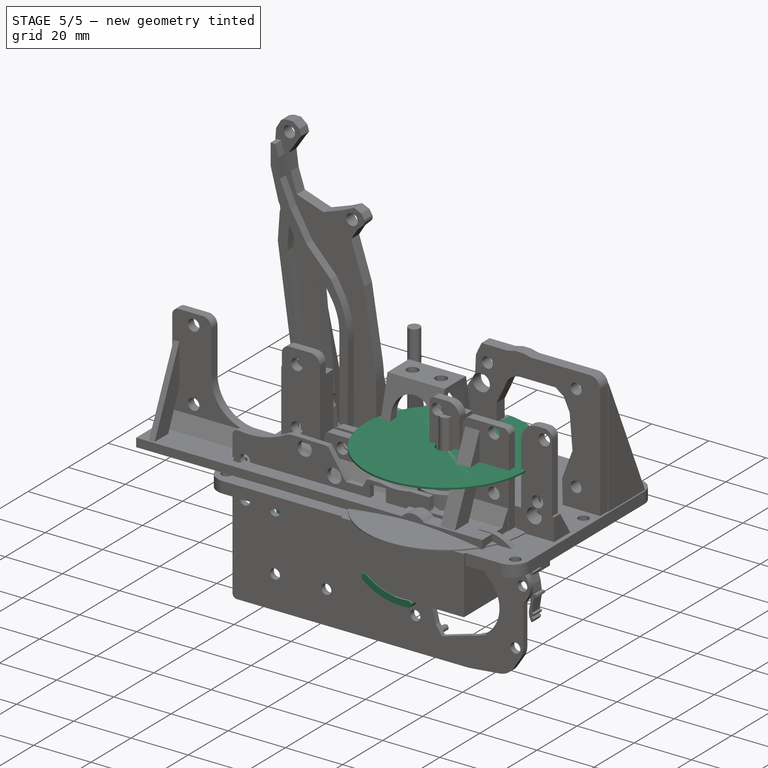
[diagram: stage 5 of 5 — iso view after this stage's code; geometry added in this stage tinted green]
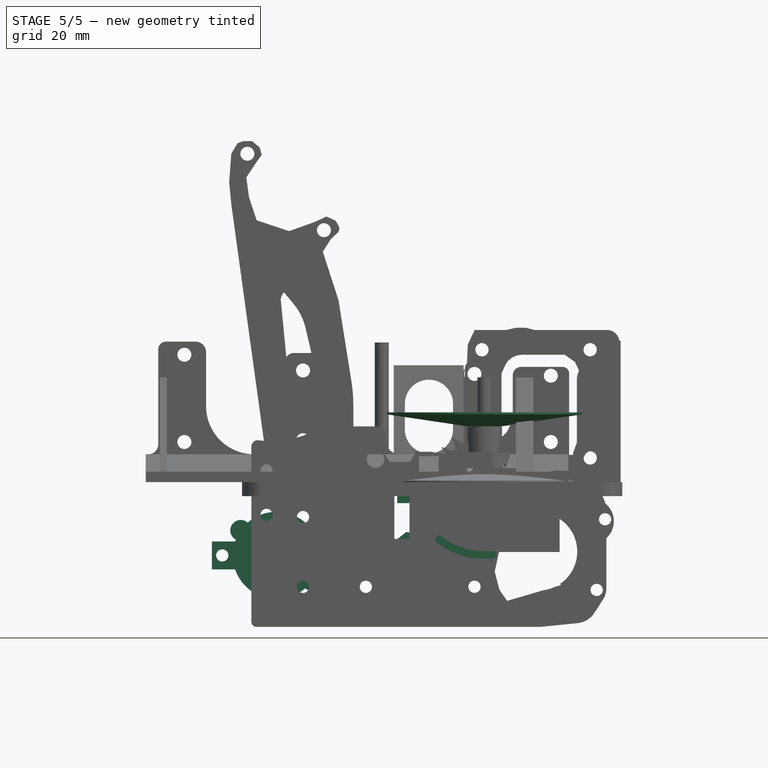
[diagram: stage 5 of 5 — front view after this stage's code; geometry added in this stage tinted green]
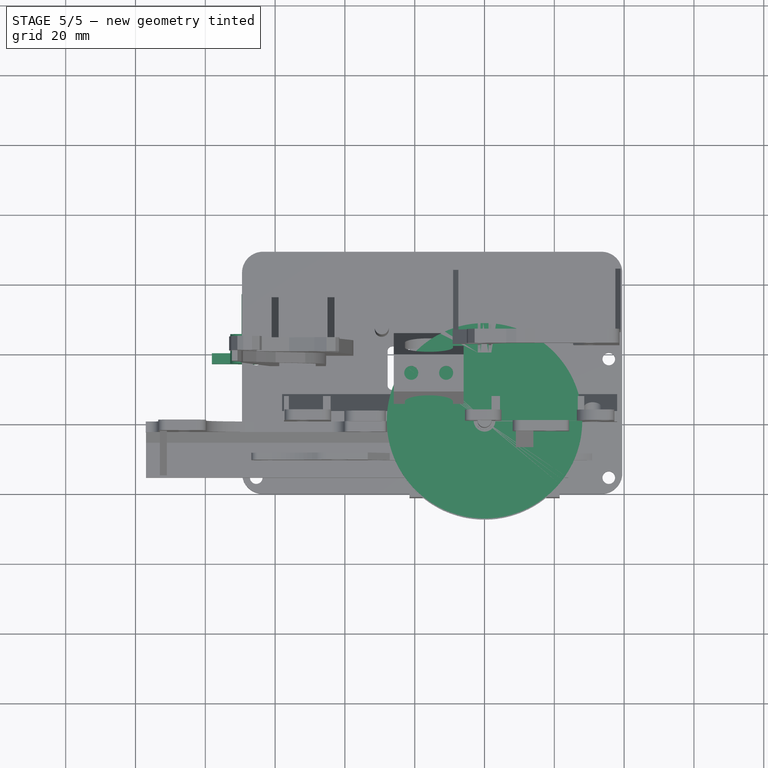
[diagram: stage 5 of 5 — top view after this stage's code; geometry added in this stage tinted green]
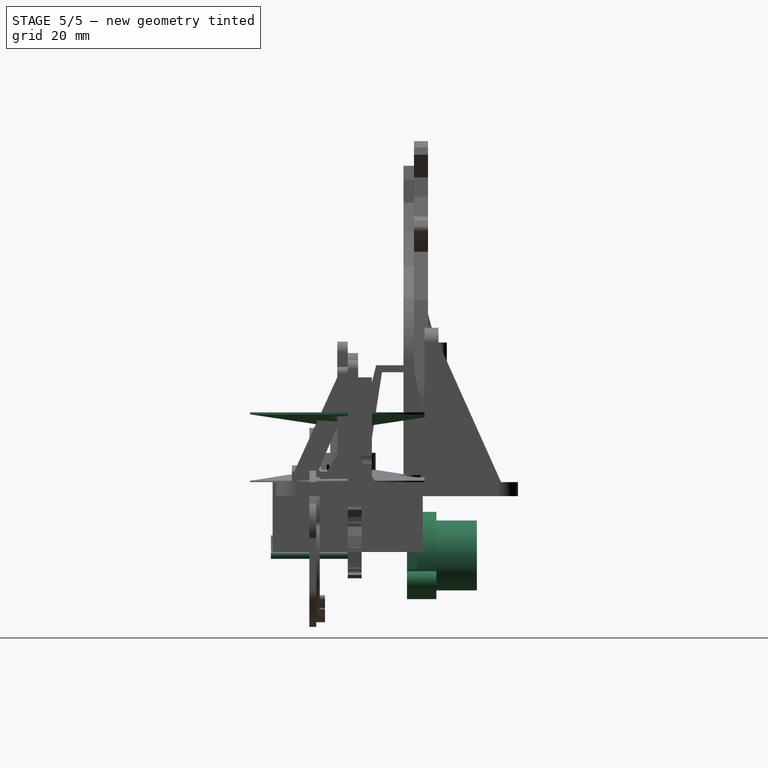
[diagram: stage 5 of 5 — right view after this stage's code; geometry added in this stage tinted green]
FEATURE [Sketcher::SketchObject] Sketch002
  MapMode = 5
  Placement = pos=(0,0,0) rot=(1,0,0;1.5708rad)
  Support = -> [XZ_Plane]
  sketch-geometry (34):
    g0: Circle CenterX=-6.3 CenterY=17 CenterZ=0 NormalX=0 NormalY=0 NormalZ=1 AngleXU=0 Radius=1.75
    g1: LineSegment StartX=-18.7647 StartY=7.45192 StartZ=0 EndX=-13.142 EndY=7.45192 EndZ=0
    g2: LineSegment StartX=-13.142 StartY=7.45192 StartZ=0 EndX=-13.142 EndY=1.00438 EndZ=0
    g3: LineSegment StartX=-18.7647 StartY=1.00438 StartZ=0 EndX=-18.7647 EndY=7.45192 EndZ=0
    g4: LineSegment StartX=-13.142 StartY=-1.00438 StartZ=0 EndX=-13.142 EndY=-1.85797 EndZ=0
    g5: LineSegment StartX=-18.7647 StartY=-1.85797 StartZ=0 EndX=-18.7647 EndY=-1.00438 EndZ=0
    g6: LineSegment StartX=-18.7647 StartY=1.00438 StartZ=0 EndX=-13.142 EndY=1.00438 EndZ=0
    g7: LineSegment StartX=-13.142 StartY=-1.00438 StartZ=0 EndX=-18.7647 EndY=-1.00438 EndZ=0
    g8: LineSegment StartX=-25.8245 StartY=-1.85797 StartZ=0 EndX=-18.7647 EndY=-1.85797 EndZ=0
    g9: LineSegment StartX=-5.7008 StartY=-1.85797 StartZ=0 EndX=-5.7008 EndY=-16.2706 EndZ=0
    g10: LineSegment StartX=-25.8245 StartY=-16.2706 StartZ=0 EndX=-25.8245 EndY=-1.85797 EndZ=0
    g11: LineSegment StartX=-13.142 StartY=-1.85797 StartZ=0 EndX=-5.7008 EndY=-1.85797 EndZ=0
    g12: ArcOfCircle CenterX=-10 CenterY=31 CenterZ=0 NormalX=0 NormalY=0 NormalZ=1 AngleXU=0 Radius=19 StartAngle=4.04154 EndAngle=5.15312
    g13: ArcOfCircle CenterX=-10 CenterY=31 CenterZ=0 NormalX=0 NormalY=0 NormalZ=1 AngleXU=0 Radius=22.9 StartAngle=4.04154 EndAngle=5.15312
    g14: ArcOfCircle CenterX=-1.06264 CenterY=12.052 CenterZ=0 NormalX=0 NormalY=0 NormalZ=1 AngleXU=0 Radius=1.95 StartAngle=5.15312 EndAngle=8.29472
    g15: ArcOfCircle CenterX=-23.0237 CenterY=14.59 CenterZ=0 NormalX=0 NormalY=0 NormalZ=1 AngleXU=0 Radius=1.95 StartAngle=0.899944 EndAngle=4.04154
    g16: Circle CenterX=-34 CenterY=-30 CenterZ=0 NormalX=0 NormalY=0 NormalZ=1 AngleXU=0 Radius=1.75
    g17: Circle CenterX=-52 CenterY=-30 CenterZ=0 NormalX=0 NormalY=0 NormalZ=1 AngleXU=0 Radius=1.75
    g18: Circle CenterX=-52 CenterY=-10 CenterZ=0 NormalX=0 NormalY=0 NormalZ=1 AngleXU=0 Radius=1.75
    g19: LineSegment StartX=-25.8245 StartY=-16.2706 StartZ=0 EndX=-18.2168 EndY=-16.2706 EndZ=0
    g20: LineSegment StartX=-18.2168 StartY=-16.2706 StartZ=0 EndX=-5.70079 EndY=-16.2706 EndZ=0
    g21: Circle CenterX=-10 CenterY=31 CenterZ=0 NormalX=0 NormalY=0 NormalZ=1 AngleXU=0 Radius=1.8
    g22: Circle CenterX=-62.4593 CenterY=3.36018 CenterZ=0 NormalX=0 NormalY=0 NormalZ=1 AngleXU=0 Radius=1.75
    g23: Circle CenterX=-62.4593 CenterY=-9.38872 CenterZ=0 NormalX=0 NormalY=0 NormalZ=1 AngleXU=0 Radius=1.75
    g24: Circle CenterX=-2.87486 CenterY=-29.972 CenterZ=0 NormalX=0 NormalY=0 NormalZ=1 AngleXU=0 Radius=1.75
    g25: Circle CenterX=-81.5408 CenterY=8.39638 CenterZ=0 NormalX=0 NormalY=0 NormalZ=1 AngleXU=0 Radius=1.75
    g26: LineSegment [constr] StartX=-24.2359 StartY=13.0626 StartZ=0 EndX=-21.8114 EndY=16.1175 EndZ=0
    g27: Circle CenterX=-1.80442 CenterY=23.3739 CenterZ=0 NormalX=0 NormalY=0 NormalZ=1 AngleXU=0 Radius=1.8
    g28: Circle CenterX=-41.5849 CenterY=12.4077 CenterZ=0 NormalX=0 NormalY=0 NormalZ=1 AngleXU=0 Radius=2.5
    g29: Circle CenterX=-31.232 CenterY=6.60883 CenterZ=0 NormalX=0 NormalY=0 NormalZ=1 AngleXU=0 Radius=2.5
    g30: Circle CenterX=15.372 CenterY=-19.8827 CenterZ=0 NormalX=0 NormalY=0 NormalZ=1 AngleXU=0 Radius=11.1898
    g31: Circle CenterX=-2.86042 CenterY=-10.965 CenterZ=0 NormalX=0 NormalY=0 NormalZ=1 AngleXU=0 Radius=1.75
    g32: Circle CenterX=32.1244 CenterY=-30.8718 CenterZ=0 NormalX=0 NormalY=0 NormalZ=1 AngleXU=0 Radius=1.75
    g33: Circle CenterX=34.5427 CenterY=-10.6454 CenterZ=0 NormalX=0 NormalY=0 NormalZ=1 AngleXU=0 Radius=1.75
  constraints (65):
    c: Diameter(g0) = 3.5
    c: DistanceX(g0,g-1) = 6.3
    c: DistanceY(g-1,g0) = 17
    c: Coincident(g1,g2)
    c: Coincident(g3,g1)
    c: Horizontal(g1)
    c: Vertical(g2)
    c: Vertical(g3)
    c: Vertical(g4)
    c: Vertical(g5)
    c: Symmetric(g3,g5,g-1)
    c: Symmetric(g2,g4,g-1)
    c: Coincident(g3,g6)
    c: Horizontal(g6)
    c: Coincident(g7,g5)
    c: Coincident(g6,g2)
    c: Coincident(g4,g7)
    c: Coincident(g11,g9)
    c: Coincident(g10,g8)
    c: Horizontal(g8)
    c: Vertical(g9)
    c: Vertical(g10)
    c: Coincident(g8,g5)
    c: Coincident(g11,g4)
    c: Tangent(g8,g11)
    c: Coincident(g13,g12)
    c: DistanceX(g12,g-1) = 10
    c: DistanceY(g-1,g12) = 31
    c: Coincident(g14,g12)
    c: Coincident(g14,g13)
    c: Coincident(g15,g12)
    c: Coincident(g15,g13)
    c: Tangent(g14,g12)
    c: Tangent(g14,g13)
    c: Tangent(g15,g13)
    c: Equal(g16,g17)
    c: Equal(g17,g18)
    c: DistanceY(g16,g-1) = 30
    c: DistanceY(g17,g-1) = 30
    c: DistanceX(g16,g-1) = 34
    c: DistanceX(g17,g-1) = 52
    c: DistanceX(g18,g17) = 0
    c: DistanceY(g17,g18) = 20
    c: Coincident(g10,g19)
    c: Horizontal(g19)
    c: Horizontal(g20)
    c: Coincident(g9,g20)
    c: Coincident(g21,g12)
    c: Diameter(g21) = 3.6
    c: Equal(g18,g22)
    c: Equal(g22,g23)
    c: Equal(g23,g25)
    c: Equal(g24,g0)
    c: Coincident(g26,g13)
    c: Coincident(g26,g12)
    c: Distance(g26) = 3.9
    c: Tangent(g12,g15)
    c: Radius(g12) = 19
    c: Equal(g21,g27)
    c: Radius(g28) = 2.5
    c: Diameter(g29) = 5
    c: Equal(g31,g24)
    c: Equal(g31,g32)
    c: Equal(g33,g32)
    c: Coincident(g19,g20)
FEATURE [Sketcher::SketchObject] Sketch010
  MapMode = 5
  Placement = pos=(0,0,0) rot=(1,0,0;1.5708rad)
  Support = -> [XZ_Plane002]
  sketch-geometry (4):
    g0: LineSegment StartX=1.95 StartY=4.25 StartZ=0 EndX=3.2 EndY=4.25 EndZ=0
    g1: LineSegment StartX=3.2 StartY=4.25 StartZ=0 EndX=3.2 EndY=-4.25 EndZ=0
    g2: LineSegment StartX=3.2 StartY=-4.25 StartZ=0 EndX=1.95 EndY=-4.25 EndZ=0
    g3: LineSegment StartX=1.95 StartY=-4.25 StartZ=0 EndX=1.95 EndY=4.25 EndZ=0
  constraints (11):
    c: Coincident(g0,g1)
    c: Coincident(g1,g2)
    c: Coincident(g2,g3)
    c: Coincident(g3,g0)
    c: Horizontal(g0)
    c: Horizontal(g2)
    c: Vertical(g1)
    c: DistanceY(g1,g1) = 8.5
    c: DistanceX(g-1,g0) = 1.95
    c: DistanceX(g-1,g0) = 3.2
    c: Symmetric(g0,g2,g-1)
FEATURE [PartDesign::Revolution] Revolution
  Angle = 360
  Axis = (0,-2e-16,1)
  Base = (0,0,0)
  Placement = pos=(0,0,0) rot=(1,0,0;1.5708rad)
  Profile = -> Sketch010
  ReferenceAxis = -> Sketch010 [V_Axis]
  Reversed = true
FEATURE [PartDesign::Body] Body002  label="Spacer"
  Group = -> [Sketch010,Revolution]
  Origin = -> Origin002
  Placement = pos=(0,-33,0) rot=(0,0,1;0rad)
  Tip = -> Revolution
FEATURE [Sketcher::SketchObject] Sketch011
  MapMode = 5
  Placement = pos=(0,0,0) rot=(1,0,0;1.5708rad)
  Support = -> [XZ_Plane003]
  sketch-geometry (8):
    g0: LineSegment StartX=-6 StartY=2.5 StartZ=0 EndX=-1.5 EndY=2.5 EndZ=0
    g1: LineSegment StartX=-1.5 StartY=2.5 StartZ=0 EndX=-1.5 EndY=-5 EndZ=0
    g2: LineSegment StartX=-1.5 StartY=-5 StartZ=0 EndX=1.5 EndY=-5 EndZ=0
    g3: LineSegment StartX=1.5 StartY=-5 StartZ=0 EndX=1.5 EndY=2.5 EndZ=0
    g4: LineSegment StartX=1.5 StartY=2.5 StartZ=0 EndX=6 EndY=2.5 EndZ=0
    g5: LineSegment StartX=6 StartY=2.5 StartZ=0 EndX=6 EndY=-7.5 EndZ=0
    g6: LineSegment StartX=6 StartY=-7.5 StartZ=0 EndX=-6 EndY=-7.5 EndZ=0
    g7: LineSegment StartX=-6 StartY=-7.5 StartZ=0 EndX=-6 EndY=2.5 EndZ=0
  constraints (21):
    c: Horizontal(g0)
    c: Coincident(g0,g1)
    c: Coincident(g1,g2)
    c: Coincident(g2,g3)
    c: Vertical(g3)
    c: Coincident(g3,g4)
    c: Coincident(g4,g5)
    c: Vertical(g5)
    c: Coincident(g5,g6)
    c: Horizontal(g6)
    c: Coincident(g6,g7)
    c: Coincident(g7,g0)
    c: Vertical(g7)
    c: Symmetric(g0,g3,g-2)
    c: Symmetric(g1,g2,g-2)
    c: Symmetric(g0,g4,g-2)
    c: DistanceX(g0,g4) = 12
    c: DistanceX(g0,g3) = 3
    c: DistanceY(g6,g0) = 10
    c: DistanceY(g6,g1) = 2.5
    c: DistanceY(g-1,g4) = 2.5
FEATURE [PartDesign::Pad] Pad007
  Length = 5
  Length2 = 100
  Midplane = true
  Placement = pos=(0,0,0) rot=(1,0,0;1.5708rad)
  Profile = -> Sketch011
  Type = 0
FEATURE [Sketcher::SketchObject] Sketch012
  AttachmentOffset = pos=(0,0,-6) rot=(0,0,1;0rad)
  MapMode = 5
  Placement = pos=(-6,1.3e-15,-1.3e-15) rot=(0.57735,0.57735,0.57735;2.0944rad)
  Support = -> [YZ_Plane003]
  sketch-geometry (12):
    g0: LineSegment StartX=-9 StartY=-1.5 StartZ=0 EndX=9 EndY=-1.5 EndZ=0
    g1: LineSegment StartX=9 StartY=-1.5 StartZ=0 EndX=9 EndY=-7.5 EndZ=0
    g2: LineSegment StartX=9 StartY=-7.5 StartZ=0 EndX=-9 EndY=-7.5 EndZ=0
    g3: LineSegment StartX=-9 StartY=-7.5 StartZ=0 EndX=-9 EndY=-1.5 EndZ=0
    g4: Circle CenterX=-6 CenterY=-4.5 CenterZ=0 NormalX=0 NormalY=0 NormalZ=1 AngleXU=0 Radius=1.5
    g5: ArcOfCircle CenterX=5.75 CenterY=-4.5 CenterZ=0 NormalX=0 NormalY=0 NormalZ=1 AngleXU=0 Radius=1.5 StartAngle=1.5708 EndAngle=4.71239
    g6: ArcOfCircle CenterX=6.25 CenterY=-4.5 CenterZ=0 NormalX=0 NormalY=0 NormalZ=1 AngleXU=0 Radius=1.5 StartAngle=4.71239 EndAngle=7.85398
    g7: LineSegment StartX=5.75 StartY=-6 StartZ=0 EndX=6.25 EndY=-6 EndZ=0
    g8: LineSegment StartX=5.75 StartY=-3 StartZ=0 EndX=6.25 EndY=-3 EndZ=0
    g9: LineSegment [constr] StartX=-6 StartY=3.29122 StartZ=0 EndX=-6 EndY=-9.99367 EndZ=0
    g10: LineSegment [constr] StartX=6 StartY=3.29122 StartZ=0 EndX=6 EndY=-10.1093 EndZ=0
    g11: LineSegment [constr] StartX=-11.6456 StartY=-4.5 StartZ=0 EndX=11.4613 EndY=-4.5 EndZ=0
  constraints (27):
    c: Coincident(g0,g1)
    c: Coincident(g1,g2)
    c: Coincident(g2,g3)
    c: Coincident(g3,g0)
    c: Horizontal(g2)
    c: Vertical(g1)
    c: Vertical(g3)
    c: DistanceY(g2,g-1) = 7.5
    c: DistanceY(g1,g1) = 6
    c: DistanceX(g0,g0) = 18
    c: Symmetric(g0,g0,g-2)
    c: Tangent(g5,g8) = 1.5708
    c: Tangent(g5,g7) = -1.5708
    c: Tangent(g7,g6) = -1.5708
    c: Tangent(g8,g6) = 1.5708
    c: Horizontal(g7)
    c: DistanceY(g6,g6) = 3
    c: DistanceX(g7,g7) = 0.5
    c: Vertical(g9)
    c: Symmetric(g5,g6,g10)
    c: DistanceX(g9,g10) = 12
    c: PointOnObject(g4,g9)
    c: Diameter(g4) = 3
    c: Symmetric(g6,g6,g11)
    c: PointOnObject(g4,g11)
    c: Symmetric(g0,g2,g11)
    c: Symmetric(g9,g10,g-2)
FEATURE [PartDesign::Pad] Pad008
  BaseFeature = -> Pad007
  Length = 2
  Length2 = 100
  Placement = pos=(0,0,0) rot=(1,0,0;1.5708rad)
  Profile = -> Sketch012
  Type = 0
FEATURE [Sketcher::SketchObject] Sketch023
  MapMode = 5
  Placement = pos=(0,0,0) rot=(1,0,0;1.5708rad)
  Support = -> [XZ_Plane001]
  sketch-geometry (11):
    g0: LineSegment StartX=5 StartY=16 StartZ=0 EndX=28 EndY=19.4281 EndZ=0
    g1: LineSegment StartX=28 StartY=19.4281 StartZ=0 EndX=28 EndY=20 EndZ=0
    g2: LineSegment StartX=28 StartY=20 StartZ=0 EndX=3.1 EndY=20 EndZ=0
    g3: LineSegment StartX=3.1 StartY=20 StartZ=0 EndX=3.1 EndY=17 EndZ=0
    g4: LineSegment StartX=1.6 StartY=20 StartZ=0 EndX=1.6 EndY=14.1444 EndZ=0
    g5: LineSegment StartX=1.6 StartY=14.1444 StartZ=0 EndX=3.79291 EndY=14.1444 EndZ=0
    g6: LineSegment StartX=3.79291 StartY=14.1444 StartZ=0 EndX=3.79291 EndY=16 EndZ=0
    g7: LineSegment StartX=3.79291 StartY=16 StartZ=0 EndX=5 EndY=16 EndZ=0
    g8: LineSegment StartX=1.6 StartY=20 StartZ=0 EndX=2 EndY=20 EndZ=0
    g9: LineSegment StartX=2 StartY=20 StartZ=0 EndX=2 EndY=17 EndZ=0
    g10: LineSegment StartX=2 StartY=17 StartZ=0 EndX=3.1 EndY=17 EndZ=0
  constraints (30):
    c: Coincident(g0,g1)
    c: Coincident(g1,g2)
    c: Horizontal(g2)
    c: Coincident(g2,g3)
    c: Vertical(g3)
    c: DistanceY(g3,g3) = 3
    c: DistanceX(g-1,g2) = 3.1
    c: DistanceY(g-1,g1) = 20
    c: DistanceX(g-1,g0) = 5
    c: DistanceY(g-1,g0) = 16
    c: Vertical(g4)
    c: Coincident(g4,g5)
    c: Horizontal(g5)
    c: Coincident(g5,g6)
    c: Vertical(g6)
    c: Coincident(g6,g7)
    c: Horizontal(g7)
    c: Coincident(g7,g0)
    c: PointOnObject(g4,g2)
    c: Coincident(g4,g8)
    c: Horizontal(g8)
    c: Coincident(g8,g9)
    c: Vertical(g9)
    c: Coincident(g9,g10)
    c: Coincident(g10,g3)
    c: Horizontal(g10)
    c: DistanceX(g8,g8) = 0.4
    c: DistanceX(g-1,g1) = 28
    c: Vertical(g1)
    c: DistanceX(g-1,g4) = 1.6
FEATURE [PartDesign::Revolution] Revolution002
  Angle = 360
  Axis = (0,-2e-16,1)
  Base = (0,0,0)
  Placement = pos=(0,0,0) rot=(1,0,0;1.5708rad)
  Profile = -> Sketch023
  ReferenceAxis = -> Sketch023 [V_Axis]
  Reversed = true
FEATURE [Sketcher::SketchObject] Sketch003
  AttachmentOffset = pos=(0,0,20) rot=(0,0,1;0rad)
  MapMode = 5
  Placement = pos=(0,0,20) rot=(0,0,1;0rad)
  Support = -> [XY_Plane001]
  sketch-geometry (8):
    g0: LineSegment StartX=-1.94794 StartY=31.1633 StartZ=0 EndX=-1.14794 EndY=31.1633 EndZ=0
    g1: LineSegment StartX=-1.14794 StartY=31.1633 StartZ=0 EndX=-1.14794 EndY=19.5554 EndZ=0
    g2: LineSegment StartX=-1.14794 StartY=19.5554 StartZ=0 EndX=-1.94794 EndY=19.5554 EndZ=0
    g3: LineSegment StartX=-1.94794 StartY=19.5554 StartZ=0 EndX=-1.94794 EndY=31.1633 EndZ=0
    g4: LineSegment StartX=1.14794 StartY=31.1633 StartZ=0 EndX=1.94794 EndY=31.1633 EndZ=0
    g5: LineSegment StartX=1.94794 StartY=31.1633 StartZ=0 EndX=1.94794 EndY=19.5554 EndZ=0
    g6: LineSegment StartX=1.94794 StartY=19.5554 StartZ=0 EndX=1.14794 EndY=19.5554 EndZ=0
    g7: LineSegment StartX=1.14794 StartY=19.5554 StartZ=0 EndX=1.14794 EndY=31.1633 EndZ=0
  constraints (20):
    c: Coincident(g0,g1)
    c: Coincident(g1,g2)
    c: Coincident(g2,g3)
    c: Coincident(g3,g0)
    c: Horizontal(g0)
    c: Horizontal(g2)
    c: Vertical(g1)
    c: Vertical(g3)
    c: Coincident(g4,g5)
    c: Coincident(g5,g6)
    c: Coincident(g6,g7)
    c: Coincident(g7,g4)
    c: Horizontal(g4)
    c: Horizontal(g6)
    c: Vertical(g5)
    c: Vertical(g7)
    c: DistanceX(g0,g0) = 0.8
    c: DistanceX(g4,g4) = 0.8
    c: Symmetric(g0,g4,g-2)
    c: Equal(g1,g7)
FEATURE [PartDesign::Pocket] Pocket004
  BaseFeature = -> Revolution002
  Length = 5
  Length2 = 100
  Placement = pos=(0,0,0) rot=(1,0,0;1.5708rad)
  Profile = -> Sketch003
  Type = 0
FEATURE [PartDesign::Body] Body001
  Group = -> [Sketch023,Revolution002,Sketch003,Pocket004]
  Origin = -> Origin001
  Placement = pos=(-53,3,45) rot=(1,0,0;1.5708rad)
  Tip = -> Pocket004
FEATURE [Sketcher::SketchObject] Sketch024
  AttachmentOffset = pos=(0,0,-7) rot=(0,0,1;0rad)
  MapMode = 5
  Placement = pos=(0,7,1.6e-15) rot=(1,0,0;1.5708rad)
  Support = -> [XZ_Plane006]
  sketch-geometry (2):
    g0: Circle CenterX=0 CenterY=0 CenterZ=0 NormalX=0 NormalY=0 NormalZ=1 AngleXU=0 Radius=1.9
    g1: Circle CenterX=0 CenterY=0 CenterZ=0 NormalX=0 NormalY=0 NormalZ=1 AngleXU=0 Radius=3.5
  constraints (4):
    c: Coincident(g0,g-1)
    c: Coincident(g1,g0)
    c: Diameter(g0) = 3.8
    c: Diameter(g1) = 7
FEATURE [PartDesign::Pad] Pad012
  Length = 12
  Length2 = 100
  Placement = pos=(0,0,0) rot=(1,0,0;1.5708rad)
  Profile = -> Sketch024
  Type = 0
FEATURE [Sketcher::SketchObject] Sketch025
  AttachmentOffset = pos=(0,0,-1) rot=(0,0,1;0rad)
  MapMode = 5
  Placement = pos=(0,1,2e-16) rot=(1,0,0;1.5708rad)
  Support = -> [XZ_Plane006]
  sketch-geometry (17):
    g0: LineSegment StartX=3.5912 StartY=0.770117 StartZ=0 EndX=3.5912 EndY=-0.770117 EndZ=0
    g1: ArcOfCircle CenterX=1.36131 CenterY=0.770117 CenterZ=0 NormalX=0 NormalY=0 NormalZ=1 AngleXU=0 Radius=2.22988 StartAngle=0 EndAngle=1.5708
    g2: LineSegment StartX=-4.42391 StartY=3 StartZ=0 EndX=1.36131 EndY=3 EndZ=0
    g3: Circle CenterX=0 CenterY=0 CenterZ=0 NormalX=0 NormalY=0 NormalZ=1 AngleXU=0 Radius=2
    g4: LineSegment StartX=-14.3974 StartY=1.68547 StartZ=0 EndX=-19.8217 EndY=-3.71312 EndZ=0
    g5: LineSegment StartX=-19.995 StartY=-7.46224 StartZ=0 EndX=-11.0271 EndY=-18.2094 EndZ=0
    g6: LineSegment StartX=-12.4519 StartY=-3 StartZ=0 EndX=1.36131 EndY=-3 EndZ=0
    g7: ArcOfCircle CenterX=1.36131 CenterY=-0.770117 CenterZ=0 NormalX=0 NormalY=0 NormalZ=1 AngleXU=0 Radius=2.22988 StartAngle=4.71239 EndAngle=6.28319
    g8: LineSegment StartX=-11.2131 StartY=3 StartZ=0 EndX=-4.42391 EndY=3 EndZ=0
    g9: LineSegment StartX=-14.4059 StartY=-3.85573 StartZ=0 EndX=-15.6257 EndY=-5.17763 EndZ=0
    g10: LineSegment StartX=-4.80765 StartY=-19.5011 StartZ=0 EndX=-11.0271 EndY=-18.2094 EndZ=0
    g11: ArcOfCircle CenterX=-11.2131 CenterY=-1.51397 CenterZ=0 NormalX=0 NormalY=0 NormalZ=1 AngleXU=0 Radius=4.51397 StartAngle=1.5708 EndAngle=2.35382
    g12: Circle CenterX=-18.8065 CenterY=-5.44588 CenterZ=0 NormalX=0 NormalY=0 NormalZ=1 AngleXU=0 Radius=0.972006
    g13: ArcOfCircle CenterX=-17.8619 CenterY=-5.68228 CenterZ=0 NormalX=0 NormalY=0 NormalZ=1 AngleXU=0 Radius=2.77821 StartAngle=2.35382 EndAngle=3.83698
    g14: LineSegment StartX=-15.6586 StartY=-6.49646 StartZ=0 EndX=-4.80765 EndY=-19.5011 EndZ=0
    g15: ArcOfCircle CenterX=-14.8908 CenterY=-5.85579 CenterZ=0 NormalX=0 NormalY=0 NormalZ=1 AngleXU=0 Radius=1 StartAngle=2.39634 EndAngle=3.83696
    g16: ArcOfCircle CenterX=-12.4519 CenterY=-5.65886 CenterZ=0 NormalX=0 NormalY=0 NormalZ=1 AngleXU=0 Radius=2.65886 StartAngle=1.5708 EndAngle=2.39634
  constraints (25):
    c: Tangent(g0,g1) = 1.5708
    c: Coincident(g2,g1)
    c: Horizontal(g2)
    c: Coincident(g3,g-1)
    c: Diameter(g3) = 4
    c: Horizontal(g6)
    c: Tangent(g6,g7) = -1.5708
    c: Tangent(g0,g7) = 1.5708
    c: Vertical(g0)
    c: Coincident(g8,g2)
    c: Horizontal(g8)
    c: Coincident(g10,g5)
    c: Tangent(g4,g11) = -1.5708
    c: Tangent(g8,g11) = 1.5708
    c: Tangent(g4,g13) = -1.5708
    c: Tangent(g5,g13) = -1.5708
    c: Coincident(g14,g10)
    c: Tangent(g9,g15) = -1.5708
    c: Tangent(g14,g15) = -1.5708
    c: Radius(g15) = 1
    c: Equal(g7,g1)
    c: Symmetric(g1,g6,g-1)
    c: DistanceY(g6,g1) = 6
    c: Tangent(g9,g16) = -1.5708
    c: Tangent(g6,g16) = 1.5708
FEATURE [PartDesign::Pad] Pad013
  BaseFeature = -> Pad012
  Length = 3
  Length2 = 100
  Placement = pos=(0,0,0) rot=(1,0,0;1.5708rad)
  Profile = -> Sketch025
  Type = 0
FEATURE [Sketcher::SketchObject] Sketch026
  MapMode = 5
  Placement = pos=(0,0,0) rot=(1,0,0;1.5708rad)
  Support = -> [XZ_Plane006]
  sketch-geometry (4):
    g0: ArcOfCircle CenterX=0 CenterY=0 CenterZ=0 NormalX=0 NormalY=0 NormalZ=1 AngleXU=0 Radius=19.8 StartAngle=4.0412 EndAngle=4.82292
    g1: ArcOfCircle CenterX=0 CenterY=0 CenterZ=0 NormalX=0 NormalY=0 NormalZ=1 AngleXU=0 Radius=22 StartAngle=4.0412 EndAngle=4.82292
    g2: ArcOfCircle CenterX=-12.998 CenterY=-16.3665 CenterZ=0 NormalX=0 NormalY=0 NormalZ=1 AngleXU=0 Radius=1.1 StartAngle=0.899611 EndAngle=4.0412
    g3: ArcOfCircle CenterX=2.30537 CenterY=-20.7725 CenterZ=0 NormalX=0 NormalY=0 NormalZ=1 AngleXU=0 Radius=1.1 StartAngle=4.82292 EndAngle=7.96451
  constraints (12):
    c: Coincident(g0,g-1)
    c: Coincident(g1,g0)
    c: Coincident(g2,g0)
    c: Coincident(g2,g1)
    c: Coincident(g3,g0)
    c: Coincident(g3,g1)
    c: Tangent(g1,g2)
    c: Tangent(g2,g0)
    c: Tangent(g0,g3)
    c: Tangent(g3,g1)
    c: Radius(g0) = 19.8
    c: Radius(g1) = 22
FEATURE [PartDesign::Pad] Pad014
  BaseFeature = -> Pad013
  Length = 22
  Length2 = 100
  Placement = pos=(0,0,0) rot=(1,0,0;1.5708rad)
  Profile = -> Sketch026
  Type = 0
FEATURE [PartDesign::FeatureBase] Clone
  BaseFeature = -> Body003
  Placement = pos=(-16,-1,-1e-14) rot=(0.57735,-0.57735,0.57735;2.0944rad)
FEATURE [PartDesign::Body] Body007  label="CNZ2013-2"
  BaseFeature = -> Body003
  Group = -> [Clone]
  Origin = -> Origin007
  Placement = pos=(-20.9019,8,4.43782) rot=(-0.935113,0.250563,0.250563;1.63783rad)
  Tip = -> Clone
FEATURE [Sketcher::SketchObject] Sketch027
  AttachmentOffset = pos=(0,0,2) rot=(0,0,1;0rad)
  MapMode = 5
  Placement = pos=(0,-2,-4e-16) rot=(1,0,0;1.5708rad)
  Support = -> [XZ_Plane006]
  sketch-geometry (6):
    g0: LineSegment StartX=-28.808 StartY=-19.352 StartZ=0 EndX=-23.1822 EndY=-21.1807 EndZ=0
    g1: LineSegment StartX=-23.1822 StartY=-21.1807 StartZ=0 EndX=-12.4687 EndY=-18.6063 EndZ=0
    g2: LineSegment StartX=-12.4687 StartY=-18.6063 StartZ=0 EndX=-11.4564 EndY=-18.1591 EndZ=0
    g3: LineSegment StartX=-11.4564 StartY=-18.1591 StartZ=0 EndX=-11.4564 EndY=-15.5688 EndZ=0
    g4: LineSegment StartX=-11.4564 StartY=-15.5688 StartZ=0 EndX=-22.4491 EndY=-14.3053 EndZ=0
    g5: LineSegment StartX=-22.4491 StartY=-14.3053 StartZ=0 EndX=-28.808 EndY=-19.352 EndZ=0
  constraints (7):
    c: Coincident(g0,g1)
    c: Coincident(g1,g2)
    c: Coincident(g2,g3)
    c: Vertical(g3)
    c: Coincident(g3,g4)
    c: Coincident(g4,g5)
    c: Coincident(g5,g0)
FEATURE [PartDesign::Pad] Pad015
  BaseFeature = -> Pad014
  Length = 1
  Length2 = 100
  Midplane = true
  Placement = pos=(0,0,0) rot=(1,0,0;1.5708rad)
  Profile = -> Sketch027
  Type = 0
FEATURE [PartDesign::Pad] Pad017
  BaseFeature = -> Pad016
  Length = 8.4
  Length2 = 100
  Profile = -> Sketch029
  Reversed = true
  Type = 0
FEATURE [Sketcher::SketchObject] Sketch030
  MapMode = 5
  Support = -> [XY_Plane008]
  sketch-geometry (1):
    g0: Circle CenterX=0 CenterY=0 CenterZ=0 NormalX=0 NormalY=0 NormalZ=1 AngleXU=0 Radius=10
  constraints (2):
    c: Coincident(g0,g-1)
    c: Diameter(g0) = 20
FEATURE [PartDesign::Pad] Pad018
  BaseFeature = -> Pad017
  Length = 20
  Length2 = 100
  Profile = -> Sketch030
  Reversed = true
  Type = 0
FEATURE [Sketcher::SketchObject] Sketch031
  MapMode = 5
  Support = -> [XY_Plane008]
  sketch-geometry (1):
    g0: Circle CenterX=0 CenterY=6 CenterZ=0 NormalX=0 NormalY=0 NormalZ=1 AngleXU=0 Radius=1.92056
  constraints (2):
    c: PointOnObject(g0,g-2)
    c: DistanceY(g-1,g0) = 6
FEATURE [PartDesign::Pad] Pad019
  BaseFeature = -> Pad018
  Length = 2
  Length2 = 100
  Profile = -> Sketch031
  Type = 0
FEATURE [Sketcher::SketchObject] Sketch032
  MapMode = 5
  Support = -> [XY_Plane008]
  sketch-geometry (1):
    g0: Circle CenterX=0 CenterY=6.01563 CenterZ=0 NormalX=0 NormalY=0 NormalZ=1 AngleXU=0 Radius=1.5
  constraints (2):
    c: PointOnObject(g0,g-2)
    c: Diameter(g0) = 3
FEATURE [PartDesign::Pad] Pad020
  BaseFeature = -> Pad019
  Length = 10
  Length2 = 100
  Profile = -> Sketch032
  Type = 0
FEATURE [PartDesign::Body] Body008  label="SPG20-1023"
  Group = -> [Sketch028,Sketch029,Pad016,Pad017,Sketch030,Pad018,Sketch031,Pad019,Sketch032,Pad020]
  Origin = -> Origin008
  Placement = pos=(-56.5981,17,-9.80052) rot=(-0.186157,0.694747,-0.694747;3.50969rad)
  Tip = -> Pad020
FEATURE [PartDesign::FeatureBase] Clone001
  BaseFeature = -> Body008
  Placement = pos=(-59.6,17,-21) rot=(1,0,0;1.5708rad)
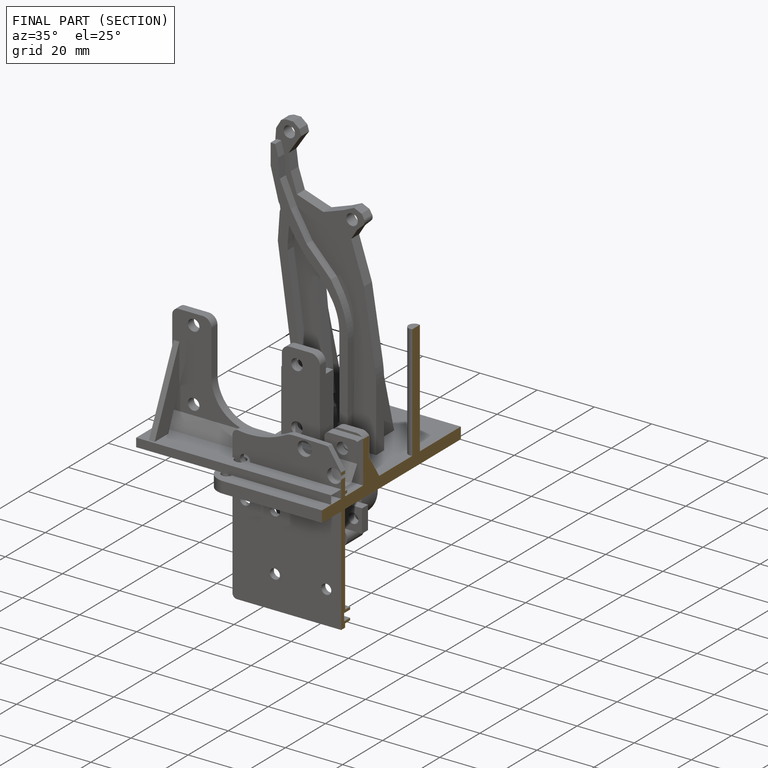
[diagram: finished part — half-section view (interior)]
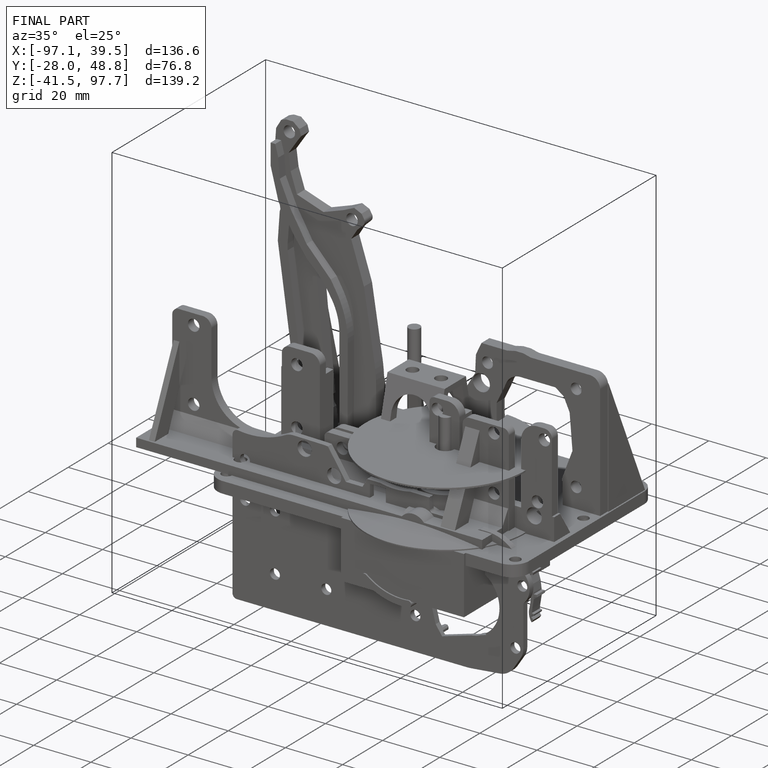
[diagram: finished part — iso view with bounding-box wireframe]
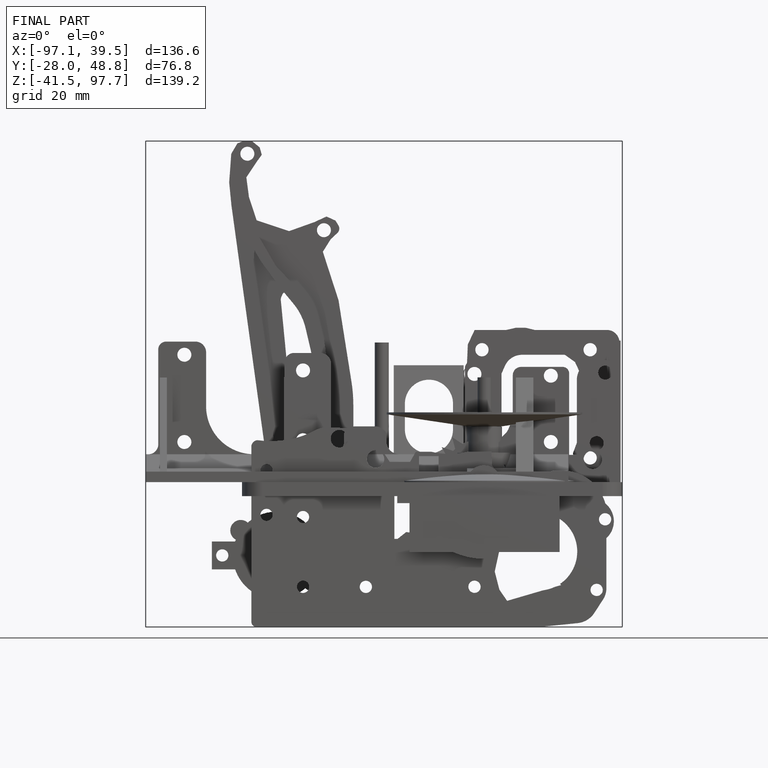
[diagram: finished part — front view with bounding-box wireframe]
